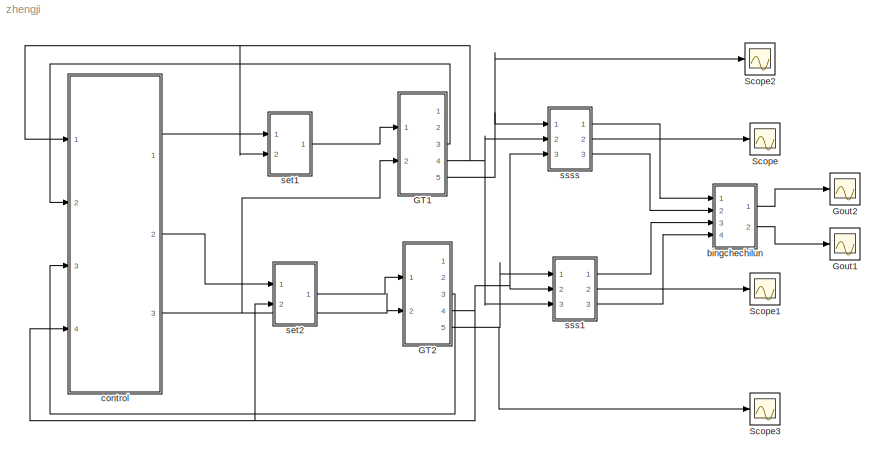
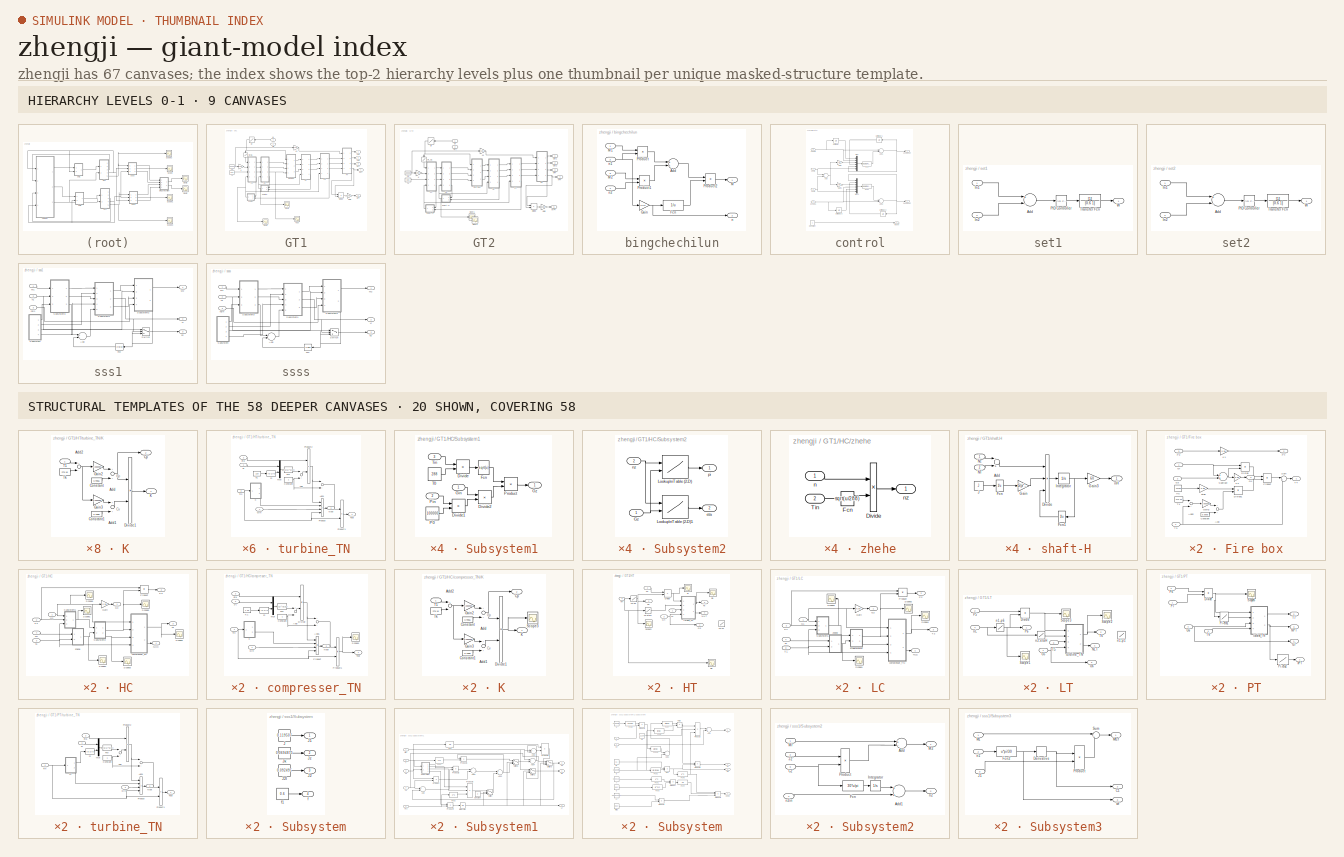
[diagram: thumbnail index - top-2 hierarchy levels (9 canvases) + 20 structural-template representatives of the remaining 58 canvases]
MODEL zhengji
KIND model
BLOCK [SubSystem] GT1
  Ports = [2, 5]
  RequestExecContextInheritance = off
  SID = 1
BLOCK [Product] GT1/Divide
  InputSameDT = off
  Inputs = */
  OutDataTypeStr = Inherit: Inherit via internal rule
  Ports = [2, 1]
  RndMeth = Floor
  SID = 4
  SaturateOnIntegerOverflow = off
BLOCK [SubSystem] GT1/Fire box
  Ports = [4, 3]
  RequestExecContextInheritance = off
  SID = 5
BLOCK [Sum] GT1/Fire box/Add
  InputSameDT = off
  OutDataTypeStr = Inherit: Inherit via internal rule
  Ports = [2, 1]
  SID = 10
  SaturateOnIntegerOverflow = off
BLOCK [Sum] GT1/Fire box/Add2
  InputSameDT = off
  Inputs = -+
  OutDataTypeStr = Inherit: Inherit via internal rule
  Ports = [2, 1]
  SID = 11
  SaturateOnIntegerOverflow = off
BLOCK [Constant] GT1/Fire box/Constant
  SID = 12
  Value = 0.9956
BLOCK [Product] GT1/Fire box/Divide
  InputSameDT = off
  Inputs = */
  OutDataTypeStr = Inherit: Inherit via internal rule
  Ports = [2, 1]
  RndMeth = Floor
  SID = 13
  SaturateOnIntegerOverflow = off
BLOCK [Product] GT1/Fire box/Divide1
  InputSameDT = off
  Inputs = */
  OutDataTypeStr = Inherit: Inherit via internal rule
  Ports = [2, 1]
  RndMeth = Floor
  SID = 14
  SaturateOnIntegerOverflow = off
BLOCK [Inport] GT1/Fire box/G3
  IconDisplay = Port number
  Port = 2
  SID = 7
BLOCK [Outport] GT1/Fire box/G4
  IconDisplay = Port number
  Port = 3
  SID = 26
BLOCK [Gain] GT1/Fire box/Gain2
  Gain = 0.000093
  OutDataTypeStr = Inherit: Inherit via internal rule
  ParamDataTypeStr = Inherit: Inherit via internal rule
  SID = 15
  SaturateOnIntegerOverflow = off
BLOCK [Inport] GT1/Fire box/Gf
  IconDisplay = Port number
  SID = 6
BLOCK [Constant] GT1/Fire box/Hu
  SID = 16
  Value = 42700
BLOCK [Gain] GT1/Fire box/K1
  Gain = 0.98
  OutDataTypeStr = Inherit: Inherit via internal rule
  ParamDataTypeStr = Inherit: Inherit via internal rule
  SID = 17
  SaturateOnIntegerOverflow = off
BLOCK [Gain] GT1/Fire box/K2
  Gain = 0.99
  OutDataTypeStr = Inherit: Inherit via internal rule
  ParamDataTypeStr = Inherit: Inherit via internal rule
  SID = 18
  SaturateOnIntegerOverflow = off
BLOCK [Inport] GT1/Fire box/P3
  IconDisplay = Port number
  Port = 3
  SID = 8
BLOCK [Outport] GT1/Fire box/P4
  IconDisplay = Port number
  Port = 2
  SID = 25
BLOCK [Product] GT1/Fire box/Product
  InputSameDT = off
  OutDataTypeStr = Inherit: Inherit via internal rule
  Ports = [2, 1]
  SID = 19
  SaturateOnIntegerOverflow = off
BLOCK [Sum] GT1/Fire box/Subtract
  InputSameDT = off
  OutDataTypeStr = Inherit: Inherit via internal rule
  Ports = [2, 1]
  SID = 20
  SaturateOnIntegerOverflow = off
BLOCK [Sum] GT1/Fire box/Sum
  IconShape = round
  InputSameDT = off
  Inputs = |++
  OutDataTypeStr = Inherit: Inherit via internal rule
  Ports = [2, 1]
  SID = 21
  SaturateOnIntegerOverflow = off
BLOCK [Inport] GT1/Fire box/T3
  IconDisplay = Port number
  Port = 4
  SID = 9
BLOCK [Outport] GT1/Fire box/T4
  IconDisplay = Port number
  SID = 24
BLOCK [Constant] GT1/Fire box/Tk
  SID = 22
  Value = 273.15
BLOCK [Gain] GT1/Fire box/etab
  Gain = 0.98
  OutDataTypeStr = Inherit: Inherit via internal rule
  ParamDataTypeStr = Inherit: Inherit via internal rule
  SID = 23
  SaturateOnIntegerOverflow = off
BLOCK [Gain] GT1/Gain
  Gain = 1000/0.7355
  OutDataTypeStr = Inherit: Inherit via internal rule
  ParamDataTypeStr = Inherit: Inherit via internal rule
  SID = 27
  SaturateOnIntegerOverflow = off
BLOCK [Lookup] GT1/Gf
  InputValues = [0,0.03,0.07,0.09,0.11,0.13,0.17,0.2,0.23,0.26,0.28,0.3,0.32,0.34,0.35,0.38,0.4,0.42,0.44,0.47,0.49,0.5,0.52,0.54,0.55,0.59,0.61,0.64,0.66,0.68,0.7,0.72,0.74,0.77,0.81,0.83,0.85,0.88,0.93,0.95,0.97,1]
  SID = 28
  SaturateOnIntegerOverflow = off
  Table = [0.172,0.236,0.331,0.331,0.366,0.411,0.488,0.536,0.582,0.605,0.644,0.682,0.698,0.728,0.727,0.783,0.783,0.813,0.857,0.886,0.935,0.949,0.95,0.975,0.999,1.022,1.069,1.149,1.153,1.184,1.206,1.233,1.256,1.271,1.325,1.383,1.383,1.439,1.481,1.504,1.52,1.574]
BLOCK [Lookup] GT1/Gf_G1
  InputValues = [0.172,0.236,0.331,0.366,0.411,0.488,0.536,0.582,0.605,0.644,0.682,0.698,0.727,0.728,0.783,0.813,0.857,0.886,0.935,0.949,0.95,0.975,0.999,1.022,1.069,1.149,1.153,1.184,1.206,1.233,1.256,1.271,1.325,1.383,1.439,1.481,1.504,1.52,1.574]
  SID = 29
  SaturateOnIntegerOverflow = off
  Table = [20.01, 25.93, 38.77,  43.65, 45.94, 51.85, 54.70, 56.85, 59.03, 61.91, 60.44, 61.58, 62.93, 63.04, 65.71,   67.00, 69.52, 70.63, 73.19, 73.46, 73.44, 73.83, 75.62, 76.39, 78.27, 81.17, 81.50, 82.44, 83.44, 84.31, 85.30, 86.17, 87.93, 89.72, 91.51, 93.65, 94.63, 94.92, 97.64]
BLOCK [Scope] GT1/Gout1
  DataFormat = StructureWithTime
  Floating = off
  NumInputPorts = 1
  Ports = [1]
  SID = 30
  SampleTime = 0
  ShowLegends = off
  TimeRange = 10
  ZoomMode = yonly
BLOCK [Scope] GT1/Gout2
  DataFormat = StructureWithTime
  Floating = off
  NumInputPorts = 1
  Ports = [1]
  SID = 31
  SampleTime = 0
  SaveName = ScopeData3
  ShowLegends = off
  TimeRange = 10
  ZoomMode = yonly
BLOCK [SubSystem] GT1/HC
  Ports = [4, 4]
  RequestExecContextInheritance = off
  SID = 32
BLOCK [Inport] GT1/HC/G2
  IconDisplay = Port number
  SID = 33
BLOCK [Outport] GT1/HC/G3
  IconDisplay = Port number
  SID = 104
BLOCK [Gain] GT1/HC/Gain
  Gain = 0.99
  OutDataTypeStr = Inherit: Inherit via internal rule
  ParamDataTypeStr = Inherit: Inherit via internal rule
  SID = 37
  SaturateOnIntegerOverflow = off
BLOCK [Outport] GT1/HC/NHC
  IconDisplay = Port number
  Port = 4
  SID = 107
BLOCK [Inport] GT1/HC/P2
  IconDisplay = Port number
  Port = 2
  SID = 34
BLOCK [Outport] GT1/HC/P3
  IconDisplay = Port number
  Port = 2
  SID = 105
BLOCK [Product] GT1/HC/Product
  InputSameDT = off
  OutDataTypeStr = Inherit: Inherit via internal rule
  Ports = [2, 1]
  SID = 38
  SaturateOnIntegerOverflow = off
BLOCK [Scope] GT1/HC/Scope1
  DataFormat = StructureWithTime
  Floating = off
  NumInputPorts = 1
  Ports = [1]
  SID = 39
  SampleTime = 0
  SaveName = ScopeData16
  ShowLegends = off
  YMax = 3127.38
  YMin = 2829.54
BLOCK [Scope] GT1/HC/Scope2
  DataFormat = StructureWithTime
  Floating = off
  NumInputPorts = 1
  Ports = [1]
  SID = 40
  SampleTime = 0
  SaveName = ScopeData29
  ShowLegends = off
  YMax = 3127.38
  YMin = 2829.54
BLOCK [Scope] GT1/HC/Scope3
  DataFormat = StructureWithTime
  Floating = off
  NumInputPorts = 1
  Ports = [1]
  SID = 41
  SampleTime = 0
  SaveName = ScopeData24
  ShowLegends = off
  YMax = 3127.38
  YMin = 2829.54
BLOCK [Scope] GT1/HC/Scope4
  DataFormat = StructureWithTime
  Floating = off
  NumInputPorts = 1
  Ports = [1]
  SID = 42
  SampleTime = 0
  SaveName = ScopeData31
  ShowLegends = off
  YMax = 3127.38
  YMin = 2829.54
BLOCK [Scope] GT1/HC/Scope5
  DataFormat = StructureWithTime
  Floating = off
  NumInputPorts = 1
  Ports = [1]
  SID = 43
  SampleTime = 0
  SaveName = ScopeData10
  ShowLegends = off
  YMax = 3127.38
  YMin = 2829.54
BLOCK [Scope] GT1/HC/Scope6
  DataFormat = StructureWithTime
  Floating = off
  NumInputPorts = 1
  Ports = [1]
  SID = 44
  SampleTime = 0
  SaveName = ScopeData15
  ShowLegends = off
  YMax = 3127.38
  YMin = 2829.54
BLOCK [SubSystem] GT1/HC/Subsystem1
  Ports = [3, 1]
  RequestExecContextInheritance = off
  SID = 45
BLOCK [Product] GT1/HC/Subsystem1/Divide
  InputSameDT = off
  Inputs = */
  OutDataTypeStr = Inherit: Inherit via internal rule
  Ports = [2, 1]
  RndMeth = Floor
  SID = 49
  SaturateOnIntegerOverflow = off
BLOCK [Product] GT1/HC/Subsystem1/Divide1
  InputSameDT = off
  Inputs = */
  OutDataTypeStr = Inherit: Inherit via internal rule
  Ports = [2, 1]
  RndMeth = Floor
  SID = 50
  SaturateOnIntegerOverflow = off
BLOCK [Product] GT1/HC/Subsystem1/Divide2
  InputSameDT = off
  Inputs = */
  OutDataTypeStr = Inherit: Inherit via internal rule
  Ports = [2, 1]
  RndMeth = Floor
  SID = 51
  SaturateOnIntegerOverflow = off
BLOCK [Fcn] GT1/HC/Subsystem1/Fcn
  Expr = sqrt(u)
  SID = 52
BLOCK [Inport] GT1/HC/Subsystem1/Gin
  IconDisplay = Port number
  SID = 46
BLOCK [Outport] GT1/HC/Subsystem1/Gz
  IconDisplay = Port number
  SID = 56
BLOCK [Constant] GT1/HC/Subsystem1/P0
  SID = 53
  Value = 100000
BLOCK [Inport] GT1/HC/Subsystem1/Pin
  IconDisplay = Port number
  Port = 2
  SID = 47
BLOCK [Product] GT1/HC/Subsystem1/Product
  InputSameDT = off
  OutDataTypeStr = Inherit: Inherit via internal rule
  Ports = [2, 1]
  SID = 54
  SaturateOnIntegerOverflow = off
BLOCK [Constant] GT1/HC/Subsystem1/T0
  SID = 55
  Value = 288
BLOCK [Inport] GT1/HC/Subsystem1/Tin
  IconDisplay = Port number
  Port = 3
  SID = 48
BLOCK [SubSystem] GT1/HC/Subsystem2
  Ports = [2, 2]
  RequestExecContextInheritance = off
  SID = 57
BLOCK [Inport] GT1/HC/Subsystem2/Gz
  IconDisplay = Port number
  SID = 58
BLOCK [Lookup2D] GT1/HC/Subsystem2/Lookup\nTable (2-D)
  ColumnIndex = [12:0.2:29]
  InputSameDT = off
  RowIndex = [6000 6300 6500 6800 7000 7300 7500 7800]
  SID = 60
  SaturateOnIntegerOverflow = off
  Table = [2.4803 2.5510 2.6217 2.6924 2.7630 2.8337 2.9044 2.9751 3.0172 2.9863 2.9541 2.9206 2.8860 2.8500 2.8129 2.7745 2.7349 2.6940 2.6519 2.6085 2.5640 2.5181 2.4711 2.4906 2.5237 2.5573 2.5913 2.6257 2.6605 2.6958 2.7314 2.7675 2.8040 2.8409 2.8783 2.9161 2.9543 2.9929 3.0319 3.0714 3.1112 3.1515 3.1923 3.2334 3.2750 3.3169 3.3593 3.4022 3.4454 3.4891 3.5332 3.5777 3.6226 3.6679 3.7137 3.7599 3.8065 ...<+4441ch>
BLOCK [Lookup2D] GT1/HC/Subsystem2/Lookup\nTable (2-D)1
  ColumnIndex = [12:0.2:29]
  InputSameDT = off
  RowIndex = [6000 6300 6500 6800 7000 7300 7500 7800]
  SID = 61
  SaturateOnIntegerOverflow = off
  Table = [0.8450 0.8455 0.8460 0.8465 0.8470 0.8480 0.8490 0.8495 0.8500 0.8510 0.8520 0.8530 0.8540 0.8540 0.8540 0.8525 0.8510 0.8500 0.8490 0.8480 0.8470 0.8460 0.8450 0.8455 0.8460 0.8460 0.8460 0.8470 0.8480 0.8480 0.8480 0.8480 0.8480 0.8485 0.8490 0.8490 0.8490 0.8490 0.8490 0.8490 0.8490 0.8490 0.8490 0.8490 0.8490 0.8490 0.8490 0.8490 0.8490 0.8495 0.8500 0.8500 0.8500 0.8500 0.8500 0.8500 0.8500 ...<+4434ch>
BLOCK [Outport] GT1/HC/Subsystem2/eta
  IconDisplay = Port number
  Port = 2
  SID = 63
BLOCK [Inport] GT1/HC/Subsystem2/nz
  IconDisplay = Port number
  Port = 2
  SID = 59
BLOCK [Outport] GT1/HC/Subsystem2/pi
  IconDisplay = Port number
  SID = 62
BLOCK [Inport] GT1/HC/T2
  IconDisplay = Port number
  Port = 3
  SID = 35
BLOCK [Outport] GT1/HC/T3
  IconDisplay = Port number
  Port = 3
  SID = 106
BLOCK [SubSystem] GT1/HC/compresser_TN
  Ports = [4, 2]
  RequestExecContextInheritance = off
  SID = 64
BLOCK [Sum] GT1/HC/compresser_TN/Add
  InputSameDT = off
  Inputs = +-
  OutDataTypeStr = Inherit: Inherit via internal rule
  Ports = [2, 1]
  SID = 69
  SaturateOnIntegerOverflow = off
BLOCK [Sum] GT1/HC/compresser_TN/Add1
  InputSameDT = off
  OutDataTypeStr = Inherit: Inherit via internal rule
  Ports = [2, 1]
  SID = 70
  SaturateOnIntegerOverflow = off
BLOCK [Constant] GT1/HC/compresser_TN/Constant
  SID = 71
BLOCK [Product] GT1/HC/compresser_TN/Divide
  InputSameDT = off
  Inputs = /*
  OutDataTypeStr = Inherit: Inherit via internal rule
  Ports = [2, 1]
  RndMeth = Floor
  SID = 72
  SaturateOnIntegerOverflow = off
BLOCK [Fcn] GT1/HC/compresser_TN/Fcn
  Expr = u[1]^(u[2])
  SID = 73
BLOCK [Inport] GT1/HC/compresser_TN/Gin
  IconDisplay = Port number
  SID = 65
BLOCK [SubSystem] GT1/HC/compresser_TN/K
  Ports = [1, 2]
  RequestExecContextInheritance = off
  SID = 74
BLOCK [Sum] GT1/HC/compresser_TN/K/Add
  InputSameDT = off
  OutDataTypeStr = Inherit: Inherit via internal rule
  Ports = [2, 1]
  SID = 76
  SaturateOnIntegerOverflow = off
BLOCK [Sum] GT1/HC/compresser_TN/K/Add1
  InputSameDT = off
  OutDataTypeStr = Inherit: Inherit via internal rule
  Ports = [2, 1]
  SID = 77
  SaturateOnIntegerOverflow = off
BLOCK [Sum] GT1/HC/compresser_TN/K/Add2
  InputSameDT = off
  Inputs = +-
  OutDataTypeStr = Inherit: Inherit via internal rule
  Ports = [2, 1]
  SID = 78
  SaturateOnIntegerOverflow = off
BLOCK [Constant] GT1/HC/compresser_TN/K/Constant
  SID = 79
  Value = 0.9956
BLOCK [Constant] GT1/HC/compresser_TN/K/Constant1
  SID = 80
  Value = 0.7088
BLOCK [Outport] GT1/HC/compresser_TN/K/Cp
  IconDisplay = Port number
  Port = 2
  SID = 87
BLOCK [Product] GT1/HC/compresser_TN/K/Divide1
  InputSameDT = off
  Inputs = */
  OutDataTypeStr = Inherit: Inherit via internal rule
  Ports = [2, 1]
  RndMeth = Floor
  SID = 81
  SaturateOnIntegerOverflow = off
BLOCK [Gain] GT1/HC/compresser_TN/K/Gain2
  Gain = 0.000093
  OutDataTypeStr = Inherit: Inherit via internal rule
  ParamDataTypeStr = Inherit: Inherit via internal rule
  SID = 82
  SaturateOnIntegerOverflow = off
BLOCK [Gain] GT1/HC/compresser_TN/K/Gain3
  Gain = 0.000093
  OutDataTypeStr = Inherit: Inherit via internal rule
  ParamDataTypeStr = Inherit: Inherit via internal rule
  SID = 83
  SaturateOnIntegerOverflow = off
BLOCK [Outport] GT1/HC/compresser_TN/K/K
  IconDisplay = Port number
  SID = 86
BLOCK [Scope] GT1/HC/compresser_TN/K/Scope3
  DataFormat = StructureWithTime
  Floating = off
  NumInputPorts = 1
  Ports = [1]
  SID = 84
  SampleTime = 0
  SaveName = ScopeData23
  ShowLegends = off
  YMax = 3127.38
  YMin = 2829.54
BLOCK [Inport] GT1/HC/compresser_TN/K/T1
  IconDisplay = Port number
  SID = 75
BLOCK [Constant] GT1/HC/compresser_TN/K/Tk
  SID = 85
  Value = 273.15
BLOCK [Constant] GT1/HC/compresser_TN/K1
  SID = 90
  Value = 1.35
BLOCK [Mux] GT1/HC/compresser_TN/Mux
  DisplayOption = bar
  Inputs = 2
  Ports = [2, 1]
  SID = 91
BLOCK [Outport] GT1/HC/compresser_TN/Nout
  IconDisplay = Port number
  Port = 2
  SID = 97
BLOCK [Inport] GT1/HC/compresser_TN/Pi
  IconDisplay = Port number
  Port = 2
  SID = 66
BLOCK [Product] GT1/HC/compresser_TN/Product
  InputSameDT = off
  Inputs = 4
  OutDataTypeStr = Inherit: Inherit via internal rule
  Ports = [4, 1]
  SID = 92
  SaturateOnIntegerOverflow = off
BLOCK [Product] GT1/HC/compresser_TN/Product1
  InputSameDT = off
  OutDataTypeStr = Inherit: Inherit via internal rule
  Ports = [2, 1]
  SID = 93
  SaturateOnIntegerOverflow = off
BLOCK [Scope] GT1/HC/compresser_TN/Scope3
  DataFormat = StructureWithTime
  Floating = off
  NumInputPorts = 1
  Ports = [1]
  SID = 94
  SampleTime = 0
  SaveName = ScopeData18
  ShowLegends = off
  YMax = 3127.38
  YMin = 2829.54
BLOCK [Inport] GT1/HC/compresser_TN/Tin
  IconDisplay = Port number
  Port = 4
  SID = 68
BLOCK [Outport] GT1/HC/compresser_TN/Tout
  IconDisplay = Port number
  SID = 96
BLOCK [Inport] GT1/HC/compresser_TN/eta
  IconDisplay = Port number
  Port = 3
  SID = 67
BLOCK [Fcn] GT1/HC/compresser_TN/m
  Expr = (u-1)/u
  SID = 95
BLOCK [Inport] GT1/HC/nH
  IconDisplay = Port number
  Port = 4
  SID = 36
BLOCK [SubSystem] GT1/HC/zhehe
  Ports = [2, 1]
  RequestExecContextInheritance = off
  SID = 98
BLOCK [Product] GT1/HC/zhehe/Divide
  InputSameDT = off
  Inputs = */
  OutDataTypeStr = Inherit: Inherit via internal rule
  Ports = [2, 1]
  RndMeth = Floor
  SID = 101
  SaturateOnIntegerOverflow = off
BLOCK [Fcn] GT1/HC/zhehe/Fcn
  Expr = sqrt(u/288)
  SID = 102
BLOCK [Inport] GT1/HC/zhehe/Tin
  IconDisplay = Port number
  Port = 2
  SID = 100
BLOCK [Inport] GT1/HC/zhehe/n
  IconDisplay = Port number
  SID = 99
BLOCK [Outport] GT1/HC/zhehe/nz
  IconDisplay = Port number
  SID = 103
BLOCK [SubSystem] GT1/HT
  Ports = [4, 4]
  RequestExecContextInheritance = off
  SID = 108
BLOCK [Product] GT1/HT/Divide
  InputSameDT = off
  Inputs = */
  OutDataTypeStr = Inherit: Inherit via internal rule
  Ports = [2, 1]
  RndMeth = Floor
  SID = 113
  SaturateOnIntegerOverflow = off
BLOCK [Inport] GT1/HT/G4
  IconDisplay = Port number
  Port = 3
  SID = 111
BLOCK [Outport] GT1/HT/G5
  IconDisplay = Port number
  SID = 153
BLOCK [Outport] GT1/HT/NHT
  IconDisplay = Port number
  Port = 4
  SID = 156
BLOCK [Inport] GT1/HT/P4
  IconDisplay = Port number
  Port = 2
  SID = 110
BLOCK [Outport] GT1/HT/P5
  IconDisplay = Port number
  Port = 2
  SID = 154
BLOCK [Scope] GT1/HT/Scope3
  DataFormat = StructureWithTime
  Floating = off
  NumInputPorts = 1
  Ports = [1]
  SID = 114
  SampleTime = 0
  SaveName = ScopeData34
  ShowLegends = off
  TimeRange = 100
  YMax = 25000
  YMin = 5000
  ZoomMode = yonly
BLOCK [Inport] GT1/HT/T4
  IconDisplay = Port number
  SID = 109
BLOCK [Outport] GT1/HT/T5
  IconDisplay = Port number
  Port = 3
  SID = 155
BLOCK [Lookup] GT1/HT/n2-etaH
  InputValues = [6000 6300 6500 6800 7000 7150 7300 7500 7800]
  SID = 115
  SaturateOnIntegerOverflow = off
  Table = [0.81 0.83 0.85 0.87 0.88 0.87 0.86 0.855 0.85]
BLOCK [Lookup] GT1/HT/n2-p1
  InputValues = [6000 6503 6995 7498 8002 8505 8997 9500]
  SID = 116
  SaturateOnIntegerOverflow = off
  Table = [139400 150700 186000 246700 332500 443400 575800 736100]
BLOCK [Lookup] GT1/HT/n2-p5
  InputValues = [5832,7212,7282,7644,7752,7853,8033,8092 8211 8392 8430 8452 8670 8767 8960 8999 9073]
  SID = 117
  SaturateOnIntegerOverflow = off
  Table = [154000,269000,296000,361000,391000,419000,476000,494000 534000 596000 609000 616000 684000 719000 806000 814000 831000]
BLOCK [Inport] GT1/HT/nH
  IconDisplay = Port number
  Port = 4
  SID = 112
BLOCK [Scope] GT1/HT/pi
  DataFormat = StructureWithTime
  Floating = off
  NumInputPorts = 1
  Ports = [1]
  SID = 118
  SampleTime = 0
  SaveName = ScopeData17
  ShowLegends = off
  TimeRange = 100
  YMax = 3127.38
  YMin = 2829.54
BLOCK [Scope] GT1/HT/pi1
  DataFormat = StructureWithTime
  Floating = off
  NumInputPorts = 1
  Ports = [1]
  SID = 119
  SampleTime = 0
  SaveName = ScopeData7
  ShowLegends = off
  TimeRange = 100
  YMax = 3127.38
  YMin = 2829.54
BLOCK [Scope] GT1/HT/pi2
  DataFormat = StructureWithTime
  Floating = off
  NumInputPorts = 1
  Ports = [1]
  SID = 120
  SampleTime = 0
  SaveName = ScopeData35
  ShowLegends = off
  TimeRange = 100
  YMax = 3127.38
  YMin = 2829.54
BLOCK [SubSystem] GT1/HT/turbine_TN
  Ports = [4, 2]
  RequestExecContextInheritance = off
  SID = 121
BLOCK [Sum] GT1/HT/turbine_TN/Add
  InputSameDT = off
  Inputs = -+
  OutDataTypeStr = Inherit: Inherit via internal rule
  Ports = [2, 1]
  SID = 126
  SaturateOnIntegerOverflow = off
BLOCK [Sum] GT1/HT/turbine_TN/Add1
  InputSameDT = off
  Inputs = -+
  OutDataTypeStr = Inherit: Inherit via internal rule
  Ports = [2, 1]
  SID = 127
  SaturateOnIntegerOverflow = off
BLOCK [Constant] GT1/HT/turbine_TN/Constant
  SID = 128
BLOCK [Fcn] GT1/HT/turbine_TN/Fcn
  Expr = 1/(u[1]^u[2])
  SID = 129
BLOCK [Inport] GT1/HT/turbine_TN/Gin
  IconDisplay = Port number
  Port = 4
  SID = 125
BLOCK [SubSystem] GT1/HT/turbine_TN/K
  Ports = [1, 2]
  RequestExecContextInheritance = off
  SID = 130
BLOCK [Sum] GT1/HT/turbine_TN/K/Add
  InputSameDT = off
  OutDataTypeStr = Inherit: Inherit via internal rule
  Ports = [2, 1]
  SID = 132
  SaturateOnIntegerOverflow = off
BLOCK [Sum] GT1/HT/turbine_TN/K/Add1
  InputSameDT = off
  OutDataTypeStr = Inherit: Inherit via internal rule
  Ports = [2, 1]
  SID = 133
  SaturateOnIntegerOverflow = off
BLOCK [Sum] GT1/HT/turbine_TN/K/Add2
  InputSameDT = off
  Inputs = +-
  OutDataTypeStr = Inherit: Inherit via internal rule
  Ports = [2, 1]
  SID = 134
  SaturateOnIntegerOverflow = off
BLOCK [Constant] GT1/HT/turbine_TN/K/Constant
  SID = 135
  Value = 0.9956
BLOCK [Constant] GT1/HT/turbine_TN/K/Constant1
  SID = 136
  Value = 0.7088
BLOCK [Outport] GT1/HT/turbine_TN/K/Cp
  IconDisplay = Port number
  Port = 2
  SID = 142
BLOCK [Product] GT1/HT/turbine_TN/K/Divide1
  InputSameDT = off
  Inputs = */
  OutDataTypeStr = Inherit: Inherit via internal rule
  Ports = [2, 1]
  RndMeth = Floor
  SID = 137
  SaturateOnIntegerOverflow = off
BLOCK [Gain] GT1/HT/turbine_TN/K/Gain2
  Gain = 0.000093
  OutDataTypeStr = Inherit: Inherit via internal rule
  ParamDataTypeStr = Inherit: Inherit via internal rule
  SID = 138
  SaturateOnIntegerOverflow = off
BLOCK [Gain] GT1/HT/turbine_TN/K/Gain3
  Gain = 0.000093
  OutDataTypeStr = Inherit: Inherit via internal rule
  ParamDataTypeStr = Inherit: Inherit via internal rule
  SID = 139
  SaturateOnIntegerOverflow = off
BLOCK [Outport] GT1/HT/turbine_TN/K/K
  IconDisplay = Port number
  SID = 141
BLOCK [Inport] GT1/HT/turbine_TN/K/T1
  IconDisplay = Port number
  SID = 131
BLOCK [Constant] GT1/HT/turbine_TN/K/Tk
  SID = 140
  Value = 273.15
BLOCK [Constant] GT1/HT/turbine_TN/K1
  SID = 145
  Value = 1.33
BLOCK [Mux] GT1/HT/turbine_TN/Mux
  DisplayOption = bar
  Inputs = 2
  Ports = [2, 1]
  SID = 146
BLOCK [Outport] GT1/HT/turbine_TN/Nout
  IconDisplay = Port number
  Port = 2
  SID = 152
BLOCK [Inport] GT1/HT/turbine_TN/Pi
  IconDisplay = Port number
  SID = 122
BLOCK [Product] GT1/HT/turbine_TN/Product
  InputSameDT = off
  Inputs = 4
  OutDataTypeStr = Inherit: Inherit via internal rule
  Ports = [4, 1]
  SID = 147
  SaturateOnIntegerOverflow = off
BLOCK [Product] GT1/HT/turbine_TN/Product1
  InputSameDT = off
  OutDataTypeStr = Inherit: Inherit via internal rule
  Ports = [2, 1]
  SID = 148
  SaturateOnIntegerOverflow = off
BLOCK [Product] GT1/HT/turbine_TN/Product2
  InputSameDT = off
  OutDataTypeStr = Inherit: Inherit via internal rule
  Ports = [2, 1]
  SID = 149
  SaturateOnIntegerOverflow = off
BLOCK [Inport] GT1/HT/turbine_TN/Tin
  IconDisplay = Port number
  Port = 3
  SID = 124
BLOCK [Outport] GT1/HT/turbine_TN/Tout
  IconDisplay = Port number
  SID = 151
BLOCK [Inport] GT1/HT/turbine_TN/eta
  IconDisplay = Port number
  Port = 2
  SID = 123
BLOCK [Fcn] GT1/HT/turbine_TN/m
  Expr = (u-1)/u
  SID = 150
BLOCK [Gain] GT1/K
  Gain = 0.98
  OutDataTypeStr = Inherit: Inherit via internal rule
  ParamDataTypeStr = Inherit: Inherit via internal rule
  SID = 157
  SaturateOnIntegerOverflow = off
BLOCK [Gain] GT1/K1
  Gain = 1.05
  OutDataTypeStr = Inherit: Inherit via internal rule
  ParamDataTypeStr = Inherit: Inherit via internal rule
  SID = 158
  SaturateOnIntegerOverflow = off
BLOCK [SubSystem] GT1/LC
  Ports = [4, 4]
  RequestExecContextInheritance = off
  SID = 159
BLOCK [Inport] GT1/LC/G1
  IconDisplay = Port number
  SID = 160
BLOCK [Outport] GT1/LC/G2
  IconDisplay = Port number
  SID = 227
BLOCK [Gain] GT1/LC/Gain
  Gain = 0.99
  OutDataTypeStr = Inherit: Inherit via internal rule
  ParamDataTypeStr = Inherit: Inherit via internal rule
  SID = 164
  SaturateOnIntegerOverflow = off
BLOCK [Outport] GT1/LC/NLC
  IconDisplay = Port number
  Port = 4
  SID = 230
BLOCK [Inport] GT1/LC/P1
  IconDisplay = Port number
  Port = 2
  SID = 161
BLOCK [Outport] GT1/LC/P2
  IconDisplay = Port number
  Port = 2
  SID = 228
BLOCK [Product] GT1/LC/Product
  InputSameDT = off
  OutDataTypeStr = Inherit: Inherit via internal rule
  Ports = [2, 1]
  SID = 165
  SaturateOnIntegerOverflow = off
BLOCK [Scope] GT1/LC/Scope1
  DataFormat = StructureWithTime
  Floating = off
  NumInputPorts = 1
  Ports = [1]
  SID = 166
  SampleTime = 0
  SaveName = ScopeData14
  ShowLegends = off
  YMax = 3127.38
  YMin = 2829.54
BLOCK [Scope] GT1/LC/Scope2
  DataFormat = StructureWithTime
  Floating = off
  NumInputPorts = 1
  Ports = [1]
  SID = 167
  SampleTime = 0
  SaveName = ScopeData9
  ShowLegends = off
  YMax = 3127.38
  YMin = 2829.54
BLOCK [Scope] GT1/LC/Scope3
  DataFormat = StructureWithTime
  Floating = off
  NumInputPorts = 1
  Ports = [1]
  SID = 168
  SampleTime = 0
  SaveName = ScopeData30
  ShowLegends = off
  YMax = 3127.38
  YMin = 2829.54
BLOCK [Scope] GT1/LC/Scope4
  DataFormat = StructureWithTime
  Floating = off
  NumInputPorts = 1
  Ports = [1]
  SID = 169
  SampleTime = 0
  SaveName = ScopeData32
  ShowLegends = off
  TimeRange = 80
  YMax = 30000
  YMin = 5000
  ZoomMode = yonly
BLOCK [SubSystem] GT1/LC/Subsystem1
  Ports = [3, 1]
  RequestExecContextInheritance = off
  SID = 170
BLOCK [Product] GT1/LC/Subsystem1/Divide
  InputSameDT = off
  Inputs = */
  OutDataTypeStr = Inherit: Inherit via internal rule
  Ports = [2, 1]
  RndMeth = Floor
  SID = 174
  SaturateOnIntegerOverflow = off
BLOCK [Product] GT1/LC/Subsystem1/Divide1
  InputSameDT = off
  Inputs = */
  OutDataTypeStr = Inherit: Inherit via internal rule
  Ports = [2, 1]
  RndMeth = Floor
  SID = 175
  SaturateOnIntegerOverflow = off
BLOCK [Product] GT1/LC/Subsystem1/Divide2
  InputSameDT = off
  Inputs = */
  OutDataTypeStr = Inherit: Inherit via internal rule
  Ports = [2, 1]
  RndMeth = Floor
  SID = 176
  SaturateOnIntegerOverflow = off
BLOCK [Fcn] GT1/LC/Subsystem1/Fcn
  Expr = sqrt(u)
  SID = 177
BLOCK [Inport] GT1/LC/Subsystem1/Gin
  IconDisplay = Port number
  SID = 171
BLOCK [Outport] GT1/LC/Subsystem1/Gz
  IconDisplay = Port number
  SID = 181
BLOCK [Constant] GT1/LC/Subsystem1/P0
  SID = 178
  Value = 100000
BLOCK [Inport] GT1/LC/Subsystem1/Pin
  IconDisplay = Port number
  Port = 2
  SID = 172
BLOCK [Product] GT1/LC/Subsystem1/Product
  InputSameDT = off
  OutDataTypeStr = Inherit: Inherit via internal rule
  Ports = [2, 1]
  SID = 179
  SaturateOnIntegerOverflow = off
BLOCK [Constant] GT1/LC/Subsystem1/T0
  SID = 180
  Value = 288
BLOCK [Inport] GT1/LC/Subsystem1/Tin
  IconDisplay = Port number
  Port = 3
  SID = 173
BLOCK [SubSystem] GT1/LC/Subsystem3
  Ports = [2, 2]
  RequestExecContextInheritance = off
  SID = 182
BLOCK [Inport] GT1/LC/Subsystem3/Gz
  IconDisplay = Port number
  SID = 183
BLOCK [Lookup2D] GT1/LC/Subsystem3/Lookup\nTable (2-D)
  ColumnIndex = [20:0.5:100]
  InputSameDT = off
  RowIndex = [4300 5000 5500 6000 6500 7000 7500 8000]
  SID = 185
  SaturateOnIntegerOverflow = off
  Table = [1.1111 1.1471 1.1832 1.2192 1.2552 1.2913 1.3273 1.3633 1.3994 1.4354 1.4714 1.5074 1.5435 1.5795 1.6155 1.6516 1.6876 1.7236 1.8750 1.8749 1.8720 1.8623 1.8457 1.8223 1.7920 1.7549 1.7109 1.6601 1.6024 1.5378 1.4664 1.3881 1.2420 1.2701 1.2983 1.3265 1.3547 1.3828 1.4110 1.4392 1.4673 1.4955 1.5237 1.5519 1.5800 1.6082 1.6364 1.6645 1.6927 1.7209 1.7491 1.7772 1.8054 1.8336 1.8617 1.8899 1.9181 ...<+8634ch>
BLOCK [Lookup2D] GT1/LC/Subsystem3/Lookup\nTable (2-D)1
  ColumnIndex = [20:0.5:100]
  InputSameDT = off
  RowIndex = [4300 5000 5500 6000 6500 7000 7500 8000]
  SID = 186
  SaturateOnIntegerOverflow = off
  Table = [0.8303 0.8307 0.8310 0.8314 0.8317 0.8321 0.8324 0.8327 0.8331 0.8335 0.8338 0.8341 0.8345 0.8348 0.8351 0.8355 0.8358 0.8361 0.8371 0.8390 0.8403 0.8412 0.8415 0.8412 0.8405 0.8392 0.8373 0.8350 0.8321 0.8287 0.8247 0.8203 0.8200 0.8200 0.8200 0.8200 0.8200 0.8200 0.8200 0.8200 0.8200 0.8200 0.8200 0.8200 0.8200 0.8200 0.8200 0.8200 0.8200 0.8200 0.8200 0.8200 0.8200 0.8200 0.8200 0.8200 0.8200 ...<+8634ch>
BLOCK [Outport] GT1/LC/Subsystem3/eta
  IconDisplay = Port number
  Port = 2
  SID = 188
BLOCK [Inport] GT1/LC/Subsystem3/nz
  IconDisplay = Port number
  Port = 2
  SID = 184
BLOCK [Outport] GT1/LC/Subsystem3/pi
  IconDisplay = Port number
  SID = 187
BLOCK [Inport] GT1/LC/T1
  IconDisplay = Port number
  Port = 3
  SID = 162
BLOCK [Outport] GT1/LC/T2
  IconDisplay = Port number
  Port = 3
  SID = 229
BLOCK [SubSystem] GT1/LC/compresser_TN
  Ports = [4, 2]
  RequestExecContextInheritance = off
  SID = 189
BLOCK [Sum] GT1/LC/compresser_TN/Add
  InputSameDT = off
  Inputs = +-
  OutDataTypeStr = Inherit: Inherit via internal rule
  Ports = [2, 1]
  SID = 194
  SaturateOnIntegerOverflow = off
BLOCK [Sum] GT1/LC/compresser_TN/Add1
  InputSameDT = off
  OutDataTypeStr = Inherit: Inherit via internal rule
  Ports = [2, 1]
  SID = 195
  SaturateOnIntegerOverflow = off
BLOCK [Constant] GT1/LC/compresser_TN/Constant
  SID = 196
BLOCK [Product] GT1/LC/compresser_TN/Divide
  InputSameDT = off
  Inputs = /*
  OutDataTypeStr = Inherit: Inherit via internal rule
  Ports = [2, 1]
  RndMeth = Floor
  SID = 197
  SaturateOnIntegerOverflow = off
BLOCK [Fcn] GT1/LC/compresser_TN/Fcn
  Expr = u[1]^(u[2])
  SID = 198
BLOCK [Inport] GT1/LC/compresser_TN/Gin
  IconDisplay = Port number
  SID = 190
BLOCK [SubSystem] GT1/LC/compresser_TN/K
  Ports = [1, 2]
  RequestExecContextInheritance = off
  SID = 199
BLOCK [Sum] GT1/LC/compresser_TN/K/Add
  InputSameDT = off
  OutDataTypeStr = Inherit: Inherit via internal rule
  Ports = [2, 1]
  SID = 201
  SaturateOnIntegerOverflow = off
BLOCK [Sum] GT1/LC/compresser_TN/K/Add1
  InputSameDT = off
  OutDataTypeStr = Inherit: Inherit via internal rule
  Ports = [2, 1]
  SID = 202
  SaturateOnIntegerOverflow = off
BLOCK [Sum] GT1/LC/compresser_TN/K/Add2
  InputSameDT = off
  Inputs = +-
  OutDataTypeStr = Inherit: Inherit via internal rule
  Ports = [2, 1]
  SID = 203
  SaturateOnIntegerOverflow = off
BLOCK [Constant] GT1/LC/compresser_TN/K/Constant
  SID = 204
  Value = 0.9956
BLOCK [Constant] GT1/LC/compresser_TN/K/Constant1
  SID = 205
  Value = 0.7088
BLOCK [Outport] GT1/LC/compresser_TN/K/Cp
  IconDisplay = Port number
  Port = 2
  SID = 211
BLOCK [Product] GT1/LC/compresser_TN/K/Divide1
  InputSameDT = off
  Inputs = */
  OutDataTypeStr = Inherit: Inherit via internal rule
  Ports = [2, 1]
  RndMeth = Floor
  SID = 206
  SaturateOnIntegerOverflow = off
BLOCK [Gain] GT1/LC/compresser_TN/K/Gain2
  Gain = 0.000093
  OutDataTypeStr = Inherit: Inherit via internal rule
  ParamDataTypeStr = Inherit: Inherit via internal rule
  SID = 207
  SaturateOnIntegerOverflow = off
BLOCK [Gain] GT1/LC/compresser_TN/K/Gain3
  Gain = 0.000093
  OutDataTypeStr = Inherit: Inherit via internal rule
  ParamDataTypeStr = Inherit: Inherit via internal rule
  SID = 208
  SaturateOnIntegerOverflow = off
BLOCK [Outport] GT1/LC/compresser_TN/K/K
  IconDisplay = Port number
  SID = 210
BLOCK [Inport] GT1/LC/compresser_TN/K/T1
  IconDisplay = Port number
  SID = 200
BLOCK [Constant] GT1/LC/compresser_TN/K/Tk
  SID = 209
  Value = 273.15
BLOCK [Constant] GT1/LC/compresser_TN/K1
  SID = 214
  Value = 1.4
BLOCK [Mux] GT1/LC/compresser_TN/Mux
  DisplayOption = bar
  Inputs = 2
  Ports = [2, 1]
  SID = 215
BLOCK [Outport] GT1/LC/compresser_TN/Nout
  IconDisplay = Port number
  Port = 2
  SID = 220
BLOCK [Inport] GT1/LC/compresser_TN/Pi
  IconDisplay = Port number
  Port = 2
  SID = 191
BLOCK [Product] GT1/LC/compresser_TN/Product
  InputSameDT = off
  Inputs = 4
  OutDataTypeStr = Inherit: Inherit via internal rule
  Ports = [4, 1]
  SID = 216
  SaturateOnIntegerOverflow = off
BLOCK [Product] GT1/LC/compresser_TN/Product1
  InputSameDT = off
  OutDataTypeStr = Inherit: Inherit via internal rule
  Ports = [2, 1]
  SID = 217
  SaturateOnIntegerOverflow = off
BLOCK [Inport] GT1/LC/compresser_TN/Tin
  IconDisplay = Port number
  Port = 4
  SID = 193
BLOCK [Outport] GT1/LC/compresser_TN/Tout
  IconDisplay = Port number
  SID = 219
BLOCK [Inport] GT1/LC/compresser_TN/eta
  IconDisplay = Port number
  Port = 3
  SID = 192
BLOCK [Fcn] GT1/LC/compresser_TN/m
  Expr = (u-1)/u
  SID = 218
BLOCK [Inport] GT1/LC/nL
  IconDisplay = Port number
  Port = 4
  SID = 163
BLOCK [SubSystem] GT1/LC/zhehe
  Ports = [2, 1]
  RequestExecContextInheritance = off
  SID = 221
BLOCK [Product] GT1/LC/zhehe/Divide
  InputSameDT = off
  Inputs = */
  OutDataTypeStr = Inherit: Inherit via internal rule
  Ports = [2, 1]
  RndMeth = Floor
  SID = 224
  SaturateOnIntegerOverflow = off
BLOCK [Fcn] GT1/LC/zhehe/Fcn
  Expr = sqrt(u/288)
  SID = 225
BLOCK [Inport] GT1/LC/zhehe/Tin
  IconDisplay = Port number
  Port = 2
  SID = 223
BLOCK [Inport] GT1/LC/zhehe/n
  IconDisplay = Port number
  SID = 222
BLOCK [Outport] GT1/LC/zhehe/nz
  IconDisplay = Port number
  SID = 226
BLOCK [SubSystem] GT1/LT
  Ports = [4, 4]
  RequestExecContextInheritance = off
  SID = 231
BLOCK [Product] GT1/LT/Divide
  InputSameDT = off
  Inputs = */
  OutDataTypeStr = Inherit: Inherit via internal rule
  Ports = [2, 1]
  RndMeth = Floor
  SID = 236
  SaturateOnIntegerOverflow = off
BLOCK [Inport] GT1/LT/G5
  IconDisplay = Port number
  SID = 232
BLOCK [Outport] GT1/LT/G6
  IconDisplay = Port number
  Port = 3
  SID = 277
BLOCK [Outport] GT1/LT/NLT
  IconDisplay = Port number
  Port = 4
  SID = 278
BLOCK [Inport] GT1/LT/P5
  IconDisplay = Port number
  Port = 2
  SID = 233
BLOCK [Outport] GT1/LT/P6
  IconDisplay = Port number
  SID = 275
BLOCK [Scope] GT1/LT/Scope1
  DataFormat = StructureWithTime
  Floating = off
  NumInputPorts = 1
  Ports = [1]
  SID = 237
  SampleTime = 0
  SaveName = ScopeData28
  ShowLegends = off
  TimeRange = 100
  YMax = 25000
  YMin = 5000
  ZoomMode = yonly
BLOCK [Scope] GT1/LT/Scope2
  DataFormat = StructureWithTime
  Floating = off
  NumInputPorts = 1
  Ports = [1]
  SID = 238
  SampleTime = 0
  SaveName = ScopeData4
  ShowLegends = off
  TimeRange = 100
  YMax = 25000
  YMin = 5000
  ZoomMode = yonly
BLOCK [Scope] GT1/LT/Scope3
  DataFormat = StructureWithTime
  Floating = off
  NumInputPorts = 1
  Ports = [1]
  SID = 239
  SampleTime = 0
  SaveName = ScopeData20
  ShowLegends = off
  TimeRange = 100
  YMax = 25000
  YMin = 5000
  ZoomMode = yonly
BLOCK [Inport] GT1/LT/T5
  IconDisplay = Port number
  Port = 3
  SID = 234
BLOCK [Outport] GT1/LT/T6
  IconDisplay = Port number
  Port = 2
  SID = 276
BLOCK [Lookup] GT1/LT/n1-p1
  InputValues = [2849,4651,4850,5410,5586,5742,6024,6092,6102,6211,6385,6425 6435 6609 6698  6732 7015  7080 7185 ]
  SID = 240
  SaturateOnIntegerOverflow = off
  Table = [101000,131000,141000,161000,171000,181000,201000,201000,211000,221000,241000,251000 251000 281000 291000  301000 321000  331000 341000]
BLOCK [Lookup] GT1/LT/n1-p6
  InputValues = [2849,4651,4850,5410,5586,5742,6024,6092,6102,6211,6385,6425,6435,6609,6698,6732,7015,7080,7185]
  SID = 241
  SaturateOnIntegerOverflow = off
  Table = [113000,150000,157000,180000,190000,201000,221000,229000,229500,242000,267000,272000,277000,306000,321000,322000,354000,360000,371000]
BLOCK [Lookup] GT1/LT/n2-etaH
  InputValues = [4300 5000 5500 6000 6500 7000 7500 8000 9000 9500]
  SID = 242
  SaturateOnIntegerOverflow = off
  Table = [0.82 0.83 0.835 0.84 0.85 0.86 0.875 0.87 0.865 0.86]
BLOCK [Inport] GT1/LT/nL
  IconDisplay = Port number
  Port = 4
  SID = 235
BLOCK [SubSystem] GT1/LT/turbine_TN
  Ports = [4, 2]
  RequestExecContextInheritance = off
  SID = 243
BLOCK [Sum] GT1/LT/turbine_TN/Add
  InputSameDT = off
  Inputs = -+
  OutDataTypeStr = Inherit: Inherit via internal rule
  Ports = [2, 1]
  SID = 248
  SaturateOnIntegerOverflow = off
BLOCK [Sum] GT1/LT/turbine_TN/Add1
  InputSameDT = off
  Inputs = -+
  OutDataTypeStr = Inherit: Inherit via internal rule
  Ports = [2, 1]
  SID = 249
  SaturateOnIntegerOverflow = off
BLOCK [Constant] GT1/LT/turbine_TN/Constant
  SID = 250
BLOCK [Fcn] GT1/LT/turbine_TN/Fcn
  Expr = 1/(u[1]^u[2])
  SID = 251
BLOCK [Inport] GT1/LT/turbine_TN/Gin
  IconDisplay = Port number
  Port = 4
  SID = 247
BLOCK [SubSystem] GT1/LT/turbine_TN/K
  Ports = [1, 2]
  RequestExecContextInheritance = off
  SID = 252
BLOCK [Sum] GT1/LT/turbine_TN/K/Add
  InputSameDT = off
  OutDataTypeStr = Inherit: Inherit via internal rule
  Ports = [2, 1]
  SID = 254
  SaturateOnIntegerOverflow = off
BLOCK [Sum] GT1/LT/turbine_TN/K/Add1
  InputSameDT = off
  OutDataTypeStr = Inherit: Inherit via internal rule
  Ports = [2, 1]
  SID = 255
  SaturateOnIntegerOverflow = off
BLOCK [Sum] GT1/LT/turbine_TN/K/Add2
  InputSameDT = off
  Inputs = +-
  OutDataTypeStr = Inherit: Inherit via internal rule
  Ports = [2, 1]
  SID = 256
  SaturateOnIntegerOverflow = off
BLOCK [Constant] GT1/LT/turbine_TN/K/Constant
  SID = 257
  Value = 0.9956
BLOCK [Constant] GT1/LT/turbine_TN/K/Constant1
  SID = 258
  Value = 0.7088
BLOCK [Outport] GT1/LT/turbine_TN/K/Cp
  IconDisplay = Port number
  Port = 2
  SID = 264
BLOCK [Product] GT1/LT/turbine_TN/K/Divide1
  InputSameDT = off
  Inputs = */
  OutDataTypeStr = Inherit: Inherit via internal rule
  Ports = [2, 1]
  RndMeth = Floor
  SID = 259
  SaturateOnIntegerOverflow = off
BLOCK [Gain] GT1/LT/turbine_TN/K/Gain2
  Gain = 0.000093
  OutDataTypeStr = Inherit: Inherit via internal rule
  ParamDataTypeStr = Inherit: Inherit via internal rule
  SID = 260
  SaturateOnIntegerOverflow = off
BLOCK [Gain] GT1/LT/turbine_TN/K/Gain3
  Gain = 0.000093
  OutDataTypeStr = Inherit: Inherit via internal rule
  ParamDataTypeStr = Inherit: Inherit via internal rule
  SID = 261
  SaturateOnIntegerOverflow = off
BLOCK [Outport] GT1/LT/turbine_TN/K/K
  IconDisplay = Port number
  SID = 263
BLOCK [Inport] GT1/LT/turbine_TN/K/T1
  IconDisplay = Port number
  SID = 253
BLOCK [Constant] GT1/LT/turbine_TN/K/Tk
  SID = 262
  Value = 273.15
BLOCK [Constant] GT1/LT/turbine_TN/K1
  SID = 267
  Value = 1.33
BLOCK [Mux] GT1/LT/turbine_TN/Mux
  DisplayOption = bar
  Inputs = 2
  Ports = [2, 1]
  SID = 268
BLOCK [Outport] GT1/LT/turbine_TN/Nout
  IconDisplay = Port number
  Port = 2
  SID = 274
BLOCK [Inport] GT1/LT/turbine_TN/Pi
  IconDisplay = Port number
  SID = 244
BLOCK [Product] GT1/LT/turbine_TN/Product
  InputSameDT = off
  Inputs = 4
  OutDataTypeStr = Inherit: Inherit via internal rule
  Ports = [4, 1]
  SID = 269
  SaturateOnIntegerOverflow = off
BLOCK [Product] GT1/LT/turbine_TN/Product1
  InputSameDT = off
  OutDataTypeStr = Inherit: Inherit via internal rule
  Ports = [2, 1]
  SID = 270
  SaturateOnIntegerOverflow = off
BLOCK [Product] GT1/LT/turbine_TN/Product2
  InputSameDT = off
  OutDataTypeStr = Inherit: Inherit via internal rule
  Ports = [2, 1]
  SID = 271
  SaturateOnIntegerOverflow = off
BLOCK [Inport] GT1/LT/turbine_TN/Tin
  IconDisplay = Port number
  Port = 3
  SID = 246
BLOCK [Outport] GT1/LT/turbine_TN/Tout
  IconDisplay = Port number
  SID = 273
BLOCK [Inport] GT1/LT/turbine_TN/eta
  IconDisplay = Port number
  Port = 2
  SID = 245
BLOCK [Fcn] GT1/LT/turbine_TN/m
  Expr = (u-1)/u
  SID = 272
BLOCK [Outport] GT1/MPT
  IconDisplay = Port number
  Port = 5
  SID = 355
BLOCK [Outport] GT1/NPT
  IconDisplay = Port number
  Port = 3
  SID = 353
BLOCK [Outport] GT1/Out1
  IconDisplay = Port number
  SID = 351
BLOCK [Outport] GT1/Out2
  IconDisplay = Port number
  Port = 2
  SID = 352
BLOCK [Constant] GT1/P0
  SID = 279
  Value = 100000
BLOCK [SubSystem] GT1/PT
  Ports = [4, 4]
  RequestExecContextInheritance = off
  SID = 280
BLOCK [Product] GT1/PT/Divide
  InputSameDT = off
  Inputs = */
  OutDataTypeStr = Inherit: Inherit via internal rule
  Ports = [2, 1]
  RndMeth = Floor
  SID = 285
  SaturateOnIntegerOverflow = off
BLOCK [Inport] GT1/PT/G6
  IconDisplay = Port number
  Port = 4
  SID = 284
BLOCK [Outport] GT1/PT/G7
  IconDisplay = Port number
  SID = 321
BLOCK [Outport] GT1/PT/NPT
  IconDisplay = Port number
  Port = 3
  SID = 323
BLOCK [Inport] GT1/PT/P6
  IconDisplay = Port number
  Port = 2
  SID = 282
BLOCK [Inport] GT1/PT/P7
  IconDisplay = Port number
  SID = 281
BLOCK [Lookup] GT1/PT/Pi-eta1
  InputValues = [1,1.11 1.41 1.51 1.81 2.0 2.21 2.41 2.61 2.81]
  SID = 286
  SaturateOnIntegerOverflow = off
  Table = [0.825,0.83 0.85 0.86 0.88 0.90 0.905 0.91 0.905 0.9]
BLOCK [Lookup] GT1/PT/Pi-eta2
  InputValues = [307,625,1634,2141,2611,3121,4030,4941,5687,6256,6755,7309,7716,8175,8374,9153,9719,10196,10702,11284,11832,12033,12512,13051,13298,14334,14778,15580,16003,16531,16669,17381,17948,18600,19648,20212,20613,21462,22525,23139,23520,24372]
  SID = 287
  SaturateOnIntegerOverflow = off
  Table = [878,1243,1778,1749,1547,1574,1765,1930,2049,2045,2069,2150,2158,2185,2214,2272,2274,2209,2231,2240,2252,2500,2569,2649,2574,2650,2617,2639,2697,2653,2702,2785,2901,2979,3042,2919,2951,3108,3089,3056,3065,3142]
BLOCK [Scope] GT1/PT/Scope6
  DataFormat = StructureWithTime
  Floating = off
  NumInputPorts = 1
  Ports = [1]
  SID = 288
  SampleTime = 0
  SaveName = ScopeData22
  ShowLegends = off
  YMax = 3127.38
  YMin = 2829.54
BLOCK [Inport] GT1/PT/T6
  IconDisplay = Port number
  Port = 3
  SID = 283
BLOCK [Outport] GT1/PT/T7
  IconDisplay = Port number
  Port = 2
  SID = 322
BLOCK [Outport] GT1/PT/nPT
  IconDisplay = Port number
  Port = 4
  SID = 324
BLOCK [SubSystem] GT1/PT/turbine_TN
  Ports = [4, 2]
  RequestExecContextInheritance = off
  SID = 289
BLOCK [Sum] GT1/PT/turbine_TN/Add
  InputSameDT = off
  Inputs = -+
  OutDataTypeStr = Inherit: Inherit via internal rule
  Ports = [2, 1]
  SID = 294
  SaturateOnIntegerOverflow = off
BLOCK [Sum] GT1/PT/turbine_TN/Add1
  InputSameDT = off
  Inputs = -+
  OutDataTypeStr = Inherit: Inherit via internal rule
  Ports = [2, 1]
  SID = 295
  SaturateOnIntegerOverflow = off
BLOCK [Constant] GT1/PT/turbine_TN/Constant
  SID = 296
BLOCK [Fcn] GT1/PT/turbine_TN/Fcn
  Expr = 1/(u[1]^u[2])
  SID = 297
BLOCK [Inport] GT1/PT/turbine_TN/Gin
  IconDisplay = Port number
  Port = 3
  SID = 292
BLOCK [SubSystem] GT1/PT/turbine_TN/K1
  Ports = [1, 2]
  RequestExecContextInheritance = off
  SID = 298
BLOCK [Sum] GT1/PT/turbine_TN/K1/Add
  InputSameDT = off
  OutDataTypeStr = Inherit: Inherit via internal rule
  Ports = [2, 1]
  SID = 300
  SaturateOnIntegerOverflow = off
BLOCK [Sum] GT1/PT/turbine_TN/K1/Add1
  InputSameDT = off
  OutDataTypeStr = Inherit: Inherit via internal rule
  Ports = [2, 1]
  SID = 301
  SaturateOnIntegerOverflow = off
BLOCK [Sum] GT1/PT/turbine_TN/K1/Add2
  InputSameDT = off
  Inputs = +-
  OutDataTypeStr = Inherit: Inherit via internal rule
  Ports = [2, 1]
  SID = 302
  SaturateOnIntegerOverflow = off
BLOCK [Constant] GT1/PT/turbine_TN/K1/Constant
  SID = 303
  Value = 0.9956
BLOCK [Constant] GT1/PT/turbine_TN/K1/Constant1
  SID = 304
  Value = 0.7088
BLOCK [Outport] GT1/PT/turbine_TN/K1/Cp
  IconDisplay = Port number
  Port = 2
  SID = 310
BLOCK [Product] GT1/PT/turbine_TN/K1/Divide1
  InputSameDT = off
  Inputs = */
  OutDataTypeStr = Inherit: Inherit via internal rule
  Ports = [2, 1]
  RndMeth = Floor
  SID = 305
  SaturateOnIntegerOverflow = off
BLOCK [Gain] GT1/PT/turbine_TN/K1/Gain2
  Gain = 0.000093
  OutDataTypeStr = Inherit: Inherit via internal rule
  ParamDataTypeStr = Inherit: Inherit via internal rule
  SID = 306
  SaturateOnIntegerOverflow = off
BLOCK [Gain] GT1/PT/turbine_TN/K1/Gain3
  Gain = 0.000093
  OutDataTypeStr = Inherit: Inherit via internal rule
  ParamDataTypeStr = Inherit: Inherit via internal rule
  SID = 307
  SaturateOnIntegerOverflow = off
BLOCK [Outport] GT1/PT/turbine_TN/K1/K
  IconDisplay = Port number
  SID = 309
BLOCK [Inport] GT1/PT/turbine_TN/K1/T1
  IconDisplay = Port number
  SID = 299
BLOCK [Constant] GT1/PT/turbine_TN/K1/Tk
  SID = 308
  Value = 273.15
BLOCK [Mux] GT1/PT/turbine_TN/Mux
  DisplayOption = bar
  Inputs = 2
  Ports = [2, 1]
  SID = 313
BLOCK [Outport] GT1/PT/turbine_TN/Nout
  IconDisplay = Port number
  Port = 2
  SID = 319
BLOCK [Inport] GT1/PT/turbine_TN/Pi
  IconDisplay = Port number
  SID = 290
BLOCK [Product] GT1/PT/turbine_TN/Product
  InputSameDT = off
  Inputs = 4
  OutDataTypeStr = Inherit: Inherit via internal rule
  Ports = [4, 1]
  SID = 314
  SaturateOnIntegerOverflow = off
BLOCK [Product] GT1/PT/turbine_TN/Product1
  InputSameDT = off
  OutDataTypeStr = Inherit: Inherit via internal rule
  Ports = [2, 1]
  SID = 315
  SaturateOnIntegerOverflow = off
BLOCK [Product] GT1/PT/turbine_TN/Product2
  InputSameDT = off
  OutDataTypeStr = Inherit: Inherit via internal rule
  Ports = [2, 1]
  SID = 316
  SaturateOnIntegerOverflow = off
BLOCK [Inport] GT1/PT/turbine_TN/Tin
  IconDisplay = Port number
  Port = 4
  SID = 293
BLOCK [Outport] GT1/PT/turbine_TN/Tout
  IconDisplay = Port number
  SID = 318
BLOCK [Inport] GT1/PT/turbine_TN/eta
  IconDisplay = Port number
  Port = 2
  SID = 291
BLOCK [Fcn] GT1/PT/turbine_TN/m
  Expr = (u-1)/u
  SID = 317
BLOCK [Constant] GT1/T1
  SID = 325
  Value = 303
BLOCK [Scope] GT1/Tout
  DataFormat = StructureWithTime
  Floating = off
  NumInputPorts = 1
  Ports = [1]
  SID = 326
  SampleTime = 0
  SaveName = ScopeData1
  SaveToWorkspace = on
  ShowLegends = off
  TimeRange = 200
  YMax = 790
  YMin = 740
  ZoomMode = yonly
BLOCK [Inport] GT1/W
  IconDisplay = Port number
  SID = 2
BLOCK [Inport] GT1/W1
  IconDisplay = Port number
  Port = 2
  SID = 3
BLOCK [Outport] GT1/nPT
  IconDisplay = Port number
  Port = 4
  SID = 354
BLOCK [SubSystem] GT1/shaft-H
  Ports = [2, 1]
  RequestExecContextInheritance = off
  SID = 327
BLOCK [Sum] GT1/shaft-H/Add
  InputSameDT = off
  Inputs = -+
  OutDataTypeStr = Inherit: Inherit via internal rule
  Ports = [2, 1]
  SID = 330
  SaturateOnIntegerOverflow = off
BLOCK [Product] GT1/shaft-H/Divide
  InputSameDT = off
  Inputs = 3
  OutDataTypeStr = Inherit: Inherit via internal rule
  Ports = [3, 1]
  RndMeth = Floor
  SID = 331
  SaturateOnIntegerOverflow = off
BLOCK [Fcn] GT1/shaft-H/Fcn
  Expr = 1/u
  SID = 332
BLOCK [Fcn] GT1/shaft-H/Fcn1
  Expr = 1/u
  SID = 333
BLOCK [Gain] GT1/shaft-H/Gain
  Gain = 15/(pi*pi)
  OutDataTypeStr = Inherit: Inherit via internal rule
  ParamDataTypeStr = Inherit: Inherit via internal rule
  SID = 334
  SaturateOnIntegerOverflow = off
BLOCK [Gain] GT1/shaft-H/Gain3
  Gain = 60
  OutDataTypeStr = Inherit: Inherit via internal rule
  ParamDataTypeStr = Inherit: Inherit via internal rule
  SID = 335
  SaturateOnIntegerOverflow = off
BLOCK [Integrator] GT1/shaft-H/Integrator
  InitialCondition = 143.58
  Ports = [1, 1]
  SID = 336
BLOCK [Constant] GT1/shaft-H/J
  SID = 337
  Value = J
BLOCK [Inport] GT1/shaft-H/NT
  IconDisplay = Port number
  Port = 2
  SID = 329
BLOCK [Inport] GT1/shaft-H/Nc
  IconDisplay = Port number
  SID = 328
BLOCK [Outport] GT1/shaft-H/nH
  IconDisplay = Port number
  SID = 338
BLOCK [SubSystem] GT1/shaft-L
  Ports = [2, 1]
  RequestExecContextInheritance = off
  SID = 339
BLOCK [Sum] GT1/shaft-L/Add
  InputSameDT = off
  Inputs = -+
  OutDataTypeStr = Inherit: Inherit via internal rule
  Ports = [2, 1]
  SID = 342
  SaturateOnIntegerOverflow = off
BLOCK [Product] GT1/shaft-L/Divide
  InputSameDT = off
  Inputs = 3
  OutDataTypeStr = Inherit: Inherit via internal rule
  Ports = [3, 1]
  RndMeth = Floor
  SID = 343
  SaturateOnIntegerOverflow = off
BLOCK [Fcn] GT1/shaft-L/Fcn
  Expr = 1/u
  SID = 344
BLOCK [Fcn] GT1/shaft-L/Fcn1
  Expr = 1/u
  SID = 345
BLOCK [Gain] GT1/shaft-L/Gain
  Gain = 15/(pi*pi)
  OutDataTypeStr = Inherit: Inherit via internal rule
  ParamDataTypeStr = Inherit: Inherit via internal rule
  SID = 346
  SaturateOnIntegerOverflow = off
BLOCK [Gain] GT1/shaft-L/Gain2
  Gain = 60
  OutDataTypeStr = Inherit: Inherit via internal rule
  ParamDataTypeStr = Inherit: Inherit via internal rule
  SID = 347
  SaturateOnIntegerOverflow = off
BLOCK [Integrator] GT1/shaft-L/Integrator
  InitialCondition = 105.9
  Ports = [1, 1]
  SID = 348
BLOCK [Constant] GT1/shaft-L/J
  SID = 349
  Value = J
BLOCK [Inport] GT1/shaft-L/NT
  IconDisplay = Port number
  Port = 2
  SID = 341
BLOCK [Inport] GT1/shaft-L/Nc
  IconDisplay = Port number
  SID = 340
BLOCK [Outport] GT1/shaft-L/nL
  IconDisplay = Port number
  SID = 350
BLOCK [SubSystem] GT2
  Ports = [2, 5]
  RequestExecContextInheritance = off
  SID = 357
BLOCK [Product] GT2/Divide
  InputSameDT = off
  Inputs = */
  OutDataTypeStr = Inherit: Inherit via internal rule
  Ports = [2, 1]
  RndMeth = Floor
  SID = 360
  SaturateOnIntegerOverflow = off
BLOCK [SubSystem] GT2/Fire box
  Ports = [4, 3]
  RequestExecContextInheritance = off
  SID = 361
BLOCK [Sum] GT2/Fire box/Add
  InputSameDT = off
  OutDataTypeStr = Inherit: Inherit via internal rule
  Ports = [2, 1]
  SID = 366
  SaturateOnIntegerOverflow = off
BLOCK [Sum] GT2/Fire box/Add2
  InputSameDT = off
  Inputs = -+
  OutDataTypeStr = Inherit: Inherit via internal rule
  Ports = [2, 1]
  SID = 367
  SaturateOnIntegerOverflow = off
BLOCK [Constant] GT2/Fire box/Constant
  SID = 368
  Value = 0.9956
BLOCK [Product] GT2/Fire box/Divide
  InputSameDT = off
  Inputs = */
  OutDataTypeStr = Inherit: Inherit via internal rule
  Ports = [2, 1]
  RndMeth = Floor
  SID = 369
  SaturateOnIntegerOverflow = off
BLOCK [Product] GT2/Fire box/Divide1
  InputSameDT = off
  Inputs = */
  OutDataTypeStr = Inherit: Inherit via internal rule
  Ports = [2, 1]
  RndMeth = Floor
  SID = 370
  SaturateOnIntegerOverflow = off
BLOCK [Inport] GT2/Fire box/G3
  IconDisplay = Port number
  Port = 2
  SID = 363
BLOCK [Outport] GT2/Fire box/G4
  IconDisplay = Port number
  Port = 3
  SID = 382
BLOCK [Gain] GT2/Fire box/Gain2
  Gain = 0.000093
  OutDataTypeStr = Inherit: Inherit via internal rule
  ParamDataTypeStr = Inherit: Inherit via internal rule
  SID = 371
  SaturateOnIntegerOverflow = off
BLOCK [Inport] GT2/Fire box/Gf
  IconDisplay = Port number
  SID = 362
BLOCK [Constant] GT2/Fire box/Hu
  SID = 372
  Value = 42700
BLOCK [Gain] GT2/Fire box/K1
  Gain = 0.98
  OutDataTypeStr = Inherit: Inherit via internal rule
  ParamDataTypeStr = Inherit: Inherit via internal rule
  SID = 373
  SaturateOnIntegerOverflow = off
BLOCK [Gain] GT2/Fire box/K2
  Gain = 0.99
  OutDataTypeStr = Inherit: Inherit via internal rule
  ParamDataTypeStr = Inherit: Inherit via internal rule
  SID = 374
  SaturateOnIntegerOverflow = off
BLOCK [Inport] GT2/Fire box/P3
  IconDisplay = Port number
  Port = 3
  SID = 364
BLOCK [Outport] GT2/Fire box/P4
  IconDisplay = Port number
  Port = 2
  SID = 381
BLOCK [Product] GT2/Fire box/Product
  InputSameDT = off
  OutDataTypeStr = Inherit: Inherit via internal rule
  Ports = [2, 1]
  SID = 375
  SaturateOnIntegerOverflow = off
BLOCK [Sum] GT2/Fire box/Subtract
  InputSameDT = off
  OutDataTypeStr = Inherit: Inherit via internal rule
  Ports = [2, 1]
  SID = 376
  SaturateOnIntegerOverflow = off
BLOCK [Sum] GT2/Fire box/Sum
  IconShape = round
  InputSameDT = off
  Inputs = |++
  OutDataTypeStr = Inherit: Inherit via internal rule
  Ports = [2, 1]
  SID = 377
  SaturateOnIntegerOverflow = off
BLOCK [Inport] GT2/Fire box/T3
  IconDisplay = Port number
  Port = 4
  SID = 365
BLOCK [Outport] GT2/Fire box/T4
  IconDisplay = Port number
  SID = 380
BLOCK [Constant] GT2/Fire box/Tk
  SID = 378
  Value = 273.15
BLOCK [Gain] GT2/Fire box/etab
  Gain = 0.98
  OutDataTypeStr = Inherit: Inherit via internal rule
  ParamDataTypeStr = Inherit: Inherit via internal rule
  SID = 379
  SaturateOnIntegerOverflow = off
BLOCK [Gain] GT2/Gain
  Gain = 1000/0.7355
  OutDataTypeStr = Inherit: Inherit via internal rule
  ParamDataTypeStr = Inherit: Inherit via internal rule
  SID = 383
  SaturateOnIntegerOverflow = off
BLOCK [Lookup] GT2/Gf
  InputValues = [0,0.03,0.07,0.09,0.11,0.13,0.17,0.2,0.23,0.26,0.28,0.3,0.32,0.34,0.35,0.38,0.4,0.42,0.44,0.47,0.49,0.5,0.52,0.54,0.55,0.59,0.61,0.64,0.66,0.68,0.7,0.72,0.74,0.77,0.81,0.83,0.85,0.88,0.93,0.95,0.97,1]
  SID = 384
  SaturateOnIntegerOverflow = off
  Table = [0.172,0.236,0.331,0.331,0.366,0.411,0.488,0.536,0.582,0.605,0.644,0.682,0.698,0.728,0.727,0.783,0.783,0.813,0.857,0.886,0.935,0.949,0.95,0.975,0.999,1.022,1.069,1.149,1.153,1.184,1.206,1.233,1.256,1.271,1.325,1.383,1.383,1.439,1.481,1.504,1.52,1.574]
BLOCK [Lookup] GT2/Gf_G1
  InputValues = [0.172,0.236,0.331,0.366,0.411,0.488,0.536,0.582,0.605,0.644,0.682,0.698,0.727,0.728,0.783,0.813,0.857,0.886,0.935,0.949,0.95,0.975,0.999,1.022,1.069,1.149,1.153,1.184,1.206,1.233,1.256,1.271,1.325,1.383,1.439,1.481,1.504,1.52,1.574]
  SID = 385
  SaturateOnIntegerOverflow = off
  Table = [20.01, 25.93, 38.77,  43.65, 45.94, 51.85, 54.70, 56.85, 59.03, 61.91, 60.44, 61.58, 62.93, 63.04, 65.71,   67.00, 69.52, 70.63, 73.19, 73.46, 73.44, 73.83, 75.62, 76.39, 78.27, 81.17, 81.50, 82.44, 83.44, 84.31, 85.30, 86.17, 87.93, 89.72, 91.51, 93.65, 94.63, 94.92, 97.64]
BLOCK [Scope] GT2/Gout1
  DataFormat = StructureWithTime
  Floating = off
  NumInputPorts = 1
  Ports = [1]
  SID = 386
  SampleTime = 0
  ShowLegends = off
  TimeRange = 10
  ZoomMode = yonly
BLOCK [Scope] GT2/Gout2
  DataFormat = StructureWithTime
  Floating = off
  NumInputPorts = 1
  Ports = [1]
  SID = 387
  SampleTime = 0
  SaveName = ScopeData26
  ShowLegends = off
  TimeRange = 10
  ZoomMode = yonly
BLOCK [SubSystem] GT2/HC
  Ports = [4, 4]
  RequestExecContextInheritance = off
  SID = 388
BLOCK [Inport] GT2/HC/G2
  IconDisplay = Port number
  SID = 389
BLOCK [Outport] GT2/HC/G3
  IconDisplay = Port number
  SID = 460
BLOCK [Gain] GT2/HC/Gain
  Gain = 0.99
  OutDataTypeStr = Inherit: Inherit via internal rule
  ParamDataTypeStr = Inherit: Inherit via internal rule
  SID = 393
  SaturateOnIntegerOverflow = off
BLOCK [Outport] GT2/HC/NHC
  IconDisplay = Port number
  Port = 4
  SID = 463
BLOCK [Inport] GT2/HC/P2
  IconDisplay = Port number
  Port = 2
  SID = 390
BLOCK [Outport] GT2/HC/P3
  IconDisplay = Port number
  Port = 2
  SID = 461
BLOCK [Product] GT2/HC/Product
  InputSameDT = off
  OutDataTypeStr = Inherit: Inherit via internal rule
  Ports = [2, 1]
  SID = 394
  SaturateOnIntegerOverflow = off
BLOCK [Scope] GT2/HC/Scope1
  DataFormat = StructureWithTime
  Floating = off
  NumInputPorts = 1
  Ports = [1]
  SID = 395
  SampleTime = 0
  SaveName = ScopeData16
  ShowLegends = off
  YMax = 3127.38
  YMin = 2829.54
BLOCK [Scope] GT2/HC/Scope2
  DataFormat = StructureWithTime
  Floating = off
  NumInputPorts = 1
  Ports = [1]
  SID = 396
  SampleTime = 0
  SaveName = ScopeData29
  ShowLegends = off
  YMax = 3127.38
  YMin = 2829.54
BLOCK [Scope] GT2/HC/Scope3
  DataFormat = StructureWithTime
  Floating = off
  NumInputPorts = 1
  Ports = [1]
  SID = 397
  SampleTime = 0
  SaveName = ScopeData24
  ShowLegends = off
  YMax = 3127.38
  YMin = 2829.54
BLOCK [Scope] GT2/HC/Scope4
  DataFormat = StructureWithTime
  Floating = off
  NumInputPorts = 1
  Ports = [1]
  SID = 398
  SampleTime = 0
  SaveName = ScopeData31
  ShowLegends = off
  YMax = 3127.38
  YMin = 2829.54
BLOCK [Scope] GT2/HC/Scope5
  DataFormat = StructureWithTime
  Floating = off
  NumInputPorts = 1
  Ports = [1]
  SID = 399
  SampleTime = 0
  SaveName = ScopeData10
  ShowLegends = off
  YMax = 3127.38
  YMin = 2829.54
BLOCK [Scope] GT2/HC/Scope6
  DataFormat = StructureWithTime
  Floating = off
  NumInputPorts = 1
  Ports = [1]
  SID = 400
  SampleTime = 0
  SaveName = ScopeData15
  ShowLegends = off
  YMax = 3127.38
  YMin = 2829.54
BLOCK [SubSystem] GT2/HC/Subsystem1
  Ports = [3, 1]
  RequestExecContextInheritance = off
  SID = 401
BLOCK [Product] GT2/HC/Subsystem1/Divide
  InputSameDT = off
  Inputs = */
  OutDataTypeStr = Inherit: Inherit via internal rule
  Ports = [2, 1]
  RndMeth = Floor
  SID = 405
  SaturateOnIntegerOverflow = off
BLOCK [Product] GT2/HC/Subsystem1/Divide1
  InputSameDT = off
  Inputs = */
  OutDataTypeStr = Inherit: Inherit via internal rule
  Ports = [2, 1]
  RndMeth = Floor
  SID = 406
  SaturateOnIntegerOverflow = off
BLOCK [Product] GT2/HC/Subsystem1/Divide2
  InputSameDT = off
  Inputs = */
  OutDataTypeStr = Inherit: Inherit via internal rule
  Ports = [2, 1]
  RndMeth = Floor
  SID = 407
  SaturateOnIntegerOverflow = off
BLOCK [Fcn] GT2/HC/Subsystem1/Fcn
  Expr = sqrt(u)
  SID = 408
BLOCK [Inport] GT2/HC/Subsystem1/Gin
  IconDisplay = Port number
  SID = 402
BLOCK [Outport] GT2/HC/Subsystem1/Gz
  IconDisplay = Port number
  SID = 412
BLOCK [Constant] GT2/HC/Subsystem1/P0
  SID = 409
  Value = 100000
BLOCK [Inport] GT2/HC/Subsystem1/Pin
  IconDisplay = Port number
  Port = 2
  SID = 403
BLOCK [Product] GT2/HC/Subsystem1/Product
  InputSameDT = off
  OutDataTypeStr = Inherit: Inherit via internal rule
  Ports = [2, 1]
  SID = 410
  SaturateOnIntegerOverflow = off
BLOCK [Constant] GT2/HC/Subsystem1/T0
  SID = 411
  Value = 288
BLOCK [Inport] GT2/HC/Subsystem1/Tin
  IconDisplay = Port number
  Port = 3
  SID = 404
BLOCK [SubSystem] GT2/HC/Subsystem2
  Ports = [2, 2]
  RequestExecContextInheritance = off
  SID = 413
BLOCK [Inport] GT2/HC/Subsystem2/Gz
  IconDisplay = Port number
  SID = 414
BLOCK [Lookup2D] GT2/HC/Subsystem2/Lookup\nTable (2-D)
  ColumnIndex = [12:0.2:29]
  InputSameDT = off
  RowIndex = [6000 6300 6500 6800 7000 7300 7500 7800]
  SID = 416
  SaturateOnIntegerOverflow = off
  Table = [2.4803 2.5510 2.6217 2.6924 2.7630 2.8337 2.9044 2.9751 3.0172 2.9863 2.9541 2.9206 2.8860 2.8500 2.8129 2.7745 2.7349 2.6940 2.6519 2.6085 2.5640 2.5181 2.4711 2.4906 2.5237 2.5573 2.5913 2.6257 2.6605 2.6958 2.7314 2.7675 2.8040 2.8409 2.8783 2.9161 2.9543 2.9929 3.0319 3.0714 3.1112 3.1515 3.1923 3.2334 3.2750 3.3169 3.3593 3.4022 3.4454 3.4891 3.5332 3.5777 3.6226 3.6679 3.7137 3.7599 3.8065 ...<+4441ch>
BLOCK [Lookup2D] GT2/HC/Subsystem2/Lookup\nTable (2-D)1
  ColumnIndex = [12:0.2:29]
  InputSameDT = off
  RowIndex = [6000 6300 6500 6800 7000 7300 7500 7800]
  SID = 417
  SaturateOnIntegerOverflow = off
  Table = [0.8450 0.8455 0.8460 0.8465 0.8470 0.8480 0.8490 0.8495 0.8500 0.8510 0.8520 0.8530 0.8540 0.8540 0.8540 0.8525 0.8510 0.8500 0.8490 0.8480 0.8470 0.8460 0.8450 0.8455 0.8460 0.8460 0.8460 0.8470 0.8480 0.8480 0.8480 0.8480 0.8480 0.8485 0.8490 0.8490 0.8490 0.8490 0.8490 0.8490 0.8490 0.8490 0.8490 0.8490 0.8490 0.8490 0.8490 0.8490 0.8490 0.8495 0.8500 0.8500 0.8500 0.8500 0.8500 0.8500 0.8500 ...<+4434ch>
BLOCK [Outport] GT2/HC/Subsystem2/eta
  IconDisplay = Port number
  Port = 2
  SID = 419
BLOCK [Inport] GT2/HC/Subsystem2/nz
  IconDisplay = Port number
  Port = 2
  SID = 415
BLOCK [Outport] GT2/HC/Subsystem2/pi
  IconDisplay = Port number
  SID = 418
BLOCK [Inport] GT2/HC/T2
  IconDisplay = Port number
  Port = 3
  SID = 391
BLOCK [Outport] GT2/HC/T3
  IconDisplay = Port number
  Port = 3
  SID = 462
BLOCK [SubSystem] GT2/HC/compresser_TN
  Ports = [4, 2]
  RequestExecContextInheritance = off
  SID = 420
BLOCK [Sum] GT2/HC/compresser_TN/Add
  InputSameDT = off
  Inputs = +-
  OutDataTypeStr = Inherit: Inherit via internal rule
  Ports = [2, 1]
  SID = 425
  SaturateOnIntegerOverflow = off
BLOCK [Sum] GT2/HC/compresser_TN/Add1
  InputSameDT = off
  OutDataTypeStr = Inherit: Inherit via internal rule
  Ports = [2, 1]
  SID = 426
  SaturateOnIntegerOverflow = off
BLOCK [Constant] GT2/HC/compresser_TN/Constant
  SID = 427
BLOCK [Product] GT2/HC/compresser_TN/Divide
  InputSameDT = off
  Inputs = /*
  OutDataTypeStr = Inherit: Inherit via internal rule
  Ports = [2, 1]
  RndMeth = Floor
  SID = 428
  SaturateOnIntegerOverflow = off
BLOCK [Fcn] GT2/HC/compresser_TN/Fcn
  Expr = u[1]^(u[2])
  SID = 429
BLOCK [Inport] GT2/HC/compresser_TN/Gin
  IconDisplay = Port number
  SID = 421
BLOCK [SubSystem] GT2/HC/compresser_TN/K
  Ports = [1, 2]
  RequestExecContextInheritance = off
  SID = 430
BLOCK [Sum] GT2/HC/compresser_TN/K/Add
  InputSameDT = off
  OutDataTypeStr = Inherit: Inherit via internal rule
  Ports = [2, 1]
  SID = 432
  SaturateOnIntegerOverflow = off
BLOCK [Sum] GT2/HC/compresser_TN/K/Add1
  InputSameDT = off
  OutDataTypeStr = Inherit: Inherit via internal rule
  Ports = [2, 1]
  SID = 433
  SaturateOnIntegerOverflow = off
BLOCK [Sum] GT2/HC/compresser_TN/K/Add2
  InputSameDT = off
  Inputs = +-
  OutDataTypeStr = Inherit: Inherit via internal rule
  Ports = [2, 1]
  SID = 434
  SaturateOnIntegerOverflow = off
BLOCK [Constant] GT2/HC/compresser_TN/K/Constant
  SID = 435
  Value = 0.9956
BLOCK [Constant] GT2/HC/compresser_TN/K/Constant1
  SID = 436
  Value = 0.7088
BLOCK [Outport] GT2/HC/compresser_TN/K/Cp
  IconDisplay = Port number
  Port = 2
  SID = 443
BLOCK [Product] GT2/HC/compresser_TN/K/Divide1
  InputSameDT = off
  Inputs = */
  OutDataTypeStr = Inherit: Inherit via internal rule
  Ports = [2, 1]
  RndMeth = Floor
  SID = 437
  SaturateOnIntegerOverflow = off
BLOCK [Gain] GT2/HC/compresser_TN/K/Gain2
  Gain = 0.000093
  OutDataTypeStr = Inherit: Inherit via internal rule
  ParamDataTypeStr = Inherit: Inherit via internal rule
  SID = 438
  SaturateOnIntegerOverflow = off
BLOCK [Gain] GT2/HC/compresser_TN/K/Gain3
  Gain = 0.000093
  OutDataTypeStr = Inherit: Inherit via internal rule
  ParamDataTypeStr = Inherit: Inherit via internal rule
  SID = 439
  SaturateOnIntegerOverflow = off
BLOCK [Outport] GT2/HC/compresser_TN/K/K
  IconDisplay = Port number
  SID = 442
BLOCK [Scope] GT2/HC/compresser_TN/K/Scope3
  DataFormat = StructureWithTime
  Floating = off
  NumInputPorts = 1
  Ports = [1]
  SID = 440
  SampleTime = 0
  SaveName = ScopeData23
  ShowLegends = off
  YMax = 3127.38
  YMin = 2829.54
BLOCK [Inport] GT2/HC/compresser_TN/K/T1
  IconDisplay = Port number
  SID = 431
BLOCK [Constant] GT2/HC/compresser_TN/K/Tk
  SID = 441
  Value = 273.15
BLOCK [Constant] GT2/HC/compresser_TN/K1
  SID = 446
  Value = 1.35
BLOCK [Mux] GT2/HC/compresser_TN/Mux
  DisplayOption = bar
  Inputs = 2
  Ports = [2, 1]
  SID = 447
BLOCK [Outport] GT2/HC/compresser_TN/Nout
  IconDisplay = Port number
  Port = 2
  SID = 453
BLOCK [Inport] GT2/HC/compresser_TN/Pi
  IconDisplay = Port number
  Port = 2
  SID = 422
BLOCK [Product] GT2/HC/compresser_TN/Product
  InputSameDT = off
  Inputs = 4
  OutDataTypeStr = Inherit: Inherit via internal rule
  Ports = [4, 1]
  SID = 448
  SaturateOnIntegerOverflow = off
BLOCK [Product] GT2/HC/compresser_TN/Product1
  InputSameDT = off
  OutDataTypeStr = Inherit: Inherit via internal rule
  Ports = [2, 1]
  SID = 449
  SaturateOnIntegerOverflow = off
BLOCK [Scope] GT2/HC/compresser_TN/Scope3
  DataFormat = StructureWithTime
  Floating = off
  NumInputPorts = 1
  Ports = [1]
  SID = 450
  SampleTime = 0
  SaveName = ScopeData18
  ShowLegends = off
  YMax = 3127.38
  YMin = 2829.54
BLOCK [Inport] GT2/HC/compresser_TN/Tin
  IconDisplay = Port number
  Port = 4
  SID = 424
BLOCK [Outport] GT2/HC/compresser_TN/Tout
  IconDisplay = Port number
  SID = 452
BLOCK [Inport] GT2/HC/compresser_TN/eta
  IconDisplay = Port number
  Port = 3
  SID = 423
BLOCK [Fcn] GT2/HC/compresser_TN/m
  Expr = (u-1)/u
  SID = 451
BLOCK [Inport] GT2/HC/nH
  IconDisplay = Port number
  Port = 4
  SID = 392
BLOCK [SubSystem] GT2/HC/zhehe
  Ports = [2, 1]
  RequestExecContextInheritance = off
  SID = 454
BLOCK [Product] GT2/HC/zhehe/Divide
  InputSameDT = off
  Inputs = */
  OutDataTypeStr = Inherit: Inherit via internal rule
  Ports = [2, 1]
  RndMeth = Floor
  SID = 457
  SaturateOnIntegerOverflow = off
BLOCK [Fcn] GT2/HC/zhehe/Fcn
  Expr = sqrt(u/288)
  SID = 458
BLOCK [Inport] GT2/HC/zhehe/Tin
  IconDisplay = Port number
  Port = 2
  SID = 456
BLOCK [Inport] GT2/HC/zhehe/n
  IconDisplay = Port number
  SID = 455
BLOCK [Outport] GT2/HC/zhehe/nz
  IconDisplay = Port number
  SID = 459
BLOCK [SubSystem] GT2/HT
  Ports = [4, 4]
  RequestExecContextInheritance = off
  SID = 464
BLOCK [Product] GT2/HT/Divide
  InputSameDT = off
  Inputs = */
  OutDataTypeStr = Inherit: Inherit via internal rule
  Ports = [2, 1]
  RndMeth = Floor
  SID = 469
  SaturateOnIntegerOverflow = off
BLOCK [Inport] GT2/HT/G4
  IconDisplay = Port number
  Port = 3
  SID = 467
BLOCK [Outport] GT2/HT/G5
  IconDisplay = Port number
  SID = 509
BLOCK [Outport] GT2/HT/NHT
  IconDisplay = Port number
  Port = 4
  SID = 512
BLOCK [Inport] GT2/HT/P4
  IconDisplay = Port number
  Port = 2
  SID = 466
BLOCK [Outport] GT2/HT/P5
  IconDisplay = Port number
  Port = 2
  SID = 510
BLOCK [Scope] GT2/HT/Scope3
  DataFormat = StructureWithTime
  Floating = off
  NumInputPorts = 1
  Ports = [1]
  SID = 470
  SampleTime = 0
  SaveName = ScopeData34
  ShowLegends = off
  TimeRange = 100
  YMax = 25000
  YMin = 5000
  ZoomMode = yonly
BLOCK [Inport] GT2/HT/T4
  IconDisplay = Port number
  SID = 465
BLOCK [Outport] GT2/HT/T5
  IconDisplay = Port number
  Port = 3
  SID = 511
BLOCK [Lookup] GT2/HT/n2-etaH
  InputValues = [6000 6300 6500 6800 7000 7150 7300 7500 7800]
  SID = 471
  SaturateOnIntegerOverflow = off
  Table = [0.81 0.83 0.85 0.87 0.88 0.87 0.86 0.855 0.85]
BLOCK [Lookup] GT2/HT/n2-p1
  InputValues = [6000 6503 6995 7498 8002 8505 8997 9500]
  SID = 472
  SaturateOnIntegerOverflow = off
  Table = [139400 150700 186000 246700 332500 443400 575800 736100]
BLOCK [Lookup] GT2/HT/n2-p5
  InputValues = [5832,7212,7282,7644,7752,7853,8033,8092 8211 8392 8430 8452 8670 8767 8960 8999 9073]
  SID = 473
  SaturateOnIntegerOverflow = off
  Table = [154000,269000,296000,361000,391000,419000,476000,494000 534000 596000 609000 616000 684000 719000 806000 814000 831000]
BLOCK [Inport] GT2/HT/nH
  IconDisplay = Port number
  Port = 4
  SID = 468
BLOCK [Scope] GT2/HT/pi
  DataFormat = StructureWithTime
  Floating = off
  NumInputPorts = 1
  Ports = [1]
  SID = 474
  SampleTime = 0
  SaveName = ScopeData17
  ShowLegends = off
  TimeRange = 100
  YMax = 3127.38
  YMin = 2829.54
BLOCK [Scope] GT2/HT/pi1
  DataFormat = StructureWithTime
  Floating = off
  NumInputPorts = 1
  Ports = [1]
  SID = 475
  SampleTime = 0
  SaveName = ScopeData7
  ShowLegends = off
  TimeRange = 100
  YMax = 3127.38
  YMin = 2829.54
BLOCK [Scope] GT2/HT/pi2
  DataFormat = StructureWithTime
  Floating = off
  NumInputPorts = 1
  Ports = [1]
  SID = 476
  SampleTime = 0
  SaveName = ScopeData35
  ShowLegends = off
  TimeRange = 100
  YMax = 3127.38
  YMin = 2829.54
BLOCK [SubSystem] GT2/HT/turbine_TN
  Ports = [4, 2]
  RequestExecContextInheritance = off
  SID = 477
BLOCK [Sum] GT2/HT/turbine_TN/Add
  InputSameDT = off
  Inputs = -+
  OutDataTypeStr = Inherit: Inherit via internal rule
  Ports = [2, 1]
  SID = 482
  SaturateOnIntegerOverflow = off
BLOCK [Sum] GT2/HT/turbine_TN/Add1
  InputSameDT = off
  Inputs = -+
  OutDataTypeStr = Inherit: Inherit via internal rule
  Ports = [2, 1]
  SID = 483
  SaturateOnIntegerOverflow = off
BLOCK [Constant] GT2/HT/turbine_TN/Constant
  SID = 484
BLOCK [Fcn] GT2/HT/turbine_TN/Fcn
  Expr = 1/(u[1]^u[2])
  SID = 485
BLOCK [Inport] GT2/HT/turbine_TN/Gin
  IconDisplay = Port number
  Port = 4
  SID = 481
BLOCK [SubSystem] GT2/HT/turbine_TN/K
  Ports = [1, 2]
  RequestExecContextInheritance = off
  SID = 486
BLOCK [Sum] GT2/HT/turbine_TN/K/Add
  InputSameDT = off
  OutDataTypeStr = Inherit: Inherit via internal rule
  Ports = [2, 1]
  SID = 488
  SaturateOnIntegerOverflow = off
BLOCK [Sum] GT2/HT/turbine_TN/K/Add1
  InputSameDT = off
  OutDataTypeStr = Inherit: Inherit via internal rule
  Ports = [2, 1]
  SID = 489
  SaturateOnIntegerOverflow = off
BLOCK [Sum] GT2/HT/turbine_TN/K/Add2
  InputSameDT = off
  Inputs = +-
  OutDataTypeStr = Inherit: Inherit via internal rule
  Ports = [2, 1]
  SID = 490
  SaturateOnIntegerOverflow = off
BLOCK [Constant] GT2/HT/turbine_TN/K/Constant
  SID = 491
  Value = 0.9956
BLOCK [Constant] GT2/HT/turbine_TN/K/Constant1
  SID = 492
  Value = 0.7088
BLOCK [Outport] GT2/HT/turbine_TN/K/Cp
  IconDisplay = Port number
  Port = 2
  SID = 498
BLOCK [Product] GT2/HT/turbine_TN/K/Divide1
  InputSameDT = off
  Inputs = */
  OutDataTypeStr = Inherit: Inherit via internal rule
  Ports = [2, 1]
  RndMeth = Floor
  SID = 493
  SaturateOnIntegerOverflow = off
BLOCK [Gain] GT2/HT/turbine_TN/K/Gain2
  Gain = 0.000093
  OutDataTypeStr = Inherit: Inherit via internal rule
  ParamDataTypeStr = Inherit: Inherit via internal rule
  SID = 494
  SaturateOnIntegerOverflow = off
BLOCK [Gain] GT2/HT/turbine_TN/K/Gain3
  Gain = 0.000093
  OutDataTypeStr = Inherit: Inherit via internal rule
  ParamDataTypeStr = Inherit: Inherit via internal rule
  SID = 495
  SaturateOnIntegerOverflow = off
BLOCK [Outport] GT2/HT/turbine_TN/K/K
  IconDisplay = Port number
  SID = 497
BLOCK [Inport] GT2/HT/turbine_TN/K/T1
  IconDisplay = Port number
  SID = 487
BLOCK [Constant] GT2/HT/turbine_TN/K/Tk
  SID = 496
  Value = 273.15
BLOCK [Constant] GT2/HT/turbine_TN/K1
  SID = 501
  Value = 1.33
BLOCK [Mux] GT2/HT/turbine_TN/Mux
  DisplayOption = bar
  Inputs = 2
  Ports = [2, 1]
  SID = 502
BLOCK [Outport] GT2/HT/turbine_TN/Nout
  IconDisplay = Port number
  Port = 2
  SID = 508
BLOCK [Inport] GT2/HT/turbine_TN/Pi
  IconDisplay = Port number
  SID = 478
BLOCK [Product] GT2/HT/turbine_TN/Product
  InputSameDT = off
  Inputs = 4
  OutDataTypeStr = Inherit: Inherit via internal rule
  Ports = [4, 1]
  SID = 503
  SaturateOnIntegerOverflow = off
BLOCK [Product] GT2/HT/turbine_TN/Product1
  InputSameDT = off
  OutDataTypeStr = Inherit: Inherit via internal rule
  Ports = [2, 1]
  SID = 504
  SaturateOnIntegerOverflow = off
BLOCK [Product] GT2/HT/turbine_TN/Product2
  InputSameDT = off
  OutDataTypeStr = Inherit: Inherit via internal rule
  Ports = [2, 1]
  SID = 505
  SaturateOnIntegerOverflow = off
BLOCK [Inport] GT2/HT/turbine_TN/Tin
  IconDisplay = Port number
  Port = 3
  SID = 480
BLOCK [Outport] GT2/HT/turbine_TN/Tout
  IconDisplay = Port number
  SID = 507
BLOCK [Inport] GT2/HT/turbine_TN/eta
  IconDisplay = Port number
  Port = 2
  SID = 479
BLOCK [Fcn] GT2/HT/turbine_TN/m
  Expr = (u-1)/u
  SID = 506
BLOCK [Gain] GT2/K
  Gain = 0.98
  OutDataTypeStr = Inherit: Inherit via internal rule
  ParamDataTypeStr = Inherit: Inherit via internal rule
  SID = 513
  SaturateOnIntegerOverflow = off
BLOCK [Gain] GT2/K1
  Gain = 1.05
  OutDataTypeStr = Inherit: Inherit via internal rule
  ParamDataTypeStr = Inherit: Inherit via internal rule
  SID = 514
  SaturateOnIntegerOverflow = off
BLOCK [SubSystem] GT2/LC
  Ports = [4, 4]
  RequestExecContextInheritance = off
  SID = 515
BLOCK [Inport] GT2/LC/G1
  IconDisplay = Port number
  SID = 516
BLOCK [Outport] GT2/LC/G2
  IconDisplay = Port number
  SID = 583
BLOCK [Gain] GT2/LC/Gain
  Gain = 0.99
  OutDataTypeStr = Inherit: Inherit via internal rule
  ParamDataTypeStr = Inherit: Inherit via internal rule
  SID = 520
  SaturateOnIntegerOverflow = off
BLOCK [Outport] GT2/LC/NLC
  IconDisplay = Port number
  Port = 4
  SID = 586
BLOCK [Inport] GT2/LC/P1
  IconDisplay = Port number
  Port = 2
  SID = 517
BLOCK [Outport] GT2/LC/P2
  IconDisplay = Port number
  Port = 2
  SID = 584
BLOCK [Product] GT2/LC/Product
  InputSameDT = off
  OutDataTypeStr = Inherit: Inherit via internal rule
  Ports = [2, 1]
  SID = 521
  SaturateOnIntegerOverflow = off
BLOCK [Scope] GT2/LC/Scope1
  DataFormat = StructureWithTime
  Floating = off
  NumInputPorts = 1
  Ports = [1]
  SID = 522
  SampleTime = 0
  SaveName = ScopeData14
  ShowLegends = off
  YMax = 3127.38
  YMin = 2829.54
BLOCK [Scope] GT2/LC/Scope2
  DataFormat = StructureWithTime
  Floating = off
  NumInputPorts = 1
  Ports = [1]
  SID = 523
  SampleTime = 0
  SaveName = ScopeData9
  ShowLegends = off
  YMax = 3127.38
  YMin = 2829.54
BLOCK [Scope] GT2/LC/Scope3
  DataFormat = StructureWithTime
  Floating = off
  NumInputPorts = 1
  Ports = [1]
  SID = 524
  SampleTime = 0
  SaveName = ScopeData30
  ShowLegends = off
  YMax = 3127.38
  YMin = 2829.54
BLOCK [Scope] GT2/LC/Scope4
  DataFormat = StructureWithTime
  Floating = off
  NumInputPorts = 1
  Ports = [1]
  SID = 525
  SampleTime = 0
  SaveName = ScopeData32
  ShowLegends = off
  TimeRange = 80
  YMax = 30000
  YMin = 5000
  ZoomMode = yonly
BLOCK [SubSystem] GT2/LC/Subsystem1
  Ports = [3, 1]
  RequestExecContextInheritance = off
  SID = 526
BLOCK [Product] GT2/LC/Subsystem1/Divide
  InputSameDT = off
  Inputs = */
  OutDataTypeStr = Inherit: Inherit via internal rule
  Ports = [2, 1]
  RndMeth = Floor
  SID = 530
  SaturateOnIntegerOverflow = off
BLOCK [Product] GT2/LC/Subsystem1/Divide1
  InputSameDT = off
  Inputs = */
  OutDataTypeStr = Inherit: Inherit via internal rule
  Ports = [2, 1]
  RndMeth = Floor
  SID = 531
  SaturateOnIntegerOverflow = off
BLOCK [Product] GT2/LC/Subsystem1/Divide2
  InputSameDT = off
  Inputs = */
  OutDataTypeStr = Inherit: Inherit via internal rule
  Ports = [2, 1]
  RndMeth = Floor
  SID = 532
  SaturateOnIntegerOverflow = off
BLOCK [Fcn] GT2/LC/Subsystem1/Fcn
  Expr = sqrt(u)
  SID = 533
BLOCK [Inport] GT2/LC/Subsystem1/Gin
  IconDisplay = Port number
  SID = 527
BLOCK [Outport] GT2/LC/Subsystem1/Gz
  IconDisplay = Port number
  SID = 537
BLOCK [Constant] GT2/LC/Subsystem1/P0
  SID = 534
  Value = 100000
BLOCK [Inport] GT2/LC/Subsystem1/Pin
  IconDisplay = Port number
  Port = 2
  SID = 528
BLOCK [Product] GT2/LC/Subsystem1/Product
  InputSameDT = off
  OutDataTypeStr = Inherit: Inherit via internal rule
  Ports = [2, 1]
  SID = 535
  SaturateOnIntegerOverflow = off
BLOCK [Constant] GT2/LC/Subsystem1/T0
  SID = 536
  Value = 288
BLOCK [Inport] GT2/LC/Subsystem1/Tin
  IconDisplay = Port number
  Port = 3
  SID = 529
BLOCK [SubSystem] GT2/LC/Subsystem3
  Ports = [2, 2]
  RequestExecContextInheritance = off
  SID = 538
BLOCK [Inport] GT2/LC/Subsystem3/Gz
  IconDisplay = Port number
  SID = 539
BLOCK [Lookup2D] GT2/LC/Subsystem3/Lookup\nTable (2-D)
  ColumnIndex = [20:0.5:100]
  InputSameDT = off
  RowIndex = [4300 5000 5500 6000 6500 7000 7500 8000]
  SID = 541
  SaturateOnIntegerOverflow = off
  Table = [1.1111 1.1471 1.1832 1.2192 1.2552 1.2913 1.3273 1.3633 1.3994 1.4354 1.4714 1.5074 1.5435 1.5795 1.6155 1.6516 1.6876 1.7236 1.8750 1.8749 1.8720 1.8623 1.8457 1.8223 1.7920 1.7549 1.7109 1.6601 1.6024 1.5378 1.4664 1.3881 1.2420 1.2701 1.2983 1.3265 1.3547 1.3828 1.4110 1.4392 1.4673 1.4955 1.5237 1.5519 1.5800 1.6082 1.6364 1.6645 1.6927 1.7209 1.7491 1.7772 1.8054 1.8336 1.8617 1.8899 1.9181 ...<+8634ch>
BLOCK [Lookup2D] GT2/LC/Subsystem3/Lookup\nTable (2-D)1
  ColumnIndex = [20:0.5:100]
  InputSameDT = off
  RowIndex = [4300 5000 5500 6000 6500 7000 7500 8000]
  SID = 542
  SaturateOnIntegerOverflow = off
  Table = [0.8303 0.8307 0.8310 0.8314 0.8317 0.8321 0.8324 0.8327 0.8331 0.8335 0.8338 0.8341 0.8345 0.8348 0.8351 0.8355 0.8358 0.8361 0.8371 0.8390 0.8403 0.8412 0.8415 0.8412 0.8405 0.8392 0.8373 0.8350 0.8321 0.8287 0.8247 0.8203 0.8200 0.8200 0.8200 0.8200 0.8200 0.8200 0.8200 0.8200 0.8200 0.8200 0.8200 0.8200 0.8200 0.8200 0.8200 0.8200 0.8200 0.8200 0.8200 0.8200 0.8200 0.8200 0.8200 0.8200 0.8200 ...<+8634ch>
BLOCK [Outport] GT2/LC/Subsystem3/eta
  IconDisplay = Port number
  Port = 2
  SID = 544
BLOCK [Inport] GT2/LC/Subsystem3/nz
  IconDisplay = Port number
  Port = 2
  SID = 540
BLOCK [Outport] GT2/LC/Subsystem3/pi
  IconDisplay = Port number
  SID = 543
BLOCK [Inport] GT2/LC/T1
  IconDisplay = Port number
  Port = 3
  SID = 518
BLOCK [Outport] GT2/LC/T2
  IconDisplay = Port number
  Port = 3
  SID = 585
BLOCK [SubSystem] GT2/LC/compresser_TN
  Ports = [4, 2]
  RequestExecContextInheritance = off
  SID = 545
BLOCK [Sum] GT2/LC/compresser_TN/Add
  InputSameDT = off
  Inputs = +-
  OutDataTypeStr = Inherit: Inherit via internal rule
  Ports = [2, 1]
  SID = 550
  SaturateOnIntegerOverflow = off
BLOCK [Sum] GT2/LC/compresser_TN/Add1
  InputSameDT = off
  OutDataTypeStr = Inherit: Inherit via internal rule
  Ports = [2, 1]
  SID = 551
  SaturateOnIntegerOverflow = off
BLOCK [Constant] GT2/LC/compresser_TN/Constant
  SID = 552
BLOCK [Product] GT2/LC/compresser_TN/Divide
  InputSameDT = off
  Inputs = /*
  OutDataTypeStr = Inherit: Inherit via internal rule
  Ports = [2, 1]
  RndMeth = Floor
  SID = 553
  SaturateOnIntegerOverflow = off
BLOCK [Fcn] GT2/LC/compresser_TN/Fcn
  Expr = u[1]^(u[2])
  SID = 554
BLOCK [Inport] GT2/LC/compresser_TN/Gin
  IconDisplay = Port number
  SID = 546
BLOCK [SubSystem] GT2/LC/compresser_TN/K
  Ports = [1, 2]
  RequestExecContextInheritance = off
  SID = 555
BLOCK [Sum] GT2/LC/compresser_TN/K/Add
  InputSameDT = off
  OutDataTypeStr = Inherit: Inherit via internal rule
  Ports = [2, 1]
  SID = 557
  SaturateOnIntegerOverflow = off
BLOCK [Sum] GT2/LC/compresser_TN/K/Add1
  InputSameDT = off
  OutDataTypeStr = Inherit: Inherit via internal rule
  Ports = [2, 1]
  SID = 558
  SaturateOnIntegerOverflow = off
BLOCK [Sum] GT2/LC/compresser_TN/K/Add2
  InputSameDT = off
  Inputs = +-
  OutDataTypeStr = Inherit: Inherit via internal rule
  Ports = [2, 1]
  SID = 559
  SaturateOnIntegerOverflow = off
BLOCK [Constant] GT2/LC/compresser_TN/K/Constant
  SID = 560
  Value = 0.9956
BLOCK [Constant] GT2/LC/compresser_TN/K/Constant1
  SID = 561
  Value = 0.7088
BLOCK [Outport] GT2/LC/compresser_TN/K/Cp
  IconDisplay = Port number
  Port = 2
  SID = 567
BLOCK [Product] GT2/LC/compresser_TN/K/Divide1
  InputSameDT = off
  Inputs = */
  OutDataTypeStr = Inherit: Inherit via internal rule
  Ports = [2, 1]
  RndMeth = Floor
  SID = 562
  SaturateOnIntegerOverflow = off
BLOCK [Gain] GT2/LC/compresser_TN/K/Gain2
  Gain = 0.000093
  OutDataTypeStr = Inherit: Inherit via internal rule
  ParamDataTypeStr = Inherit: Inherit via internal rule
  SID = 563
  SaturateOnIntegerOverflow = off
BLOCK [Gain] GT2/LC/compresser_TN/K/Gain3
  Gain = 0.000093
  OutDataTypeStr = Inherit: Inherit via internal rule
  ParamDataTypeStr = Inherit: Inherit via internal rule
  SID = 564
  SaturateOnIntegerOverflow = off
BLOCK [Outport] GT2/LC/compresser_TN/K/K
  IconDisplay = Port number
  SID = 566
BLOCK [Inport] GT2/LC/compresser_TN/K/T1
  IconDisplay = Port number
  SID = 556
BLOCK [Constant] GT2/LC/compresser_TN/K/Tk
  SID = 565
  Value = 273.15
BLOCK [Constant] GT2/LC/compresser_TN/K1
  SID = 570
  Value = 1.4
BLOCK [Mux] GT2/LC/compresser_TN/Mux
  DisplayOption = bar
  Inputs = 2
  Ports = [2, 1]
  SID = 571
BLOCK [Outport] GT2/LC/compresser_TN/Nout
  IconDisplay = Port number
  Port = 2
  SID = 576
BLOCK [Inport] GT2/LC/compresser_TN/Pi
  IconDisplay = Port number
  Port = 2
  SID = 547
BLOCK [Product] GT2/LC/compresser_TN/Product
  InputSameDT = off
  Inputs = 4
  OutDataTypeStr = Inherit: Inherit via internal rule
  Ports = [4, 1]
  SID = 572
  SaturateOnIntegerOverflow = off
BLOCK [Product] GT2/LC/compresser_TN/Product1
  InputSameDT = off
  OutDataTypeStr = Inherit: Inherit via internal rule
  Ports = [2, 1]
  SID = 573
  SaturateOnIntegerOverflow = off
BLOCK [Inport] GT2/LC/compresser_TN/Tin
  IconDisplay = Port number
  Port = 4
  SID = 549
BLOCK [Outport] GT2/LC/compresser_TN/Tout
  IconDisplay = Port number
  SID = 575
BLOCK [Inport] GT2/LC/compresser_TN/eta
  IconDisplay = Port number
  Port = 3
  SID = 548
BLOCK [Fcn] GT2/LC/compresser_TN/m
  Expr = (u-1)/u
  SID = 574
BLOCK [Inport] GT2/LC/nL
  IconDisplay = Port number
  Port = 4
  SID = 519
BLOCK [SubSystem] GT2/LC/zhehe
  Ports = [2, 1]
  RequestExecContextInheritance = off
  SID = 577
BLOCK [Product] GT2/LC/zhehe/Divide
  InputSameDT = off
  Inputs = */
  OutDataTypeStr = Inherit: Inherit via internal rule
  Ports = [2, 1]
  RndMeth = Floor
  SID = 580
  SaturateOnIntegerOverflow = off
BLOCK [Fcn] GT2/LC/zhehe/Fcn
  Expr = sqrt(u/288)
  SID = 581
BLOCK [Inport] GT2/LC/zhehe/Tin
  IconDisplay = Port number
  Port = 2
  SID = 579
BLOCK [Inport] GT2/LC/zhehe/n
  IconDisplay = Port number
  SID = 578
BLOCK [Outport] GT2/LC/zhehe/nz
  IconDisplay = Port number
  SID = 582
BLOCK [SubSystem] GT2/LT
  Ports = [4, 4]
  RequestExecContextInheritance = off
  SID = 587
BLOCK [Product] GT2/LT/Divide
  InputSameDT = off
  Inputs = */
  OutDataTypeStr = Inherit: Inherit via internal rule
  Ports = [2, 1]
  RndMeth = Floor
  SID = 592
  SaturateOnIntegerOverflow = off
BLOCK [Inport] GT2/LT/G5
  IconDisplay = Port number
  SID = 588
BLOCK [Outport] GT2/LT/G6
  IconDisplay = Port number
  Port = 3
  SID = 633
BLOCK [Outport] GT2/LT/NLT
  IconDisplay = Port number
  Port = 4
  SID = 634
BLOCK [Inport] GT2/LT/P5
  IconDisplay = Port number
  Port = 2
  SID = 589
BLOCK [Outport] GT2/LT/P6
  IconDisplay = Port number
  SID = 631
BLOCK [Scope] GT2/LT/Scope1
  DataFormat = StructureWithTime
  Floating = off
  NumInputPorts = 1
  Ports = [1]
  SID = 593
  SampleTime = 0
  SaveName = ScopeData28
  ShowLegends = off
  TimeRange = 100
  YMax = 25000
  YMin = 5000
  ZoomMode = yonly
BLOCK [Scope] GT2/LT/Scope2
  DataFormat = StructureWithTime
  Floating = off
  NumInputPorts = 1
  Ports = [1]
  SID = 594
  SampleTime = 0
  SaveName = ScopeData4
  ShowLegends = off
  TimeRange = 100
  YMax = 25000
  YMin = 5000
  ZoomMode = yonly
BLOCK [Scope] GT2/LT/Scope3
  DataFormat = StructureWithTime
  Floating = off
  NumInputPorts = 1
  Ports = [1]
  SID = 595
  SampleTime = 0
  SaveName = ScopeData20
  ShowLegends = off
  TimeRange = 100
  YMax = 25000
  YMin = 5000
  ZoomMode = yonly
BLOCK [Inport] GT2/LT/T5
  IconDisplay = Port number
  Port = 3
  SID = 590
BLOCK [Outport] GT2/LT/T6
  IconDisplay = Port number
  Port = 2
  SID = 632
BLOCK [Lookup] GT2/LT/n1-p1
  InputValues = [2849,4651,4850,5410,5586,5742,6024,6092,6102,6211,6385,6425 6435 6609 6698  6732 7015  7080 7185 ]
  SID = 596
  SaturateOnIntegerOverflow = off
  Table = [101000,131000,141000,161000,171000,181000,201000,201000,211000,221000,241000,251000 251000 281000 291000  301000 321000  331000 341000]
BLOCK [Lookup] GT2/LT/n1-p6
  InputValues = [2849,4651,4850,5410,5586,5742,6024,6092,6102,6211,6385,6425,6435,6609,6698,6732,7015,7080,7185]
  SID = 597
  SaturateOnIntegerOverflow = off
  Table = [113000,150000,157000,180000,190000,201000,221000,229000,229500,242000,267000,272000,277000,306000,321000,322000,354000,360000,371000]
BLOCK [Lookup] GT2/LT/n2-etaH
  InputValues = [4300 5000 5500 6000 6500 7000 7500 8000 9000 9500]
  SID = 598
  SaturateOnIntegerOverflow = off
  Table = [0.82 0.83 0.835 0.84 0.85 0.86 0.875 0.87 0.865 0.86]
BLOCK [Inport] GT2/LT/nL
  IconDisplay = Port number
  Port = 4
  SID = 591
BLOCK [SubSystem] GT2/LT/turbine_TN
  Ports = [4, 2]
  RequestExecContextInheritance = off
  SID = 599
BLOCK [Sum] GT2/LT/turbine_TN/Add
  InputSameDT = off
  Inputs = -+
  OutDataTypeStr = Inherit: Inherit via internal rule
  Ports = [2, 1]
  SID = 604
  SaturateOnIntegerOverflow = off
BLOCK [Sum] GT2/LT/turbine_TN/Add1
  InputSameDT = off
  Inputs = -+
  OutDataTypeStr = Inherit: Inherit via internal rule
  Ports = [2, 1]
  SID = 605
  SaturateOnIntegerOverflow = off
BLOCK [Constant] GT2/LT/turbine_TN/Constant
  SID = 606
BLOCK [Fcn] GT2/LT/turbine_TN/Fcn
  Expr = 1/(u[1]^u[2])
  SID = 607
BLOCK [Inport] GT2/LT/turbine_TN/Gin
  IconDisplay = Port number
  Port = 4
  SID = 603
BLOCK [SubSystem] GT2/LT/turbine_TN/K
  Ports = [1, 2]
  RequestExecContextInheritance = off
  SID = 608
BLOCK [Sum] GT2/LT/turbine_TN/K/Add
  InputSameDT = off
  OutDataTypeStr = Inherit: Inherit via internal rule
  Ports = [2, 1]
  SID = 610
  SaturateOnIntegerOverflow = off
BLOCK [Sum] GT2/LT/turbine_TN/K/Add1
  InputSameDT = off
  OutDataTypeStr = Inherit: Inherit via internal rule
  Ports = [2, 1]
  SID = 611
  SaturateOnIntegerOverflow = off
BLOCK [Sum] GT2/LT/turbine_TN/K/Add2
  InputSameDT = off
  Inputs = +-
  OutDataTypeStr = Inherit: Inherit via internal rule
  Ports = [2, 1]
  SID = 612
  SaturateOnIntegerOverflow = off
BLOCK [Constant] GT2/LT/turbine_TN/K/Constant
  SID = 613
  Value = 0.9956
BLOCK [Constant] GT2/LT/turbine_TN/K/Constant1
  SID = 614
  Value = 0.7088
BLOCK [Outport] GT2/LT/turbine_TN/K/Cp
  IconDisplay = Port number
  Port = 2
  SID = 620
BLOCK [Product] GT2/LT/turbine_TN/K/Divide1
  InputSameDT = off
  Inputs = */
  OutDataTypeStr = Inherit: Inherit via internal rule
  Ports = [2, 1]
  RndMeth = Floor
  SID = 615
  SaturateOnIntegerOverflow = off
BLOCK [Gain] GT2/LT/turbine_TN/K/Gain2
  Gain = 0.000093
  OutDataTypeStr = Inherit: Inherit via internal rule
  ParamDataTypeStr = Inherit: Inherit via internal rule
  SID = 616
  SaturateOnIntegerOverflow = off
BLOCK [Gain] GT2/LT/turbine_TN/K/Gain3
  Gain = 0.000093
  OutDataTypeStr = Inherit: Inherit via internal rule
  ParamDataTypeStr = Inherit: Inherit via internal rule
  SID = 617
  SaturateOnIntegerOverflow = off
BLOCK [Outport] GT2/LT/turbine_TN/K/K
  IconDisplay = Port number
  SID = 619
BLOCK [Inport] GT2/LT/turbine_TN/K/T1
  IconDisplay = Port number
  SID = 609
BLOCK [Constant] GT2/LT/turbine_TN/K/Tk
  SID = 618
  Value = 273.15
BLOCK [Constant] GT2/LT/turbine_TN/K1
  SID = 623
  Value = 1.33
BLOCK [Mux] GT2/LT/turbine_TN/Mux
  DisplayOption = bar
  Inputs = 2
  Ports = [2, 1]
  SID = 624
BLOCK [Outport] GT2/LT/turbine_TN/Nout
  IconDisplay = Port number
  Port = 2
  SID = 630
BLOCK [Inport] GT2/LT/turbine_TN/Pi
  IconDisplay = Port number
  SID = 600
BLOCK [Product] GT2/LT/turbine_TN/Product
  InputSameDT = off
  Inputs = 4
  OutDataTypeStr = Inherit: Inherit via internal rule
  Ports = [4, 1]
  SID = 625
  SaturateOnIntegerOverflow = off
BLOCK [Product] GT2/LT/turbine_TN/Product1
  InputSameDT = off
  OutDataTypeStr = Inherit: Inherit via internal rule
  Ports = [2, 1]
  SID = 626
  SaturateOnIntegerOverflow = off
BLOCK [Product] GT2/LT/turbine_TN/Product2
  InputSameDT = off
  OutDataTypeStr = Inherit: Inherit via internal rule
  Ports = [2, 1]
  SID = 627
  SaturateOnIntegerOverflow = off
BLOCK [Inport] GT2/LT/turbine_TN/Tin
  IconDisplay = Port number
  Port = 3
  SID = 602
BLOCK [Outport] GT2/LT/turbine_TN/Tout
  IconDisplay = Port number
  SID = 629
BLOCK [Inport] GT2/LT/turbine_TN/eta
  IconDisplay = Port number
  Port = 2
  SID = 601
BLOCK [Fcn] GT2/LT/turbine_TN/m
  Expr = (u-1)/u
  SID = 628
BLOCK [Outport] GT2/MPT
  IconDisplay = Port number
  Port = 5
  SID = 710
BLOCK [Outport] GT2/NPT
  IconDisplay = Port number
  Port = 3
  SID = 708
BLOCK [Outport] GT2/Out1
  IconDisplay = Port number
  SID = 706
BLOCK [Outport] GT2/Out2
  IconDisplay = Port number
  Port = 2
  SID = 707
BLOCK [Constant] GT2/P0
  SID = 635
  Value = 100000
BLOCK [SubSystem] GT2/PT
  Ports = [4, 4]
  RequestExecContextInheritance = off
  SID = 636
BLOCK [Product] GT2/PT/Divide
  InputSameDT = off
  Inputs = */
  OutDataTypeStr = Inherit: Inherit via internal rule
  Ports = [2, 1]
  RndMeth = Floor
  SID = 641
  SaturateOnIntegerOverflow = off
BLOCK [Inport] GT2/PT/G6
  IconDisplay = Port number
  Port = 4
  SID = 640
BLOCK [Outport] GT2/PT/G7
  IconDisplay = Port number
  SID = 677
BLOCK [Outport] GT2/PT/NPT
  IconDisplay = Port number
  Port = 3
  SID = 679
BLOCK [Inport] GT2/PT/P6
  IconDisplay = Port number
  Port = 2
  SID = 638
BLOCK [Inport] GT2/PT/P7
  IconDisplay = Port number
  SID = 637
BLOCK [Lookup] GT2/PT/Pi-eta1
  InputValues = [1,1.11 1.41 1.51 1.81 2.0 2.21 2.41 2.61 2.81]
  SID = 642
  SaturateOnIntegerOverflow = off
  Table = [0.825,0.83 0.85 0.86 0.88 0.90 0.905 0.91 0.905 0.9]
BLOCK [Lookup] GT2/PT/Pi-eta2
  InputValues = [307,625,1634,2141,2611,3121,4030,4941,5687,6256,6755,7309,7716,8175,8374,9153,9719,10196,10702,11284,11832,12033,12512,13051,13298,14334,14778,15580,16003,16531,16669,17381,17948,18600,19648,20212,20613,21462,22525,23139,23520,24372]
  SID = 643
  SaturateOnIntegerOverflow = off
  Table = [878,1243,1778,1749,1547,1574,1765,1930,2049,2045,2069,2150,2158,2185,2214,2272,2274,2209,2231,2240,2252,2500,2569,2649,2574,2650,2617,2639,2697,2653,2702,2785,2901,2979,3042,2919,2951,3108,3089,3056,3065,3142]
BLOCK [Scope] GT2/PT/Scope6
  DataFormat = StructureWithTime
  Floating = off
  NumInputPorts = 1
  Ports = [1]
  SID = 644
  SampleTime = 0
  SaveName = ScopeData22
  ShowLegends = off
  YMax = 3127.38
  YMin = 2829.54
BLOCK [Inport] GT2/PT/T6
  IconDisplay = Port number
  Port = 3
  SID = 639
BLOCK [Outport] GT2/PT/T7
  IconDisplay = Port number
  Port = 2
  SID = 678
BLOCK [Outport] GT2/PT/nPT
  IconDisplay = Port number
  Port = 4
  SID = 680
BLOCK [SubSystem] GT2/PT/turbine_TN
  Ports = [4, 2]
  RequestExecContextInheritance = off
  SID = 645
BLOCK [Sum] GT2/PT/turbine_TN/Add
  InputSameDT = off
  Inputs = -+
  OutDataTypeStr = Inherit: Inherit via internal rule
  Ports = [2, 1]
  SID = 650
  SaturateOnIntegerOverflow = off
BLOCK [Sum] GT2/PT/turbine_TN/Add1
  InputSameDT = off
  Inputs = -+
  OutDataTypeStr = Inherit: Inherit via internal rule
  Ports = [2, 1]
  SID = 651
  SaturateOnIntegerOverflow = off
BLOCK [Constant] GT2/PT/turbine_TN/Constant
  SID = 652
BLOCK [Fcn] GT2/PT/turbine_TN/Fcn
  Expr = 1/(u[1]^u[2])
  SID = 653
BLOCK [Inport] GT2/PT/turbine_TN/Gin
  IconDisplay = Port number
  Port = 3
  SID = 648
BLOCK [SubSystem] GT2/PT/turbine_TN/K1
  Ports = [1, 2]
  RequestExecContextInheritance = off
  SID = 654
BLOCK [Sum] GT2/PT/turbine_TN/K1/Add
  InputSameDT = off
  OutDataTypeStr = Inherit: Inherit via internal rule
  Ports = [2, 1]
  SID = 656
  SaturateOnIntegerOverflow = off
BLOCK [Sum] GT2/PT/turbine_TN/K1/Add1
  InputSameDT = off
  OutDataTypeStr = Inherit: Inherit via internal rule
  Ports = [2, 1]
  SID = 657
  SaturateOnIntegerOverflow = off
BLOCK [Sum] GT2/PT/turbine_TN/K1/Add2
  InputSameDT = off
  Inputs = +-
  OutDataTypeStr = Inherit: Inherit via internal rule
  Ports = [2, 1]
  SID = 658
  SaturateOnIntegerOverflow = off
BLOCK [Constant] GT2/PT/turbine_TN/K1/Constant
  SID = 659
  Value = 0.9956
BLOCK [Constant] GT2/PT/turbine_TN/K1/Constant1
  SID = 660
  Value = 0.7088
BLOCK [Outport] GT2/PT/turbine_TN/K1/Cp
  IconDisplay = Port number
  Port = 2
  SID = 666
BLOCK [Product] GT2/PT/turbine_TN/K1/Divide1
  InputSameDT = off
  Inputs = */
  OutDataTypeStr = Inherit: Inherit via internal rule
  Ports = [2, 1]
  RndMeth = Floor
  SID = 661
  SaturateOnIntegerOverflow = off
BLOCK [Gain] GT2/PT/turbine_TN/K1/Gain2
  Gain = 0.000093
  OutDataTypeStr = Inherit: Inherit via internal rule
  ParamDataTypeStr = Inherit: Inherit via internal rule
  SID = 662
  SaturateOnIntegerOverflow = off
BLOCK [Gain] GT2/PT/turbine_TN/K1/Gain3
  Gain = 0.000093
  OutDataTypeStr = Inherit: Inherit via internal rule
  ParamDataTypeStr = Inherit: Inherit via internal rule
  SID = 663
  SaturateOnIntegerOverflow = off
BLOCK [Outport] GT2/PT/turbine_TN/K1/K
  IconDisplay = Port number
  SID = 665
BLOCK [Inport] GT2/PT/turbine_TN/K1/T1
  IconDisplay = Port number
  SID = 655
BLOCK [Constant] GT2/PT/turbine_TN/K1/Tk
  SID = 664
  Value = 273.15
BLOCK [Mux] GT2/PT/turbine_TN/Mux
  DisplayOption = bar
  Inputs = 2
  Ports = [2, 1]
  SID = 669
BLOCK [Outport] GT2/PT/turbine_TN/Nout
  IconDisplay = Port number
  Port = 2
  SID = 675
BLOCK [Inport] GT2/PT/turbine_TN/Pi
  IconDisplay = Port number
  SID = 646
BLOCK [Product] GT2/PT/turbine_TN/Product
  InputSameDT = off
  Inputs = 4
  OutDataTypeStr = Inherit: Inherit via internal rule
  Ports = [4, 1]
  SID = 670
  SaturateOnIntegerOverflow = off
BLOCK [Product] GT2/PT/turbine_TN/Product1
  InputSameDT = off
  OutDataTypeStr = Inherit: Inherit via internal rule
  Ports = [2, 1]
  SID = 671
  SaturateOnIntegerOverflow = off
BLOCK [Product] GT2/PT/turbine_TN/Product2
  InputSameDT = off
  OutDataTypeStr = Inherit: Inherit via internal rule
  Ports = [2, 1]
  SID = 672
  SaturateOnIntegerOverflow = off
BLOCK [Inport] GT2/PT/turbine_TN/Tin
  IconDisplay = Port number
  Port = 4
  SID = 649
BLOCK [Outport] GT2/PT/turbine_TN/Tout
  IconDisplay = Port number
  SID = 674
BLOCK [Inport] GT2/PT/turbine_TN/eta
  IconDisplay = Port number
  Port = 2
  SID = 647
BLOCK [Fcn] GT2/PT/turbine_TN/m
  Expr = (u-1)/u
  SID = 673
BLOCK [Constant] GT2/T1
  SID = 681
  Value = 303
BLOCK [Inport] GT2/W
  IconDisplay = Port number
  SID = 358
BLOCK [Inport] GT2/W1
  IconDisplay = Port number
  Port = 2
  SID = 359
BLOCK [Outport] GT2/nPT
  IconDisplay = Port number
  Port = 4
  SID = 709
BLOCK [SubSystem] GT2/shaft-H
  Ports = [2, 1]
  RequestExecContextInheritance = off
  SID = 682
BLOCK [Sum] GT2/shaft-H/Add
  InputSameDT = off
  Inputs = -+
  OutDataTypeStr = Inherit: Inherit via internal rule
  Ports = [2, 1]
  SID = 685
  SaturateOnIntegerOverflow = off
BLOCK [Product] GT2/shaft-H/Divide
  InputSameDT = off
  Inputs = 3
  OutDataTypeStr = Inherit: Inherit via internal rule
  Ports = [3, 1]
  RndMeth = Floor
  SID = 686
  SaturateOnIntegerOverflow = off
BLOCK [Fcn] GT2/shaft-H/Fcn
  Expr = 1/u
  SID = 687
BLOCK [Fcn] GT2/shaft-H/Fcn1
  Expr = 1/u
  SID = 688
BLOCK [Gain] GT2/shaft-H/Gain
  Gain = 15/(pi*pi)
  OutDataTypeStr = Inherit: Inherit via internal rule
  ParamDataTypeStr = Inherit: Inherit via internal rule
  SID = 689
  SaturateOnIntegerOverflow = off
BLOCK [Gain] GT2/shaft-H/Gain3
  Gain = 60
  OutDataTypeStr = Inherit: Inherit via internal rule
  ParamDataTypeStr = Inherit: Inherit via internal rule
  SID = 690
  SaturateOnIntegerOverflow = off
BLOCK [Integrator] GT2/shaft-H/Integrator
  InitialCondition = 143.58
  Ports = [1, 1]
  SID = 691
BLOCK [Constant] GT2/shaft-H/J
  SID = 692
  Value = J
BLOCK [Inport] GT2/shaft-H/NT
  IconDisplay = Port number
  Port = 2
  SID = 684
BLOCK [Inport] GT2/shaft-H/Nc
  IconDisplay = Port number
  SID = 683
BLOCK [Outport] GT2/shaft-H/nH
  IconDisplay = Port number
  SID = 693
BLOCK [SubSystem] GT2/shaft-L
  Ports = [2, 1]
  RequestExecContextInheritance = off
  SID = 694
BLOCK [Sum] GT2/shaft-L/Add
  InputSameDT = off
  Inputs = -+
  OutDataTypeStr = Inherit: Inherit via internal rule
  Ports = [2, 1]
  SID = 697
  SaturateOnIntegerOverflow = off
BLOCK [Product] GT2/shaft-L/Divide
  InputSameDT = off
  Inputs = 3
  OutDataTypeStr = Inherit: Inherit via internal rule
  Ports = [3, 1]
  RndMeth = Floor
  SID = 698
  SaturateOnIntegerOverflow = off
BLOCK [Fcn] GT2/shaft-L/Fcn
  Expr = 1/u
  SID = 699
BLOCK [Fcn] GT2/shaft-L/Fcn1
  Expr = 1/u
  SID = 700
BLOCK [Gain] GT2/shaft-L/Gain
  Gain = 15/(pi*pi)
  OutDataTypeStr = Inherit: Inherit via internal rule
  ParamDataTypeStr = Inherit: Inherit via internal rule
  SID = 701
  SaturateOnIntegerOverflow = off
BLOCK [Gain] GT2/shaft-L/Gain2
  Gain = 60
  OutDataTypeStr = Inherit: Inherit via internal rule
  ParamDataTypeStr = Inherit: Inherit via internal rule
  SID = 702
  SaturateOnIntegerOverflow = off
BLOCK [Integrator] GT2/shaft-L/Integrator
  InitialCondition = 105.9
  Ports = [1, 1]
  SID = 703
BLOCK [Constant] GT2/shaft-L/J
  SID = 704
  Value = J
BLOCK [Inport] GT2/shaft-L/NT
  IconDisplay = Port number
  Port = 2
  SID = 696
BLOCK [Inport] GT2/shaft-L/Nc
  IconDisplay = Port number
  SID = 695
BLOCK [Outport] GT2/shaft-L/nL
  IconDisplay = Port number
  SID = 705
BLOCK [Scope] Gout1
  DataFormat = StructureWithTime
  Floating = off
  NumInputPorts = 1
  Ports = [1]
  SID = 712
  SampleTime = 0
  SaveName = ScopeData33
  ShowLegends = off
  TimeRange = 10
  ZoomMode = xonly
BLOCK [Scope] Gout2
  DataFormat = StructureWithTime
  Floating = off
  NumInputPorts = 1
  Ports = [1]
  SID = 713
  SampleTime = 0
  SaveName = ScopeData27
  ShowLegends = off
  TimeRange = 10
  ZoomMode = yonly
BLOCK [Scope] Scope
  DataFormat = StructureWithTime
  Floating = off
  NumInputPorts = 1
  Ports = [1]
  SID = 1416
  SampleTime = 0
  SaveName = ScopeData2
  ShowLegends = off
BLOCK [Scope] Scope1
  DataFormat = StructureWithTime
  Floating = off
  NumInputPorts = 1
  Ports = [1]
  SID = 1417
  SampleTime = 0
  SaveName = ScopeData5
  ShowLegends = off
BLOCK [Scope] Scope2
  DataFormat = StructureWithTime
  Floating = off
  NumInputPorts = 1
  Ports = [1]
  SID = 1418
  SampleTime = 0
  SaveName = ScopeData6
  ShowLegends = off
BLOCK [Scope] Scope3
  DataFormat = StructureWithTime
  Floating = off
  NumInputPorts = 1
  Ports = [1]
  SID = 1419
  SampleTime = 0
  SaveName = ScopeData8
  ShowLegends = off
BLOCK [SubSystem] bingchechilun
  Ports = [4, 2]
  RequestExecContextInheritance = off
  SID = 714
BLOCK [Sum] bingchechilun/Add
  InputSameDT = off
  OutDataTypeStr = Inherit: Inherit via internal rule
  Ports = [2, 1]
  SID = 719
  SaturateOnIntegerOverflow = off
BLOCK [Fcn] bingchechilun/Fcn
  Expr = 1/u
  SID = 720
BLOCK [Gain] bingchechilun/Gain
  Gain = 1/3.5
  OutDataTypeStr = Inherit: Inherit via internal rule
  ParamDataTypeStr = Inherit: Inherit via internal rule
  SID = 721
  SaturateOnIntegerOverflow = off
BLOCK [Outport] bingchechilun/M
  IconDisplay = Port number
  SID = 725
BLOCK [Inport] bingchechilun/M1
  IconDisplay = Port number
  SID = 715
BLOCK [Inport] bingchechilun/M2
  IconDisplay = Port number
  Port = 3
  SID = 717
BLOCK [Product] bingchechilun/Product
  InputSameDT = off
  OutDataTypeStr = Inherit: Inherit via internal rule
  Ports = [2, 1]
  SID = 722
  SaturateOnIntegerOverflow = off
BLOCK [Product] bingchechilun/Product1
  InputSameDT = off
  OutDataTypeStr = Inherit: Inherit via internal rule
  Ports = [2, 1]
  SID = 723
  SaturateOnIntegerOverflow = off
BLOCK [Product] bingchechilun/Product2
  InputSameDT = off
  OutDataTypeStr = Inherit: Inherit via internal rule
  Ports = [2, 1]
  SID = 724
  SaturateOnIntegerOverflow = off
BLOCK [Outport] bingchechilun/n
  IconDisplay = Port number
  Port = 2
  SID = 726
BLOCK [Inport] bingchechilun/n1
  IconDisplay = Port number
  Port = 2
  SID = 716
BLOCK [Inport] bingchechilun/n2
  IconDisplay = Port number
  Port = 4
  SID = 718
BLOCK [SubSystem] control
  Ports = [4, 3]
  RequestExecContextInheritance = off
  SID = 727
BLOCK [Inport] control/1#Ne
  IconDisplay = Port number
  Port = 2
  SID = 729
BLOCK [Inport] control/1#spd
  IconDisplay = Port number
  SID = 728
BLOCK [Outport] control/1#spdset
  IconDisplay = Port number
  SID = 746
BLOCK [Inport] control/2#Ne
  IconDisplay = Port number
  Port = 3
  SID = 730
BLOCK [Inport] control/2#spd1
  IconDisplay = Port number
  Port = 4
  SID = 731
BLOCK [Outport] control/2#spdset
  IconDisplay = Port number
  Port = 2
  SID = 747
BLOCK [Sum] control/Add
  InputSameDT = off
  OutDataTypeStr = Inherit: Inherit via internal rule
  Ports = [2, 1]
  SID = 732
  SaturateOnIntegerOverflow = off
BLOCK [Sum] control/Add1
  InputSameDT = off
  OutDataTypeStr = Inherit: Inherit via internal rule
  Ports = [2, 1]
  SID = 733
  SaturateOnIntegerOverflow = off
BLOCK [Sum] control/Add2
  InputSameDT = off
  OutDataTypeStr = Inherit: Inherit via internal rule
  Ports = [2, 1]
  SID = 734
  SaturateOnIntegerOverflow = off
BLOCK [Constant] control/Constant
  SID = 735
BLOCK [Fcn] control/Fcn
  Expr = (u(1)-u(2))+10*((u(1)-u(2))+u(4)-u(5))+100*(u(3)-u(6))/10000
  SID = 736
BLOCK [Fcn] control/Fcn1
  Expr = (u(4)-u(5))+10*((u(4)-u(5))+u(4)-u(5))+100*(u(2)-u(1))/10000
  SID = 737
BLOCK [Gain] control/Gain
  Gain = 0.5
  OutDataTypeStr = Inherit: Inherit via internal rule
  ParamDataTypeStr = Inherit: Inherit via internal rule
  SID = 738
  SaturateOnIntegerOverflow = off
BLOCK [Gain] control/Gain1
  Gain = 0.5
  OutDataTypeStr = Inherit: Inherit via internal rule
  ParamDataTypeStr = Inherit: Inherit via internal rule
  SID = 739
  SaturateOnIntegerOverflow = off
BLOCK [Mux] control/Mux
  DisplayOption = bar
  Inputs = 6
  Ports = [6, 1]
  SID = 740
BLOCK [Mux] control/Mux1
  DisplayOption = bar
  Inputs = 6
  Ports = [6, 1]
  SID = 741
BLOCK [Outport] control/Neset
  IconDisplay = Port number
  Port = 3
  SID = 748
BLOCK [UnitDelay] control/Unit Delay
  SID = 742
  SampleTime = 0.02
BLOCK [UnitDelay] control/Unit Delay1
  SID = 743
  SampleTime = 0.02
BLOCK [UnitDelay] control/Unit Delay2
  SID = 744
  SampleTime = 0.02
BLOCK [UnitDelay] control/Unit Delay3
  SID = 745
  SampleTime = 0.02
BLOCK [SubSystem] set1
  Ports = [2, 1]
  RequestExecContextInheritance = off
  SID = 749
BLOCK [Sum] set1/Add
  InputSameDT = off
  Inputs = +-
  OutDataTypeStr = Inherit: Inherit via internal rule
  Ports = [2, 1]
  SID = 752
  SaturateOnIntegerOverflow = off
BLOCK [Inport] set1/In1
  IconDisplay = Port number
  SID = 750
BLOCK [Inport] set1/In2
  IconDisplay = Port number
  Port = 2
  SID = 751
BLOCK [Reference] set1/PID Controller  REF=simulink_need_slupdate/PID Controller
  D = 0
  I = 10
  P = 0.006
  Ports = [1, 1]
  SID = 753
  SourceBlock = simulink_need_slupdate/PID Controller
  SourceType = PID Controller
BLOCK [TransferFcn] set1/Transfer Fcn
  Denominator = [0.6 1]
  SID = 754
BLOCK [Outport] set1/W
  IconDisplay = Port number
  SID = 755
BLOCK [SubSystem] set2
  Ports = [2, 1]
  RequestExecContextInheritance = off
  SID = 756
BLOCK [Sum] set2/Add
  InputSameDT = off
  Inputs = +-
  OutDataTypeStr = Inherit: Inherit via internal rule
  Ports = [2, 1]
  SID = 759
  SaturateOnIntegerOverflow = off
BLOCK [Inport] set2/In1
  IconDisplay = Port number
  SID = 757
BLOCK [Inport] set2/In2
  IconDisplay = Port number
  Port = 2
  SID = 758
BLOCK [Reference] set2/PID Controller  REF=simulink_need_slupdate/PID Controller
  D = 0
  I = 10
  P = 0.006
  Ports = [1, 1]
  SID = 760
  SourceBlock = simulink_need_slupdate/PID Controller
  SourceType = PID Controller
BLOCK [TransferFcn] set2/Transfer Fcn
  Denominator = [0.6 1]
  SID = 761
BLOCK [Outport] set2/W
  IconDisplay = Port number
  SID = 762
BLOCK [SubSystem] sss1
  Ports = [3, 3]
  RequestExecContextInheritance = off
  SID = 763
BLOCK [Sum] sss1/Add
  InputSameDT = off
  Inputs = +-
  OutDataTypeStr = Inherit: Inherit via internal rule
  Ports = [2, 1]
  SID = 767
  SaturateOnIntegerOverflow = off
BLOCK [Fcn] sss1/Fcn
  Expr = u*pi/30
  SID = 768
BLOCK [Outport] sss1/Lr
  IconDisplay = Port number
  Port = 2
  SID = 866
BLOCK [Inport] sss1/M1
  IconDisplay = Port number
  SID = 764
BLOCK [Outport] sss1/M2
  IconDisplay = Port number
  SID = 865
BLOCK [SubSystem] sss1/Subsystem
  Ports = [0, 4]
  RequestExecContextInheritance = off
  SID = 769
BLOCK [Constant] sss1/Subsystem/J
  SID = 770
  Value = 0.119507
BLOCK [Outport] sss1/Subsystem/J1
  IconDisplay = Port number
  SID = 774
BLOCK [Outport] sss1/Subsystem/J2
  IconDisplay = Port number
  Port = 3
  SID = 776
BLOCK [Constant] sss1/Subsystem/J2l
  SID = 771
  Value = 0.092495
BLOCK [Constant] sss1/Subsystem/Jk
  SID = 772
  Value = 0.0694875
BLOCK [Outport] sss1/Subsystem/Jz
  IconDisplay = Port number
  Port = 2
  SID = 775
BLOCK [Outport] sss1/Subsystem/f
  IconDisplay = Port number
  Port = 4
  SID = 777
BLOCK [Constant] sss1/Subsystem/f1
  SID = 773
  Value = 0.6
BLOCK [SubSystem] sss1/Subsystem1
  Ports = [5, 3]
  RequestExecContextInheritance = off
  SID = 778
BLOCK [Sum] sss1/Subsystem1/Add
  InputSameDT = off
  Inputs = +-
  OutDataTypeStr = Inherit: Inherit via internal rule
  Ports = [2, 1]
  SID = 784
  SaturateOnIntegerOverflow = off
BLOCK [Sum] sss1/Subsystem1/Add1
  InputSameDT = off
  Inputs = +-
  OutDataTypeStr = Inherit: Inherit via internal rule
  Ports = [2, 1]
  SID = 785
  SaturateOnIntegerOverflow = off
BLOCK [Sum] sss1/Subsystem1/Add2
  InputSameDT = off
  Inputs = +-
  OutDataTypeStr = Inherit: Inherit via internal rule
  Ports = [2, 1]
  SID = 786
  SaturateOnIntegerOverflow = off
BLOCK [Sum] sss1/Subsystem1/Add3
  InputSameDT = off
  OutDataTypeStr = Inherit: Inherit via internal rule
  Ports = [2, 1]
  SID = 787
  SaturateOnIntegerOverflow = off
BLOCK [Sum] sss1/Subsystem1/Add4
  InputSameDT = off
  Inputs = +-
  OutDataTypeStr = Inherit: Inherit via internal rule
  Ports = [2, 1]
  SID = 788
  SaturateOnIntegerOverflow = off
BLOCK [Inport] sss1/Subsystem1/C1
  IconDisplay = Port number
  Port = 3
  SID = 781
BLOCK [Outport] sss1/Subsystem1/C2
  IconDisplay = Port number
  Port = 3
  SID = 840
BLOCK [Constant] sss1/Subsystem1/Constant
  SID = 789
  Value = 0
BLOCK [Fcn] sss1/Subsystem1/Fcn
  Expr = 1/u
  SID = 790
BLOCK [Fcn] sss1/Subsystem1/Fcn1
  Expr = 1+u
  SID = 791
BLOCK [Fcn] sss1/Subsystem1/Fcn2
  Expr = u^2
  SID = 792
BLOCK [Integrator] sss1/Subsystem1/Integrator
  Ports = [1, 1]
  SID = 793
BLOCK [Inport] sss1/Subsystem1/Jz
  IconDisplay = Port number
  Port = 2
  SID = 780
BLOCK [Outport] sss1/Subsystem1/Lr
  IconDisplay = Port number
  Port = 2
  SID = 839
BLOCK [Inport] sss1/Subsystem1/Mfzf
  IconDisplay = Port number
  SID = 779
BLOCK [Outport] sss1/Subsystem1/Mr
  IconDisplay = Port number
  SID = 838
BLOCK [Product] sss1/Subsystem1/Product
  InputSameDT = off
  OutDataTypeStr = Inherit: Inherit via internal rule
  Ports = [2, 1]
  SID = 794
  SaturateOnIntegerOverflow = off
BLOCK [Product] sss1/Subsystem1/Product1
  InputSameDT = off
  OutDataTypeStr = Inherit: Inherit via internal rule
  Ports = [2, 1]
  SID = 795
  SaturateOnIntegerOverflow = off
BLOCK [Product] sss1/Subsystem1/Product2
  InputSameDT = off
  OutDataTypeStr = Inherit: Inherit via internal rule
  Ports = [2, 1]
  SID = 796
  SaturateOnIntegerOverflow = off
BLOCK [Product] sss1/Subsystem1/Product3
  InputSameDT = off
  Inputs = 3
  OutDataTypeStr = Inherit: Inherit via internal rule
  Ports = [3, 1]
  SID = 797
  SaturateOnIntegerOverflow = off
BLOCK [Product] sss1/Subsystem1/Product4
  InputSameDT = off
  OutDataTypeStr = Inherit: Inherit via internal rule
  Ports = [2, 1]
  SID = 798
  SaturateOnIntegerOverflow = off
BLOCK [Product] sss1/Subsystem1/Product5
  InputSameDT = off
  OutDataTypeStr = Inherit: Inherit via internal rule
  Ports = [2, 1]
  SID = 799
  SaturateOnIntegerOverflow = off
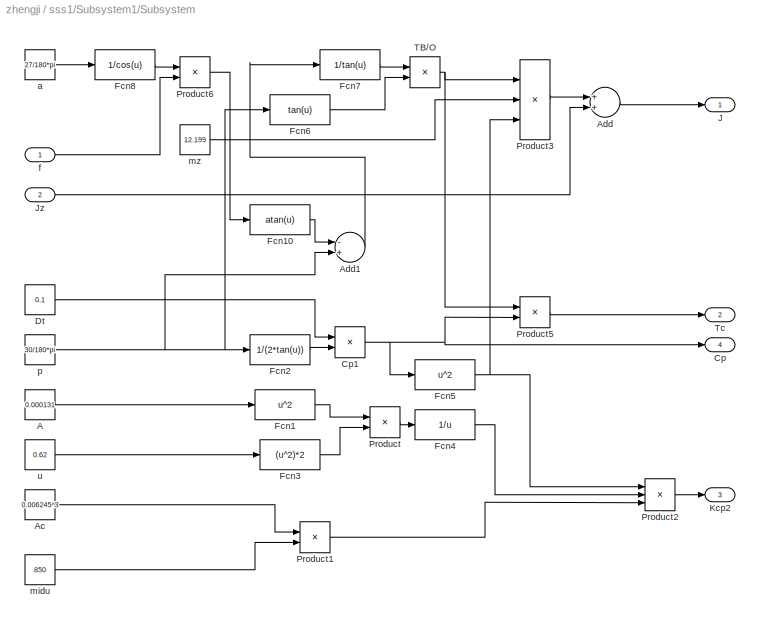
BLOCK [SubSystem] sss1/Subsystem1/Subsystem
  Ports = [2, 4]
  RequestExecContextInheritance = off
  SID = 800
BLOCK [Constant] sss1/Subsystem1/Subsystem/A
  SID = 803
  Value = 0.000131
BLOCK [Constant] sss1/Subsystem1/Subsystem/Ac
  SID = 804
  Value = 0.006245^3
BLOCK [Sum] sss1/Subsystem1/Subsystem/Add
  InputSameDT = off
  OutDataTypeStr = Inherit: Inherit via internal rule
  Ports = [2, 1]
  SID = 805
  SaturateOnIntegerOverflow = off
BLOCK [Sum] sss1/Subsystem1/Subsystem/Add1
  InputSameDT = off
  Inputs = -+
  OutDataTypeStr = Inherit: Inherit via internal rule
  Ports = [2, 1]
  SID = 806
  SaturateOnIntegerOverflow = off
BLOCK [Outport] sss1/Subsystem1/Subsystem/Cp
  IconDisplay = Port number
  Port = 4
  SID = 833
BLOCK [Product] sss1/Subsystem1/Subsystem/Cp1
  InputSameDT = off
  OutDataTypeStr = Inherit: Inherit via internal rule
  Ports = [2, 1]
  SID = 807
  SaturateOnIntegerOverflow = off
BLOCK [Constant] sss1/Subsystem1/Subsystem/Dt
  SID = 808
  Value = 0.1
BLOCK [Fcn] sss1/Subsystem1/Subsystem/Fcn1
  Expr = u^2
  SID = 809
BLOCK [Fcn] sss1/Subsystem1/Subsystem/Fcn10
  Expr = atan(u)
  SID = 810
BLOCK [Fcn] sss1/Subsystem1/Subsystem/Fcn2
  Expr = 1/(2*tan(u))
  SID = 811
BLOCK [Fcn] sss1/Subsystem1/Subsystem/Fcn3
  Expr = (u^2)*2
  SID = 812
BLOCK [Fcn] sss1/Subsystem1/Subsystem/Fcn4
  Expr = 1/u
  SID = 813
BLOCK [Fcn] sss1/Subsystem1/Subsystem/Fcn5
  Expr = u^2
  SID = 814
BLOCK [Fcn] sss1/Subsystem1/Subsystem/Fcn6
  Expr = tan(u)
  SID = 815
BLOCK [Fcn] sss1/Subsystem1/Subsystem/Fcn7
  Expr = 1/tan(u)
  SID = 816
BLOCK [Fcn] sss1/Subsystem1/Subsystem/Fcn8
  Expr = 1/cos(u)
  SID = 817
BLOCK [Outport] sss1/Subsystem1/Subsystem/J
  IconDisplay = Port number
  SID = 830
BLOCK [Inport] sss1/Subsystem1/Subsystem/Jz
  IconDisplay = Port number
  Port = 2
  SID = 802
BLOCK [Outport] sss1/Subsystem1/Subsystem/Kcp2
  IconDisplay = Port number
  Port = 3
  SID = 832
BLOCK [Product] sss1/Subsystem1/Subsystem/Product
  InputSameDT = off
  OutDataTypeStr = Inherit: Inherit via internal rule
  Ports = [2, 1]
  SID = 818
  SaturateOnIntegerOverflow = off
BLOCK [Product] sss1/Subsystem1/Subsystem/Product1
  InputSameDT = off
  OutDataTypeStr = Inherit: Inherit via internal rule
  Ports = [2, 1]
  SID = 819
  SaturateOnIntegerOverflow = off
BLOCK [Product] sss1/Subsystem1/Subsystem/Product2
  InputSameDT = off
  Inputs = 3
  OutDataTypeStr = Inherit: Inherit via internal rule
  Ports = [3, 1]
  SID = 820
  SaturateOnIntegerOverflow = off
BLOCK [Product] sss1/Subsystem1/Subsystem/Product3
  InputSameDT = off
  Inputs = 3
  OutDataTypeStr = Inherit: Inherit via internal rule
  Ports = [3, 1]
  SID = 821
  SaturateOnIntegerOverflow = off
BLOCK [Product] sss1/Subsystem1/Subsystem/Product5
  InputSameDT = off
  OutDataTypeStr = Inherit: Inherit via internal rule
  Ports = [2, 1]
  SID = 822
  SaturateOnIntegerOverflow = off
BLOCK [Product] sss1/Subsystem1/Subsystem/Product6
  InputSameDT = off
  OutDataTypeStr = Inherit: Inherit via internal rule
  Ports = [2, 1]
  SID = 823
  SaturateOnIntegerOverflow = off
BLOCK [Product] sss1/Subsystem1/Subsystem/TB//O
  InputSameDT = off
  OutDataTypeStr = Inherit: Inherit via internal rule
  Ports = [2, 1]
  SID = 824
  SaturateOnIntegerOverflow = off
BLOCK [Outport] sss1/Subsystem1/Subsystem/Tc
  IconDisplay = Port number
  Port = 2
  SID = 831
BLOCK [Constant] sss1/Subsystem1/Subsystem/a
  SID = 825
  Value = 27/180*pi
BLOCK [Inport] sss1/Subsystem1/Subsystem/f
  IconDisplay = Port number
  SID = 801
BLOCK [Constant] sss1/Subsystem1/Subsystem/midu
  SID = 826
  Value = 850
BLOCK [Constant] sss1/Subsystem1/Subsystem/mz
  SID = 827
  Value = 12.199
BLOCK [Constant] sss1/Subsystem1/Subsystem/p
  SID = 828
  Value = 30/180*pi
BLOCK [Constant] sss1/Subsystem1/Subsystem/u
  SID = 829
  Value = 0.62
BLOCK [Switch] sss1/Subsystem1/Switch
  InputSameDT = off
  SID = 834
  SaturateOnIntegerOverflow = off
BLOCK [Switch] sss1/Subsystem1/Switch1
  InputSameDT = off
  SID = 835
  SaturateOnIntegerOverflow = off
BLOCK [Switch] sss1/Subsystem1/Switch2
  InputSameDT = off
  SID = 836
  SaturateOnIntegerOverflow = off
BLOCK [Switch] sss1/Subsystem1/Switch3
  InputSameDT = off
  SID = 837
  SaturateOnIntegerOverflow = off
BLOCK [Inport] sss1/Subsystem1/Wz
  IconDisplay = Port number
  Port = 5
  SID = 783
BLOCK [Inport] sss1/Subsystem1/f
  IconDisplay = Port number
  Port = 4
  SID = 782
BLOCK [SubSystem] sss1/Subsystem2
  Ports = [4, 2]
  RequestExecContextInheritance = off
  SID = 841
BLOCK [Sum] sss1/Subsystem2/Add
  InputSameDT = off
  Inputs = +-
  OutDataTypeStr = Inherit: Inherit via internal rule
  Ports = [2, 1]
  SID = 846
  SaturateOnIntegerOverflow = off
BLOCK [Sum] sss1/Subsystem2/Add1
  InputSameDT = off
  OutDataTypeStr = Inherit: Inherit via internal rule
  Ports = [2, 1]
  SID = 847
  SaturateOnIntegerOverflow = off
BLOCK [Inport] sss1/Subsystem2/C2
  IconDisplay = Port number
  Port = 3
  SID = 844
BLOCK [Fcn] sss1/Subsystem2/Fcn
  Expr = 30*u/pi
  SID = 848
BLOCK [Integrator] sss1/Subsystem2/Integrator
  Ports = [1, 1]
  SID = 849
BLOCK [Inport] sss1/Subsystem2/J2
  IconDisplay = Port number
  Port = 2
  SID = 843
BLOCK [Outport] sss1/Subsystem2/M2
  IconDisplay = Port number
  SID = 851
BLOCK [Inport] sss1/Subsystem2/Mr
  IconDisplay = Port number
  SID = 842
BLOCK [Product] sss1/Subsystem2/Product
  InputSameDT = off
  OutDataTypeStr = Inherit: Inherit via internal rule
  Ports = [2, 1]
  SID = 850
  SaturateOnIntegerOverflow = off
BLOCK [Outport] sss1/Subsystem2/n2
  IconDisplay = Port number
  Port = 2
  SID = 852
BLOCK [Inport] sss1/Subsystem2/n2in
  IconDisplay = Port number
  Port = 4
  SID = 845
BLOCK [SubSystem] sss1/Subsystem3
  Ports = [3, 3]
  RequestExecContextInheritance = off
  SID = 853
BLOCK [Outport] sss1/Subsystem3/C1
  IconDisplay = Port number
  Port = 2
  SID = 862
BLOCK [Derivative] sss1/Subsystem3/Derivative
  SID = 857
BLOCK [Fcn] sss1/Subsystem3/Fcn2
  Expr = u*pi/30
  SID = 858
BLOCK [Inport] sss1/Subsystem3/J1
  IconDisplay = Port number
  Port = 3
  SID = 856
BLOCK [Inport] sss1/Subsystem3/M1
  IconDisplay = Port number
  SID = 854
BLOCK [Outport] sss1/Subsystem3/Mfzf
  IconDisplay = Port number
  SID = 861
BLOCK [Product] sss1/Subsystem3/Product
  InputSameDT = off
  OutDataTypeStr = Inherit: Inherit via internal rule
  Ports = [2, 1]
  SID = 859
  SaturateOnIntegerOverflow = off
BLOCK [Sum] sss1/Subsystem3/Sum
  IconShape = round
  InputSameDT = off
  Inputs = |+-
  OutDataTypeStr = Inherit: Inherit via internal rule
  Ports = [2, 1]
  SID = 860
  SaturateOnIntegerOverflow = off
BLOCK [Inport] sss1/Subsystem3/n1
  IconDisplay = Port number
  Port = 2
  SID = 855
BLOCK [Outport] sss1/Subsystem3/wf
  IconDisplay = Port number
  Port = 3
  SID = 863
BLOCK [Switch] sss1/Switch
  InputSameDT = off
  SID = 864
  SaturateOnIntegerOverflow = off
BLOCK [Inport] sss1/n1
  IconDisplay = Port number
  Port = 2
  SID = 765
BLOCK [Outport] sss1/n2
  IconDisplay = Port number
  Port = 3
  SID = 867
BLOCK [Inport] sss1/n2in
  IconDisplay = Port number
  Port = 3
  SID = 766
BLOCK [SubSystem] ssss
  Ports = [3, 3]
  RequestExecContextInheritance = off
  SID = 1311
BLOCK [Sum] ssss/Add
  InputSameDT = off
  Inputs = +-
  OutDataTypeStr = Inherit: Inherit via internal rule
  Ports = [2, 1]
  SID = 1315
  SaturateOnIntegerOverflow = off
BLOCK [Fcn] ssss/Fcn
  Expr = u*pi/30
  SID = 1316
BLOCK [Outport] ssss/Lr
  IconDisplay = Port number
  Port = 2
  SID = 1414
BLOCK [Inport] ssss/M1
  IconDisplay = Port number
  SID = 1312
BLOCK [Outport] ssss/M2
  IconDisplay = Port number
  SID = 1413
BLOCK [SubSystem] ssss/Subsystem
  Ports = [0, 4]
  RequestExecContextInheritance = off
  SID = 1317
BLOCK [Constant] ssss/Subsystem/J
  SID = 1318
  Value = 0.119507
BLOCK [Outport] ssss/Subsystem/J1
  IconDisplay = Port number
  SID = 1322
BLOCK [Outport] ssss/Subsystem/J2
  IconDisplay = Port number
  Port = 3
  SID = 1324
BLOCK [Constant] ssss/Subsystem/J2l
  SID = 1319
  Value = 0.092495
BLOCK [Constant] ssss/Subsystem/Jk
  SID = 1320
  Value = 0.0694875
BLOCK [Outport] ssss/Subsystem/Jz
  IconDisplay = Port number
  Port = 2
  SID = 1323
BLOCK [Outport] ssss/Subsystem/f
  IconDisplay = Port number
  Port = 4
  SID = 1325
BLOCK [Constant] ssss/Subsystem/f1
  SID = 1321
  Value = 0.6
BLOCK [SubSystem] ssss/Subsystem1
  Ports = [5, 3]
  RequestExecContextInheritance = off
  SID = 1326
BLOCK [Sum] ssss/Subsystem1/Add
  InputSameDT = off
  Inputs = +-
  OutDataTypeStr = Inherit: Inherit via internal rule
  Ports = [2, 1]
  SID = 1332
  SaturateOnIntegerOverflow = off
BLOCK [Sum] ssss/Subsystem1/Add1
  InputSameDT = off
  Inputs = +-
  OutDataTypeStr = Inherit: Inherit via internal rule
  Ports = [2, 1]
  SID = 1333
  SaturateOnIntegerOverflow = off
BLOCK [Sum] ssss/Subsystem1/Add2
  InputSameDT = off
  Inputs = +-
  OutDataTypeStr = Inherit: Inherit via internal rule
  Ports = [2, 1]
  SID = 1334
  SaturateOnIntegerOverflow = off
BLOCK [Sum] ssss/Subsystem1/Add3
  InputSameDT = off
  OutDataTypeStr = Inherit: Inherit via internal rule
  Ports = [2, 1]
  SID = 1335
  SaturateOnIntegerOverflow = off
BLOCK [Sum] ssss/Subsystem1/Add4
  InputSameDT = off
  Inputs = +-
  OutDataTypeStr = Inherit: Inherit via internal rule
  Ports = [2, 1]
  SID = 1336
  SaturateOnIntegerOverflow = off
BLOCK [Inport] ssss/Subsystem1/C1
  IconDisplay = Port number
  Port = 3
  SID = 1329
BLOCK [Outport] ssss/Subsystem1/C2
  IconDisplay = Port number
  Port = 3
  SID = 1388
BLOCK [Constant] ssss/Subsystem1/Constant
  SID = 1337
  Value = 0
BLOCK [Fcn] ssss/Subsystem1/Fcn
  Expr = 1/u
  SID = 1338
BLOCK [Fcn] ssss/Subsystem1/Fcn1
  Expr = 1+u
  SID = 1339
BLOCK [Fcn] ssss/Subsystem1/Fcn2
  Expr = u^2
  SID = 1340
BLOCK [Integrator] ssss/Subsystem1/Integrator
  Ports = [1, 1]
  SID = 1341
BLOCK [Inport] ssss/Subsystem1/Jz
  IconDisplay = Port number
  Port = 2
  SID = 1328
BLOCK [Outport] ssss/Subsystem1/Lr
  IconDisplay = Port number
  Port = 2
  SID = 1387
BLOCK [Inport] ssss/Subsystem1/Mfzf
  IconDisplay = Port number
  SID = 1327
BLOCK [Outport] ssss/Subsystem1/Mr
  IconDisplay = Port number
  SID = 1386
BLOCK [Product] ssss/Subsystem1/Product
  InputSameDT = off
  OutDataTypeStr = Inherit: Inherit via internal rule
  Ports = [2, 1]
  SID = 1342
  SaturateOnIntegerOverflow = off
BLOCK [Product] ssss/Subsystem1/Product1
  InputSameDT = off
  OutDataTypeStr = Inherit: Inherit via internal rule
  Ports = [2, 1]
  SID = 1343
  SaturateOnIntegerOverflow = off
BLOCK [Product] ssss/Subsystem1/Product2
  InputSameDT = off
  OutDataTypeStr = Inherit: Inherit via internal rule
  Ports = [2, 1]
  SID = 1344
  SaturateOnIntegerOverflow = off
BLOCK [Product] ssss/Subsystem1/Product3
  InputSameDT = off
  Inputs = 3
  OutDataTypeStr = Inherit: Inherit via internal rule
  Ports = [3, 1]
  SID = 1345
  SaturateOnIntegerOverflow = off
BLOCK [Product] ssss/Subsystem1/Product4
  InputSameDT = off
  OutDataTypeStr = Inherit: Inherit via internal rule
  Ports = [2, 1]
  SID = 1346
  SaturateOnIntegerOverflow = off
BLOCK [Product] ssss/Subsystem1/Product5
  InputSameDT = off
  OutDataTypeStr = Inherit: Inherit via internal rule
  Ports = [2, 1]
  SID = 1347
  SaturateOnIntegerOverflow = off
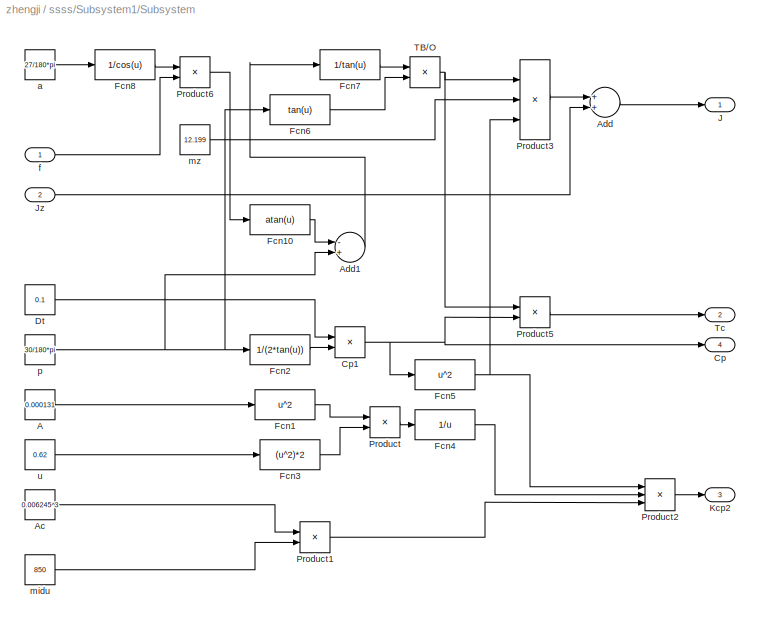
BLOCK [SubSystem] ssss/Subsystem1/Subsystem
  Ports = [2, 4]
  RequestExecContextInheritance = off
  SID = 1348
BLOCK [Constant] ssss/Subsystem1/Subsystem/A
  SID = 1351
  Value = 0.000131
BLOCK [Constant] ssss/Subsystem1/Subsystem/Ac
  SID = 1352
  Value = 0.006245^3
BLOCK [Sum] ssss/Subsystem1/Subsystem/Add
  InputSameDT = off
  OutDataTypeStr = Inherit: Inherit via internal rule
  Ports = [2, 1]
  SID = 1353
  SaturateOnIntegerOverflow = off
BLOCK [Sum] ssss/Subsystem1/Subsystem/Add1
  InputSameDT = off
  Inputs = -+
  OutDataTypeStr = Inherit: Inherit via internal rule
  Ports = [2, 1]
  SID = 1354
  SaturateOnIntegerOverflow = off
BLOCK [Outport] ssss/Subsystem1/Subsystem/Cp
  IconDisplay = Port number
  Port = 4
  SID = 1381
BLOCK [Product] ssss/Subsystem1/Subsystem/Cp1
  InputSameDT = off
  OutDataTypeStr = Inherit: Inherit via internal rule
  Ports = [2, 1]
  SID = 1355
  SaturateOnIntegerOverflow = off
BLOCK [Constant] ssss/Subsystem1/Subsystem/Dt
  SID = 1356
  Value = 0.1
BLOCK [Fcn] ssss/Subsystem1/Subsystem/Fcn1
  Expr = u^2
  SID = 1357
BLOCK [Fcn] ssss/Subsystem1/Subsystem/Fcn10
  Expr = atan(u)
  SID = 1358
BLOCK [Fcn] ssss/Subsystem1/Subsystem/Fcn2
  Expr = 1/(2*tan(u))
  SID = 1359
BLOCK [Fcn] ssss/Subsystem1/Subsystem/Fcn3
  Expr = (u^2)*2
  SID = 1360
BLOCK [Fcn] ssss/Subsystem1/Subsystem/Fcn4
  Expr = 1/u
  SID = 1361
BLOCK [Fcn] ssss/Subsystem1/Subsystem/Fcn5
  Expr = u^2
  SID = 1362
BLOCK [Fcn] ssss/Subsystem1/Subsystem/Fcn6
  Expr = tan(u)
  SID = 1363
BLOCK [Fcn] ssss/Subsystem1/Subsystem/Fcn7
  Expr = 1/tan(u)
  SID = 1364
BLOCK [Fcn] ssss/Subsystem1/Subsystem/Fcn8
  Expr = 1/cos(u)
  SID = 1365
BLOCK [Outport] ssss/Subsystem1/Subsystem/J
  IconDisplay = Port number
  SID = 1378
BLOCK [Inport] ssss/Subsystem1/Subsystem/Jz
  IconDisplay = Port number
  Port = 2
  SID = 1350
BLOCK [Outport] ssss/Subsystem1/Subsystem/Kcp2
  IconDisplay = Port number
  Port = 3
  SID = 1380
BLOCK [Product] ssss/Subsystem1/Subsystem/Product
  InputSameDT = off
  OutDataTypeStr = Inherit: Inherit via internal rule
  Ports = [2, 1]
  SID = 1366
  SaturateOnIntegerOverflow = off
BLOCK [Product] ssss/Subsystem1/Subsystem/Product1
  InputSameDT = off
  OutDataTypeStr = Inherit: Inherit via internal rule
  Ports = [2, 1]
  SID = 1367
  SaturateOnIntegerOverflow = off
BLOCK [Product] ssss/Subsystem1/Subsystem/Product2
  InputSameDT = off
  Inputs = 3
  OutDataTypeStr = Inherit: Inherit via internal rule
  Ports = [3, 1]
  SID = 1368
  SaturateOnIntegerOverflow = off
BLOCK [Product] ssss/Subsystem1/Subsystem/Product3
  InputSameDT = off
  Inputs = 3
  OutDataTypeStr = Inherit: Inherit via internal rule
  Ports = [3, 1]
  SID = 1369
  SaturateOnIntegerOverflow = off
BLOCK [Product] ssss/Subsystem1/Subsystem/Product5
  InputSameDT = off
  OutDataTypeStr = Inherit: Inherit via internal rule
  Ports = [2, 1]
  SID = 1370
  SaturateOnIntegerOverflow = off
BLOCK [Product] ssss/Subsystem1/Subsystem/Product6
  InputSameDT = off
  OutDataTypeStr = Inherit: Inherit via internal rule
  Ports = [2, 1]
  SID = 1371
  SaturateOnIntegerOverflow = off
BLOCK [Product] ssss/Subsystem1/Subsystem/TB//O
  InputSameDT = off
  OutDataTypeStr = Inherit: Inherit via internal rule
  Ports = [2, 1]
  SID = 1372
  SaturateOnIntegerOverflow = off
BLOCK [Outport] ssss/Subsystem1/Subsystem/Tc
  IconDisplay = Port number
  Port = 2
  SID = 1379
BLOCK [Constant] ssss/Subsystem1/Subsystem/a
  SID = 1373
  Value = 27/180*pi
BLOCK [Inport] ssss/Subsystem1/Subsystem/f
  IconDisplay = Port number
  SID = 1349
BLOCK [Constant] ssss/Subsystem1/Subsystem/midu
  SID = 1374
  Value = 850
BLOCK [Constant] ssss/Subsystem1/Subsystem/mz
  SID = 1375
  Value = 12.199
BLOCK [Constant] ssss/Subsystem1/Subsystem/p
  SID = 1376
  Value = 30/180*pi
BLOCK [Constant] ssss/Subsystem1/Subsystem/u
  SID = 1377
  Value = 0.62
BLOCK [Switch] ssss/Subsystem1/Switch
  InputSameDT = off
  SID = 1382
  SaturateOnIntegerOverflow = off
BLOCK [Switch] ssss/Subsystem1/Switch1
  InputSameDT = off
  SID = 1383
  SaturateOnIntegerOverflow = off
BLOCK [Switch] ssss/Subsystem1/Switch2
  InputSameDT = off
  SID = 1384
  SaturateOnIntegerOverflow = off
BLOCK [Switch] ssss/Subsystem1/Switch3
  InputSameDT = off
  SID = 1385
  SaturateOnIntegerOverflow = off
BLOCK [Inport] ssss/Subsystem1/Wz
  IconDisplay = Port number
  Port = 5
  SID = 1331
BLOCK [Inport] ssss/Subsystem1/f
  IconDisplay = Port number
  Port = 4
  SID = 1330
BLOCK [SubSystem] ssss/Subsystem2
  Ports = [4, 2]
  RequestExecContextInheritance = off
  SID = 1389
BLOCK [Sum] ssss/Subsystem2/Add
  InputSameDT = off
  Inputs = +-
  OutDataTypeStr = Inherit: Inherit via internal rule
  Ports = [2, 1]
  SID = 1394
  SaturateOnIntegerOverflow = off
BLOCK [Sum] ssss/Subsystem2/Add1
  InputSameDT = off
  OutDataTypeStr = Inherit: Inherit via internal rule
  Ports = [2, 1]
  SID = 1395
  SaturateOnIntegerOverflow = off
BLOCK [Inport] ssss/Subsystem2/C2
  IconDisplay = Port number
  Port = 3
  SID = 1392
BLOCK [Fcn] ssss/Subsystem2/Fcn
  Expr = 30*u/pi
  SID = 1396
BLOCK [Integrator] ssss/Subsystem2/Integrator
  Ports = [1, 1]
  SID = 1397
BLOCK [Inport] ssss/Subsystem2/J2
  IconDisplay = Port number
  Port = 2
  SID = 1391
BLOCK [Outport] ssss/Subsystem2/M2
  IconDisplay = Port number
  SID = 1399
BLOCK [Inport] ssss/Subsystem2/Mr
  IconDisplay = Port number
  SID = 1390
BLOCK [Product] ssss/Subsystem2/Product
  InputSameDT = off
  OutDataTypeStr = Inherit: Inherit via internal rule
  Ports = [2, 1]
  SID = 1398
  SaturateOnIntegerOverflow = off
BLOCK [Outport] ssss/Subsystem2/n2
  IconDisplay = Port number
  Port = 2
  SID = 1400
BLOCK [Inport] ssss/Subsystem2/n2in
  IconDisplay = Port number
  Port = 4
  SID = 1393
BLOCK [SubSystem] ssss/Subsystem3
  Ports = [3, 3]
  RequestExecContextInheritance = off
  SID = 1401
BLOCK [Outport] ssss/Subsystem3/C1
  IconDisplay = Port number
  Port = 2
  SID = 1410
BLOCK [Derivative] ssss/Subsystem3/Derivative
  SID = 1405
BLOCK [Fcn] ssss/Subsystem3/Fcn2
  Expr = u*pi/30
  SID = 1406
BLOCK [Inport] ssss/Subsystem3/J1
  IconDisplay = Port number
  Port = 3
  SID = 1404
BLOCK [Inport] ssss/Subsystem3/M1
  IconDisplay = Port number
  SID = 1402
BLOCK [Outport] ssss/Subsystem3/Mfzf
  IconDisplay = Port number
  SID = 1409
BLOCK [Product] ssss/Subsystem3/Product
  InputSameDT = off
  OutDataTypeStr = Inherit: Inherit via internal rule
  Ports = [2, 1]
  SID = 1407
  SaturateOnIntegerOverflow = off
BLOCK [Sum] ssss/Subsystem3/Sum
  IconShape = round
  InputSameDT = off
  Inputs = |+-
  OutDataTypeStr = Inherit: Inherit via internal rule
  Ports = [2, 1]
  SID = 1408
  SaturateOnIntegerOverflow = off
BLOCK [Inport] ssss/Subsystem3/n1
  IconDisplay = Port number
  Port = 2
  SID = 1403
BLOCK [Outport] ssss/Subsystem3/wf
  IconDisplay = Port number
  Port = 3
  SID = 1411
BLOCK [Switch] ssss/Switch
  InputSameDT = off
  SID = 1412
  SaturateOnIntegerOverflow = off
BLOCK [Inport] ssss/n1
  IconDisplay = Port number
  Port = 2
  SID = 1313
BLOCK [Outport] ssss/n2
  IconDisplay = Port number
  Port = 3
  SID = 1415
BLOCK [Inport] ssss/n2in
  IconDisplay = Port number
  Port = 3
  SID = 1314
ANNOTATION GT1/HC/compresser_TN/K: Cp
ANNOTATION GT1/HC/compresser_TN/K: Cv
ANNOTATION GT1/HT/turbine_TN/K: Cp
ANNOTATION GT1/HT/turbine_TN/K: Cv
ANNOTATION GT1/LC/compresser_TN/K: Cp
ANNOTATION GT1/LC/compresser_TN/K: Cv
ANNOTATION GT1/LT/turbine_TN/K: Cp
ANNOTATION GT1/LT/turbine_TN/K: Cv
ANNOTATION GT1/PT/turbine_TN/K1: Cp
ANNOTATION GT1/PT/turbine_TN/K1: Cv
ANNOTATION GT2/HC/compresser_TN/K: Cp
ANNOTATION GT2/HC/compresser_TN/K: Cv
ANNOTATION GT2/HT/turbine_TN/K: Cp
ANNOTATION GT2/HT/turbine_TN/K: Cv
ANNOTATION GT2/LC/compresser_TN/K: Cp
ANNOTATION GT2/LC/compresser_TN/K: Cv
ANNOTATION GT2/LT/turbine_TN/K: Cp
ANNOTATION GT2/LT/turbine_TN/K: Cv
ANNOTATION GT2/PT/turbine_TN/K1: Cp
ANNOTATION GT2/PT/turbine_TN/K1: Cv
LINE GT1/Divide:1 -> GT1/Gain:1
LINE GT1/Fire box/Add2:1 -> GT1/Fire box/Gain2:1
LINE GT1/Fire box/Add:1 -> GT1/Fire box/Divide1:2
LINE GT1/Fire box/Constant:1 -> GT1/Fire box/Add:2
LINE GT1/Fire box/Divide1:1 -> GT1/Fire box/Product:2
LINE GT1/Fire box/Divide:1 -> GT1/Fire box/Product:1
LINE GT1/Fire box/G3:1 -> GT1/Fire box/Subtract:2
LINE GT1/Fire box/Gain2:1 -> GT1/Fire box/Add:1
NET GT1/Fire box/Gf:1 -> GT1/Fire box/Divide:1, GT1/Fire box/Subtract:1
LINE GT1/Fire box/Hu:1 -> GT1/Fire box/etab:1
LINE GT1/Fire box/K1:1 -> GT1/Fire box/P4:1
LINE GT1/Fire box/K2:1 -> GT1/Fire box/G4:1
LINE GT1/Fire box/P3:1 -> GT1/Fire box/K1:1
LINE GT1/Fire box/Product:1 -> GT1/Fire box/Sum:1
NET GT1/Fire box/Subtract:1 -> GT1/Fire box/Divide:2, GT1/Fire box/K2:1
LINE GT1/Fire box/Sum:1 -> GT1/Fire box/T4:1
NET GT1/Fire box/T3:1 -> GT1/Fire box/Add2:2, GT1/Fire box/Sum:2
LINE GT1/Fire box/Tk:1 -> GT1/Fire box/Add2:1
LINE GT1/Fire box/etab:1 -> GT1/Fire box/Divide1:1
LINE GT1/Fire box:1 -> GT1/HT:1
LINE GT1/Fire box:2 -> GT1/HT:2
LINE GT1/Fire box:3 -> GT1/HT:3
LINE GT1/Gain:1 -> GT1/MPT:1
NET GT1/Gf:1 -> GT1/Fire box:1, GT1/Gf_G1:1
LINE GT1/Gf_G1:1 -> GT1/LC:1
NET GT1/HC/G2:1 -> GT1/HC/Gain:1, GT1/HC/Scope6:1, GT1/HC/Subsystem1:1, GT1/HC/compresser_TN:1
LINE GT1/HC/Gain:1 -> GT1/HC/G3:1
NET GT1/HC/P2:1 -> GT1/HC/Product:1, GT1/HC/Subsystem1:2
LINE GT1/HC/Product:1 -> GT1/HC/P3:1
LINE GT1/HC/Subsystem1/Divide1:1 -> GT1/HC/Subsystem1/Divide2:2
LINE GT1/HC/Subsystem1/Divide2:1 -> GT1/HC/Subsystem1/Product:2
LINE GT1/HC/Subsystem1/Divide:1 -> GT1/HC/Subsystem1/Fcn:1
LINE GT1/HC/Subsystem1/Fcn:1 -> GT1/HC/Subsystem1/Product:1
LINE GT1/HC/Subsystem1/Gin:1 -> GT1/HC/Subsystem1/Divide2:1
LINE GT1/HC/Subsystem1/P0:1 -> GT1/HC/Subsystem1/Divide1:2
LINE GT1/HC/Subsystem1/Pin:1 -> GT1/HC/Subsystem1/Divide1:1
LINE GT1/HC/Subsystem1/Product:1 -> GT1/HC/Subsystem1/Gz:1
LINE GT1/HC/Subsystem1/T0:1 -> GT1/HC/Subsystem1/Divide:2
LINE GT1/HC/Subsystem1/Tin:1 -> GT1/HC/Subsystem1/Divide:1
NET GT1/HC/Subsystem1:1 -> GT1/HC/Scope1:1, GT1/HC/Subsystem2:1
NET GT1/HC/Subsystem2/Gz:1 -> GT1/HC/Subsystem2/Lookup\nTable (2-D)1:2, GT1/HC/Subsystem2/Lookup\nTable (2-D):2
LINE GT1/HC/Subsystem2/Lookup\nTable (2-D)1:1 -> GT1/HC/Subsystem2/eta:1
LINE GT1/HC/Subsystem2/Lookup\nTable (2-D):1 -> GT1/HC/Subsystem2/pi:1
NET GT1/HC/Subsystem2/nz:1 -> GT1/HC/Subsystem2/Lookup\nTable (2-D)1:1, GT1/HC/Subsystem2/Lookup\nTable (2-D):1
NET GT1/HC/Subsystem2:1 -> GT1/HC/Product:2, GT1/HC/Scope5:1, GT1/HC/compresser_TN:2
NET GT1/HC/Subsystem2:2 -> GT1/HC/Scope3:1, GT1/HC/compresser_TN:3
NET GT1/HC/T2:1 -> GT1/HC/Subsystem1:3, GT1/HC/compresser_TN:4, GT1/HC/zhehe:2
LINE GT1/HC/compresser_TN/Add1:1 -> GT1/HC/compresser_TN/Product1:1
LINE GT1/HC/compresser_TN/Add:1 -> GT1/HC/compresser_TN/Divide:2
NET GT1/HC/compresser_TN/Constant:1 -> GT1/HC/compresser_TN/Add1:2, GT1/HC/compresser_TN/Add:2
NET GT1/HC/compresser_TN/Divide:1 -> GT1/HC/compresser_TN/Add1:1, GT1/HC/compresser_TN/Product:1
LINE GT1/HC/compresser_TN/Fcn:1 -> GT1/HC/compresser_TN/Add:1
LINE GT1/HC/compresser_TN/Gin:1 -> GT1/HC/compresser_TN/Product:3
LINE GT1/HC/compresser_TN/K/Add1:1 -> GT1/HC/compresser_TN/K/Divide1:2
NET GT1/HC/compresser_TN/K/Add2:1 -> GT1/HC/compresser_TN/K/Gain2:1, GT1/HC/compresser_TN/K/Gain3:1
NET GT1/HC/compresser_TN/K/Add:1 -> GT1/HC/compresser_TN/K/Cp:1, GT1/HC/compresser_TN/K/Divide1:1
LINE GT1/HC/compresser_TN/K/Constant1:1 -> GT1/HC/compresser_TN/K/Add1:2
LINE GT1/HC/compresser_TN/K/Constant:1 -> GT1/HC/compresser_TN/K/Add:2
NET GT1/HC/compresser_TN/K/Divide1:1 -> GT1/HC/compresser_TN/K/K:1, GT1/HC/compresser_TN/K/Scope3:1
LINE GT1/HC/compresser_TN/K/Gain2:1 -> GT1/HC/compresser_TN/K/Add:1
LINE GT1/HC/compresser_TN/K/Gain3:1 -> GT1/HC/compresser_TN/K/Add1:1
LINE GT1/HC/compresser_TN/K/T1:1 -> GT1/HC/compresser_TN/K/Add2:1
LINE GT1/HC/compresser_TN/K/Tk:1 -> GT1/HC/compresser_TN/K/Add2:2
LINE GT1/HC/compresser_TN/K1:1 -> GT1/HC/compresser_TN/m:1
LINE GT1/HC/compresser_TN/K:2 -> GT1/HC/compresser_TN/Product:2
LINE GT1/HC/compresser_TN/Mux:1 -> GT1/HC/compresser_TN/Fcn:1
LINE GT1/HC/compresser_TN/Pi:1 -> GT1/HC/compresser_TN/Mux:1
NET GT1/HC/compresser_TN/Product1:1 -> GT1/HC/compresser_TN/Scope3:1, GT1/HC/compresser_TN/Tout:1
LINE GT1/HC/compresser_TN/Product:1 -> GT1/HC/compresser_TN/Nout:1
NET GT1/HC/compresser_TN/Tin:1 -> GT1/HC/compresser_TN/K:1, GT1/HC/compresser_TN/Product1:2, GT1/HC/compresser_TN/Product:4
LINE GT1/HC/compresser_TN/eta:1 -> GT1/HC/compresser_TN/Divide:1
LINE GT1/HC/compresser_TN/m:1 -> GT1/HC/compresser_TN/Mux:2
NET GT1/HC/compresser_TN:1 -> GT1/HC/Scope2:1, GT1/HC/T3:1
LINE GT1/HC/compresser_TN:2 -> GT1/HC/NHC:1
LINE GT1/HC/nH:1 -> GT1/HC/zhehe:1
LINE GT1/HC/zhehe/Divide:1 -> GT1/HC/zhehe/nz:1
LINE GT1/HC/zhehe/Fcn:1 -> GT1/HC/zhehe/Divide:2
LINE GT1/HC/zhehe/Tin:1 -> GT1/HC/zhehe/Fcn:1
LINE GT1/HC/zhehe/n:1 -> GT1/HC/zhehe/Divide:1
NET GT1/HC/zhehe:1 -> GT1/HC/Scope4:1, GT1/HC/Subsystem2:2
LINE GT1/HC:1 -> GT1/Fire box:2
LINE GT1/HC:2 -> GT1/Fire box:3
NET GT1/HC:3 -> GT1/Fire box:4, GT1/Tout:1
LINE GT1/HC:4 -> GT1/shaft-H:1
NET GT1/HT/Divide:1 -> GT1/HT/pi:1, GT1/HT/turbine_TN:1
NET GT1/HT/G4:1 -> GT1/HT/G5:1, GT1/HT/turbine_TN:4
LINE GT1/HT/P4:1 -> GT1/HT/Divide:1
LINE GT1/HT/T4:1 -> GT1/HT/turbine_TN:3
LINE GT1/HT/n2-etaH:1 -> GT1/HT/turbine_TN:2
NET GT1/HT/n2-p5:1 -> GT1/HT/Divide:2, GT1/HT/P5:1, GT1/HT/Scope3:1
NET GT1/HT/nH:1 -> GT1/HT/n2-etaH:1, GT1/HT/n2-p5:1, GT1/HT/pi2:1
LINE GT1/HT/turbine_TN/Add1:1 -> GT1/HT/turbine_TN/Product1:1
LINE GT1/HT/turbine_TN/Add:1 -> GT1/HT/turbine_TN/Product2:2
NET GT1/HT/turbine_TN/Constant:1 -> GT1/HT/turbine_TN/Add1:2, GT1/HT/turbine_TN/Add:2
LINE GT1/HT/turbine_TN/Fcn:1 -> GT1/HT/turbine_TN/Add:1
LINE GT1/HT/turbine_TN/Gin:1 -> GT1/HT/turbine_TN/Product:3
LINE GT1/HT/turbine_TN/K/Add1:1 -> GT1/HT/turbine_TN/K/Divide1:2
NET GT1/HT/turbine_TN/K/Add2:1 -> GT1/HT/turbine_TN/K/Gain2:1, GT1/HT/turbine_TN/K/Gain3:1
NET GT1/HT/turbine_TN/K/Add:1 -> GT1/HT/turbine_TN/K/Cp:1, GT1/HT/turbine_TN/K/Divide1:1
LINE GT1/HT/turbine_TN/K/Constant1:1 -> GT1/HT/turbine_TN/K/Add1:2
LINE GT1/HT/turbine_TN/K/Constant:1 -> GT1/HT/turbine_TN/K/Add:2
LINE GT1/HT/turbine_TN/K/Divide1:1 -> GT1/HT/turbine_TN/K/K:1
LINE GT1/HT/turbine_TN/K/Gain2:1 -> GT1/HT/turbine_TN/K/Add:1
LINE GT1/HT/turbine_TN/K/Gain3:1 -> GT1/HT/turbine_TN/K/Add1:1
LINE GT1/HT/turbine_TN/K/T1:1 -> GT1/HT/turbine_TN/K/Add2:1
LINE GT1/HT/turbine_TN/K/Tk:1 -> GT1/HT/turbine_TN/K/Add2:2
LINE GT1/HT/turbine_TN/K1:1 -> GT1/HT/turbine_TN/m:1
LINE GT1/HT/turbine_TN/K:2 -> GT1/HT/turbine_TN/Product:2
LINE GT1/HT/turbine_TN/Mux:1 -> GT1/HT/turbine_TN/Fcn:1
LINE GT1/HT/turbine_TN/Pi:1 -> GT1/HT/turbine_TN/Mux:1
LINE GT1/HT/turbine_TN/Product1:1 -> GT1/HT/turbine_TN/Tout:1
NET GT1/HT/turbine_TN/Product2:1 -> GT1/HT/turbine_TN/Add1:1, GT1/HT/turbine_TN/Product:1
LINE GT1/HT/turbine_TN/Product:1 -> GT1/HT/turbine_TN/Nout:1
NET GT1/HT/turbine_TN/Tin:1 -> GT1/HT/turbine_TN/K:1, GT1/HT/turbine_TN/Product1:2, GT1/HT/turbine_TN/Product:4
LINE GT1/HT/turbine_TN/eta:1 -> GT1/HT/turbine_TN/Product2:1
LINE GT1/HT/turbine_TN/m:1 -> GT1/HT/turbine_TN/Mux:2
NET GT1/HT/turbine_TN:1 -> GT1/HT/T5:1, GT1/HT/pi1:1
LINE GT1/HT/turbine_TN:2 -> GT1/HT/NHT:1
LINE GT1/HT:1 -> GT1/LT:1
LINE GT1/HT:2 -> GT1/LT:2
LINE GT1/HT:3 -> GT1/LT:3
LINE GT1/HT:4 -> GT1/shaft-H:2
LINE GT1/K1:1 -> GT1/PT:1
LINE GT1/K:1 -> GT1/LC:2
NET GT1/LC/G1:1 -> GT1/LC/Gain:1, GT1/LC/Subsystem1:1, GT1/LC/compresser_TN:1
LINE GT1/LC/Gain:1 -> GT1/LC/G2:1
NET GT1/LC/P1:1 -> GT1/LC/Product:1, GT1/LC/Subsystem1:2
LINE GT1/LC/Product:1 -> GT1/LC/P2:1
LINE GT1/LC/Subsystem1/Divide1:1 -> GT1/LC/Subsystem1/Divide2:2
LINE GT1/LC/Subsystem1/Divide2:1 -> GT1/LC/Subsystem1/Product:2
LINE GT1/LC/Subsystem1/Divide:1 -> GT1/LC/Subsystem1/Fcn:1
LINE GT1/LC/Subsystem1/Fcn:1 -> GT1/LC/Subsystem1/Product:1
LINE GT1/LC/Subsystem1/Gin:1 -> GT1/LC/Subsystem1/Divide2:1
LINE GT1/LC/Subsystem1/P0:1 -> GT1/LC/Subsystem1/Divide1:2
LINE GT1/LC/Subsystem1/Pin:1 -> GT1/LC/Subsystem1/Divide1:1
LINE GT1/LC/Subsystem1/Product:1 -> GT1/LC/Subsystem1/Gz:1
LINE GT1/LC/Subsystem1/T0:1 -> GT1/LC/Subsystem1/Divide:2
LINE GT1/LC/Subsystem1/Tin:1 -> GT1/LC/Subsystem1/Divide:1
NET GT1/LC/Subsystem1:1 -> GT1/LC/Scope3:1, GT1/LC/Subsystem3:1
NET GT1/LC/Subsystem3/Gz:1 -> GT1/LC/Subsystem3/Lookup\nTable (2-D)1:2, GT1/LC/Subsystem3/Lookup\nTable (2-D):2
LINE GT1/LC/Subsystem3/Lookup\nTable (2-D)1:1 -> GT1/LC/Subsystem3/eta:1
LINE GT1/LC/Subsystem3/Lookup\nTable (2-D):1 -> GT1/LC/Subsystem3/pi:1
NET GT1/LC/Subsystem3/nz:1 -> GT1/LC/Subsystem3/Lookup\nTable (2-D)1:1, GT1/LC/Subsystem3/Lookup\nTable (2-D):1
NET GT1/LC/Subsystem3:1 -> GT1/LC/Product:2, GT1/LC/Scope2:1, GT1/LC/compresser_TN:2
LINE GT1/LC/Subsystem3:2 -> GT1/LC/compresser_TN:3
NET GT1/LC/T1:1 -> GT1/LC/Subsystem1:3, GT1/LC/compresser_TN:4, GT1/LC/zhehe:2
LINE GT1/LC/compresser_TN/Add1:1 -> GT1/LC/compresser_TN/Product1:1
LINE GT1/LC/compresser_TN/Add:1 -> GT1/LC/compresser_TN/Divide:2
NET GT1/LC/compresser_TN/Constant:1 -> GT1/LC/compresser_TN/Add1:2, GT1/LC/compresser_TN/Add:2
NET GT1/LC/compresser_TN/Divide:1 -> GT1/LC/compresser_TN/Add1:1, GT1/LC/compresser_TN/Product:1
LINE GT1/LC/compresser_TN/Fcn:1 -> GT1/LC/compresser_TN/Add:1
LINE GT1/LC/compresser_TN/Gin:1 -> GT1/LC/compresser_TN/Product:3
LINE GT1/LC/compresser_TN/K/Add1:1 -> GT1/LC/compresser_TN/K/Divide1:2
NET GT1/LC/compresser_TN/K/Add2:1 -> GT1/LC/compresser_TN/K/Gain2:1, GT1/LC/compresser_TN/K/Gain3:1
NET GT1/LC/compresser_TN/K/Add:1 -> GT1/LC/compresser_TN/K/Cp:1, GT1/LC/compresser_TN/K/Divide1:1
LINE GT1/LC/compresser_TN/K/Constant1:1 -> GT1/LC/compresser_TN/K/Add1:2
LINE GT1/LC/compresser_TN/K/Constant:1 -> GT1/LC/compresser_TN/K/Add:2
LINE GT1/LC/compresser_TN/K/Divide1:1 -> GT1/LC/compresser_TN/K/K:1
LINE GT1/LC/compresser_TN/K/Gain2:1 -> GT1/LC/compresser_TN/K/Add:1
LINE GT1/LC/compresser_TN/K/Gain3:1 -> GT1/LC/compresser_TN/K/Add1:1
LINE GT1/LC/compresser_TN/K/T1:1 -> GT1/LC/compresser_TN/K/Add2:1
LINE GT1/LC/compresser_TN/K/Tk:1 -> GT1/LC/compresser_TN/K/Add2:2
LINE GT1/LC/compresser_TN/K1:1 -> GT1/LC/compresser_TN/m:1
LINE GT1/LC/compresser_TN/K:2 -> GT1/LC/compresser_TN/Product:2
LINE GT1/LC/compresser_TN/Mux:1 -> GT1/LC/compresser_TN/Fcn:1
LINE GT1/LC/compresser_TN/Pi:1 -> GT1/LC/compresser_TN/Mux:1
LINE GT1/LC/compresser_TN/Product1:1 -> GT1/LC/compresser_TN/Tout:1
LINE GT1/LC/compresser_TN/Product:1 -> GT1/LC/compresser_TN/Nout:1
NET GT1/LC/compresser_TN/Tin:1 -> GT1/LC/compresser_TN/K:1, GT1/LC/compresser_TN/Product1:2, GT1/LC/compresser_TN/Product:4
LINE GT1/LC/compresser_TN/eta:1 -> GT1/LC/compresser_TN/Divide:1
LINE GT1/LC/compresser_TN/m:1 -> GT1/LC/compresser_TN/Mux:2
NET GT1/LC/compresser_TN:1 -> GT1/LC/Scope4:1, GT1/LC/T2:1
LINE GT1/LC/compresser_TN:2 -> GT1/LC/NLC:1
LINE GT1/LC/nL:1 -> GT1/LC/zhehe:1
LINE GT1/LC/zhehe/Divide:1 -> GT1/LC/zhehe/nz:1
LINE GT1/LC/zhehe/Fcn:1 -> GT1/LC/zhehe/Divide:2
LINE GT1/LC/zhehe/Tin:1 -> GT1/LC/zhehe/Fcn:1
LINE GT1/LC/zhehe/n:1 -> GT1/LC/zhehe/Divide:1
NET GT1/LC/zhehe:1 -> GT1/LC/Scope1:1, GT1/LC/Subsystem3:2
LINE GT1/LC:1 -> GT1/HC:1
LINE GT1/LC:2 -> GT1/HC:2
LINE GT1/LC:3 -> GT1/HC:3
LINE GT1/LC:4 -> GT1/shaft-L:1
NET GT1/LT/Divide:1 -> GT1/LT/Scope3:1, GT1/LT/turbine_TN:1
NET GT1/LT/G5:1 -> GT1/LT/G6:1, GT1/LT/turbine_TN:4
LINE GT1/LT/P5:1 -> GT1/LT/Divide:1
LINE GT1/LT/T5:1 -> GT1/LT/turbine_TN:3
NET GT1/LT/n1-p6:1 -> GT1/LT/Divide:2, GT1/LT/P6:1, GT1/LT/Scope1:1
LINE GT1/LT/n2-etaH:1 -> GT1/LT/turbine_TN:2
NET GT1/LT/nL:1 -> GT1/LT/n1-p6:1, GT1/LT/n2-etaH:1
LINE GT1/LT/turbine_TN/Add1:1 -> GT1/LT/turbine_TN/Product1:1
LINE GT1/LT/turbine_TN/Add:1 -> GT1/LT/turbine_TN/Product2:2
NET GT1/LT/turbine_TN/Constant:1 -> GT1/LT/turbine_TN/Add1:2, GT1/LT/turbine_TN/Add:2
LINE GT1/LT/turbine_TN/Fcn:1 -> GT1/LT/turbine_TN/Add:1
LINE GT1/LT/turbine_TN/Gin:1 -> GT1/LT/turbine_TN/Product:3
LINE GT1/LT/turbine_TN/K/Add1:1 -> GT1/LT/turbine_TN/K/Divide1:2
NET GT1/LT/turbine_TN/K/Add2:1 -> GT1/LT/turbine_TN/K/Gain2:1, GT1/LT/turbine_TN/K/Gain3:1
NET GT1/LT/turbine_TN/K/Add:1 -> GT1/LT/turbine_TN/K/Cp:1, GT1/LT/turbine_TN/K/Divide1:1
LINE GT1/LT/turbine_TN/K/Constant1:1 -> GT1/LT/turbine_TN/K/Add1:2
LINE GT1/LT/turbine_TN/K/Constant:1 -> GT1/LT/turbine_TN/K/Add:2
LINE GT1/LT/turbine_TN/K/Divide1:1 -> GT1/LT/turbine_TN/K/K:1
LINE GT1/LT/turbine_TN/K/Gain2:1 -> GT1/LT/turbine_TN/K/Add:1
LINE GT1/LT/turbine_TN/K/Gain3:1 -> GT1/LT/turbine_TN/K/Add1:1
LINE GT1/LT/turbine_TN/K/T1:1 -> GT1/LT/turbine_TN/K/Add2:1
LINE GT1/LT/turbine_TN/K/Tk:1 -> GT1/LT/turbine_TN/K/Add2:2
LINE GT1/LT/turbine_TN/K1:1 -> GT1/LT/turbine_TN/m:1
LINE GT1/LT/turbine_TN/K:2 -> GT1/LT/turbine_TN/Product:2
LINE GT1/LT/turbine_TN/Mux:1 -> GT1/LT/turbine_TN/Fcn:1
LINE GT1/LT/turbine_TN/Pi:1 -> GT1/LT/turbine_TN/Mux:1
LINE GT1/LT/turbine_TN/Product1:1 -> GT1/LT/turbine_TN/Tout:1
NET GT1/LT/turbine_TN/Product2:1 -> GT1/LT/turbine_TN/Add1:1, GT1/LT/turbine_TN/Product:1
LINE GT1/LT/turbine_TN/Product:1 -> GT1/LT/turbine_TN/Nout:1
NET GT1/LT/turbine_TN/Tin:1 -> GT1/LT/turbine_TN/K:1, GT1/LT/turbine_TN/Product1:2, GT1/LT/turbine_TN/Product:4
LINE GT1/LT/turbine_TN/eta:1 -> GT1/LT/turbine_TN/Product2:1
LINE GT1/LT/turbine_TN/m:1 -> GT1/LT/turbine_TN/Mux:2
NET GT1/LT/turbine_TN:1 -> GT1/LT/Scope2:1, GT1/LT/T6:1
LINE GT1/LT/turbine_TN:2 -> GT1/LT/NLT:1
LINE GT1/LT:1 -> GT1/PT:2
LINE GT1/LT:2 -> GT1/PT:3
LINE GT1/LT:3 -> GT1/PT:4
LINE GT1/LT:4 -> GT1/shaft-L:2
NET GT1/P0:1 -> GT1/K1:1, GT1/K:1
NET GT1/PT/Divide:1 -> GT1/PT/Pi-eta1:1, GT1/PT/Scope6:1, GT1/PT/turbine_TN:1
NET GT1/PT/G6:1 -> GT1/PT/G7:1, GT1/PT/turbine_TN:3
LINE GT1/PT/P6:1 -> GT1/PT/Divide:1
LINE GT1/PT/P7:1 -> GT1/PT/Divide:2
LINE GT1/PT/Pi-eta1:1 -> GT1/PT/turbine_TN:2
LINE GT1/PT/Pi-eta2:1 -> GT1/PT/nPT:1
LINE GT1/PT/T6:1 -> GT1/PT/turbine_TN:4
LINE GT1/PT/turbine_TN/Add1:1 -> GT1/PT/turbine_TN/Product1:1
LINE GT1/PT/turbine_TN/Add:1 -> GT1/PT/turbine_TN/Product2:2
NET GT1/PT/turbine_TN/Constant:1 -> GT1/PT/turbine_TN/Add1:2, GT1/PT/turbine_TN/Add:2
LINE GT1/PT/turbine_TN/Fcn:1 -> GT1/PT/turbine_TN/Add:1
LINE GT1/PT/turbine_TN/Gin:1 -> GT1/PT/turbine_TN/Product:3
LINE GT1/PT/turbine_TN/K1/Add1:1 -> GT1/PT/turbine_TN/K1/Divide1:2
NET GT1/PT/turbine_TN/K1/Add2:1 -> GT1/PT/turbine_TN/K1/Gain2:1, GT1/PT/turbine_TN/K1/Gain3:1
NET GT1/PT/turbine_TN/K1/Add:1 -> GT1/PT/turbine_TN/K1/Cp:1, GT1/PT/turbine_TN/K1/Divide1:1
LINE GT1/PT/turbine_TN/K1/Constant1:1 -> GT1/PT/turbine_TN/K1/Add1:2
LINE GT1/PT/turbine_TN/K1/Constant:1 -> GT1/PT/turbine_TN/K1/Add:2
LINE GT1/PT/turbine_TN/K1/Divide1:1 -> GT1/PT/turbine_TN/K1/K:1
LINE GT1/PT/turbine_TN/K1/Gain2:1 -> GT1/PT/turbine_TN/K1/Add:1
LINE GT1/PT/turbine_TN/K1/Gain3:1 -> GT1/PT/turbine_TN/K1/Add1:1
LINE GT1/PT/turbine_TN/K1/T1:1 -> GT1/PT/turbine_TN/K1/Add2:1
LINE GT1/PT/turbine_TN/K1/Tk:1 -> GT1/PT/turbine_TN/K1/Add2:2
LINE GT1/PT/turbine_TN/K1:1 -> GT1/PT/turbine_TN/m:1
LINE GT1/PT/turbine_TN/K1:2 -> GT1/PT/turbine_TN/Product:2
LINE GT1/PT/turbine_TN/Mux:1 -> GT1/PT/turbine_TN/Fcn:1
LINE GT1/PT/turbine_TN/Pi:1 -> GT1/PT/turbine_TN/Mux:1
LINE GT1/PT/turbine_TN/Product1:1 -> GT1/PT/turbine_TN/Tout:1
NET GT1/PT/turbine_TN/Product2:1 -> GT1/PT/turbine_TN/Add1:1, GT1/PT/turbine_TN/Product:1
LINE GT1/PT/turbine_TN/Product:1 -> GT1/PT/turbine_TN/Nout:1
NET GT1/PT/turbine_TN/Tin:1 -> GT1/PT/turbine_TN/K1:1, GT1/PT/turbine_TN/Product1:2, GT1/PT/turbine_TN/Product:4
LINE GT1/PT/turbine_TN/eta:1 -> GT1/PT/turbine_TN/Product2:1
LINE GT1/PT/turbine_TN/m:1 -> GT1/PT/turbine_TN/Mux:2
LINE GT1/PT/turbine_TN:1 -> GT1/PT/T7:1
NET GT1/PT/turbine_TN:2 -> GT1/PT/NPT:1, GT1/PT/Pi-eta2:1
LINE GT1/PT:1 -> GT1/Out1:1
LINE GT1/PT:2 -> GT1/Out2:1
NET GT1/PT:3 -> GT1/Divide:1, GT1/NPT:1
NET GT1/PT:4 -> GT1/Divide:2, GT1/nPT:1
LINE GT1/T1:1 -> GT1/LC:3
LINE GT1/W:1 -> GT1/Gf:1
LINE GT1/shaft-H/Add:1 -> GT1/shaft-H/Divide:1
LINE GT1/shaft-H/Divide:1 -> GT1/shaft-H/Integrator:1
LINE GT1/shaft-H/Fcn1:1 -> GT1/shaft-H/Divide:3
LINE GT1/shaft-H/Fcn:1 -> GT1/shaft-H/Gain:1
LINE GT1/shaft-H/Gain3:1 -> GT1/shaft-H/nH:1
LINE GT1/shaft-H/Gain:1 -> GT1/shaft-H/Divide:2
NET GT1/shaft-H/Integrator:1 -> GT1/shaft-H/Fcn1:1, GT1/shaft-H/Gain3:1
LINE GT1/shaft-H/J:1 -> GT1/shaft-H/Fcn:1
LINE GT1/shaft-H/NT:1 -> GT1/shaft-H/Add:2
LINE GT1/shaft-H/Nc:1 -> GT1/shaft-H/Add:1
NET GT1/shaft-H:1 -> GT1/Gout1:1, GT1/HC:4, GT1/HT:4
LINE GT1/shaft-L/Add:1 -> GT1/shaft-L/Divide:1
LINE GT1/shaft-L/Divide:1 -> GT1/shaft-L/Integrator:1
LINE GT1/shaft-L/Fcn1:1 -> GT1/shaft-L/Divide:3
LINE GT1/shaft-L/Fcn:1 -> GT1/shaft-L/Gain:1
LINE GT1/shaft-L/Gain2:1 -> GT1/shaft-L/nL:1
LINE GT1/shaft-L/Gain:1 -> GT1/shaft-L/Divide:2
NET GT1/shaft-L/Integrator:1 -> GT1/shaft-L/Fcn1:1, GT1/shaft-L/Gain2:1
LINE GT1/shaft-L/J:1 -> GT1/shaft-L/Fcn:1
LINE GT1/shaft-L/NT:1 -> GT1/shaft-L/Add:2
LINE GT1/shaft-L/Nc:1 -> GT1/shaft-L/Add:1
NET GT1/shaft-L:1 -> GT1/Gout2:1, GT1/LC:4, GT1/LT:4
LINE GT1:3 -> control:2
NET GT1:4 -> control:1, set1:2, sss1:3, ssss:2
NET GT1:5 -> Scope2:1, ssss:1
LINE GT2/Divide:1 -> GT2/Gain:1
LINE GT2/Fire box/Add2:1 -> GT2/Fire box/Gain2:1
LINE GT2/Fire box/Add:1 -> GT2/Fire box/Divide1:2
LINE GT2/Fire box/Constant:1 -> GT2/Fire box/Add:2
LINE GT2/Fire box/Divide1:1 -> GT2/Fire box/Product:2
LINE GT2/Fire box/Divide:1 -> GT2/Fire box/Product:1
LINE GT2/Fire box/G3:1 -> GT2/Fire box/Subtract:2
LINE GT2/Fire box/Gain2:1 -> GT2/Fire box/Add:1
NET GT2/Fire box/Gf:1 -> GT2/Fire box/Divide:1, GT2/Fire box/Subtract:1
LINE GT2/Fire box/Hu:1 -> GT2/Fire box/etab:1
LINE GT2/Fire box/K1:1 -> GT2/Fire box/P4:1
LINE GT2/Fire box/K2:1 -> GT2/Fire box/G4:1
LINE GT2/Fire box/P3:1 -> GT2/Fire box/K1:1
LINE GT2/Fire box/Product:1 -> GT2/Fire box/Sum:1
NET GT2/Fire box/Subtract:1 -> GT2/Fire box/Divide:2, GT2/Fire box/K2:1
LINE GT2/Fire box/Sum:1 -> GT2/Fire box/T4:1
NET GT2/Fire box/T3:1 -> GT2/Fire box/Add2:2, GT2/Fire box/Sum:2
LINE GT2/Fire box/Tk:1 -> GT2/Fire box/Add2:1
LINE GT2/Fire box/etab:1 -> GT2/Fire box/Divide1:1
LINE GT2/Fire box:1 -> GT2/HT:1
LINE GT2/Fire box:2 -> GT2/HT:2
LINE GT2/Fire box:3 -> GT2/HT:3
LINE GT2/Gain:1 -> GT2/MPT:1
NET GT2/Gf:1 -> GT2/Fire box:1, GT2/Gf_G1:1
LINE GT2/Gf_G1:1 -> GT2/LC:1
NET GT2/HC/G2:1 -> GT2/HC/Gain:1, GT2/HC/Scope6:1, GT2/HC/Subsystem1:1, GT2/HC/compresser_TN:1
LINE GT2/HC/Gain:1 -> GT2/HC/G3:1
NET GT2/HC/P2:1 -> GT2/HC/Product:1, GT2/HC/Subsystem1:2
LINE GT2/HC/Product:1 -> GT2/HC/P3:1
LINE GT2/HC/Subsystem1/Divide1:1 -> GT2/HC/Subsystem1/Divide2:2
LINE GT2/HC/Subsystem1/Divide2:1 -> GT2/HC/Subsystem1/Product:2
LINE GT2/HC/Subsystem1/Divide:1 -> GT2/HC/Subsystem1/Fcn:1
LINE GT2/HC/Subsystem1/Fcn:1 -> GT2/HC/Subsystem1/Product:1
LINE GT2/HC/Subsystem1/Gin:1 -> GT2/HC/Subsystem1/Divide2:1
LINE GT2/HC/Subsystem1/P0:1 -> GT2/HC/Subsystem1/Divide1:2
LINE GT2/HC/Subsystem1/Pin:1 -> GT2/HC/Subsystem1/Divide1:1
LINE GT2/HC/Subsystem1/Product:1 -> GT2/HC/Subsystem1/Gz:1
LINE GT2/HC/Subsystem1/T0:1 -> GT2/HC/Subsystem1/Divide:2
LINE GT2/HC/Subsystem1/Tin:1 -> GT2/HC/Subsystem1/Divide:1
NET GT2/HC/Subsystem1:1 -> GT2/HC/Scope1:1, GT2/HC/Subsystem2:1
NET GT2/HC/Subsystem2/Gz:1 -> GT2/HC/Subsystem2/Lookup\nTable (2-D)1:2, GT2/HC/Subsystem2/Lookup\nTable (2-D):2
LINE GT2/HC/Subsystem2/Lookup\nTable (2-D)1:1 -> GT2/HC/Subsystem2/eta:1
LINE GT2/HC/Subsystem2/Lookup\nTable (2-D):1 -> GT2/HC/Subsystem2/pi:1
NET GT2/HC/Subsystem2/nz:1 -> GT2/HC/Subsystem2/Lookup\nTable (2-D)1:1, GT2/HC/Subsystem2/Lookup\nTable (2-D):1
NET GT2/HC/Subsystem2:1 -> GT2/HC/Product:2, GT2/HC/Scope5:1, GT2/HC/compresser_TN:2
NET GT2/HC/Subsystem2:2 -> GT2/HC/Scope3:1, GT2/HC/compresser_TN:3
NET GT2/HC/T2:1 -> GT2/HC/Subsystem1:3, GT2/HC/compresser_TN:4, GT2/HC/zhehe:2
LINE GT2/HC/compresser_TN/Add1:1 -> GT2/HC/compresser_TN/Product1:1
LINE GT2/HC/compresser_TN/Add:1 -> GT2/HC/compresser_TN/Divide:2
NET GT2/HC/compresser_TN/Constant:1 -> GT2/HC/compresser_TN/Add1:2, GT2/HC/compresser_TN/Add:2
NET GT2/HC/compresser_TN/Divide:1 -> GT2/HC/compresser_TN/Add1:1, GT2/HC/compresser_TN/Product:1
LINE GT2/HC/compresser_TN/Fcn:1 -> GT2/HC/compresser_TN/Add:1
LINE GT2/HC/compresser_TN/Gin:1 -> GT2/HC/compresser_TN/Product:3
LINE GT2/HC/compresser_TN/K/Add1:1 -> GT2/HC/compresser_TN/K/Divide1:2
NET GT2/HC/compresser_TN/K/Add2:1 -> GT2/HC/compresser_TN/K/Gain2:1, GT2/HC/compresser_TN/K/Gain3:1
NET GT2/HC/compresser_TN/K/Add:1 -> GT2/HC/compresser_TN/K/Cp:1, GT2/HC/compresser_TN/K/Divide1:1
LINE GT2/HC/compresser_TN/K/Constant1:1 -> GT2/HC/compresser_TN/K/Add1:2
LINE GT2/HC/compresser_TN/K/Constant:1 -> GT2/HC/compresser_TN/K/Add:2
NET GT2/HC/compresser_TN/K/Divide1:1 -> GT2/HC/compresser_TN/K/K:1, GT2/HC/compresser_TN/K/Scope3:1
LINE GT2/HC/compresser_TN/K/Gain2:1 -> GT2/HC/compresser_TN/K/Add:1
LINE GT2/HC/compresser_TN/K/Gain3:1 -> GT2/HC/compresser_TN/K/Add1:1
LINE GT2/HC/compresser_TN/K/T1:1 -> GT2/HC/compresser_TN/K/Add2:1
LINE GT2/HC/compresser_TN/K/Tk:1 -> GT2/HC/compresser_TN/K/Add2:2
LINE GT2/HC/compresser_TN/K1:1 -> GT2/HC/compresser_TN/m:1
LINE GT2/HC/compresser_TN/K:2 -> GT2/HC/compresser_TN/Product:2
LINE GT2/HC/compresser_TN/Mux:1 -> GT2/HC/compresser_TN/Fcn:1
LINE GT2/HC/compresser_TN/Pi:1 -> GT2/HC/compresser_TN/Mux:1
NET GT2/HC/compresser_TN/Product1:1 -> GT2/HC/compresser_TN/Scope3:1, GT2/HC/compresser_TN/Tout:1
LINE GT2/HC/compresser_TN/Product:1 -> GT2/HC/compresser_TN/Nout:1
NET GT2/HC/compresser_TN/Tin:1 -> GT2/HC/compresser_TN/K:1, GT2/HC/compresser_TN/Product1:2, GT2/HC/compresser_TN/Product:4
LINE GT2/HC/compresser_TN/eta:1 -> GT2/HC/compresser_TN/Divide:1
LINE GT2/HC/compresser_TN/m:1 -> GT2/HC/compresser_TN/Mux:2
NET GT2/HC/compresser_TN:1 -> GT2/HC/Scope2:1, GT2/HC/T3:1
LINE GT2/HC/compresser_TN:2 -> GT2/HC/NHC:1
LINE GT2/HC/nH:1 -> GT2/HC/zhehe:1
LINE GT2/HC/zhehe/Divide:1 -> GT2/HC/zhehe/nz:1
LINE GT2/HC/zhehe/Fcn:1 -> GT2/HC/zhehe/Divide:2
LINE GT2/HC/zhehe/Tin:1 -> GT2/HC/zhehe/Fcn:1
LINE GT2/HC/zhehe/n:1 -> GT2/HC/zhehe/Divide:1
NET GT2/HC/zhehe:1 -> GT2/HC/Scope4:1, GT2/HC/Subsystem2:2
LINE GT2/HC:1 -> GT2/Fire box:2
LINE GT2/HC:2 -> GT2/Fire box:3
LINE GT2/HC:3 -> GT2/Fire box:4
LINE GT2/HC:4 -> GT2/shaft-H:1
NET GT2/HT/Divide:1 -> GT2/HT/pi:1, GT2/HT/turbine_TN:1
NET GT2/HT/G4:1 -> GT2/HT/G5:1, GT2/HT/turbine_TN:4
LINE GT2/HT/P4:1 -> GT2/HT/Divide:1
LINE GT2/HT/T4:1 -> GT2/HT/turbine_TN:3
LINE GT2/HT/n2-etaH:1 -> GT2/HT/turbine_TN:2
NET GT2/HT/n2-p5:1 -> GT2/HT/Divide:2, GT2/HT/P5:1, GT2/HT/Scope3:1
NET GT2/HT/nH:1 -> GT2/HT/n2-etaH:1, GT2/HT/n2-p5:1, GT2/HT/pi2:1
LINE GT2/HT/turbine_TN/Add1:1 -> GT2/HT/turbine_TN/Product1:1
LINE GT2/HT/turbine_TN/Add:1 -> GT2/HT/turbine_TN/Product2:2
NET GT2/HT/turbine_TN/Constant:1 -> GT2/HT/turbine_TN/Add1:2, GT2/HT/turbine_TN/Add:2
LINE GT2/HT/turbine_TN/Fcn:1 -> GT2/HT/turbine_TN/Add:1
LINE GT2/HT/turbine_TN/Gin:1 -> GT2/HT/turbine_TN/Product:3
LINE GT2/HT/turbine_TN/K/Add1:1 -> GT2/HT/turbine_TN/K/Divide1:2
NET GT2/HT/turbine_TN/K/Add2:1 -> GT2/HT/turbine_TN/K/Gain2:1, GT2/HT/turbine_TN/K/Gain3:1
NET GT2/HT/turbine_TN/K/Add:1 -> GT2/HT/turbine_TN/K/Cp:1, GT2/HT/turbine_TN/K/Divide1:1
LINE GT2/HT/turbine_TN/K/Constant1:1 -> GT2/HT/turbine_TN/K/Add1:2
LINE GT2/HT/turbine_TN/K/Constant:1 -> GT2/HT/turbine_TN/K/Add:2
LINE GT2/HT/turbine_TN/K/Divide1:1 -> GT2/HT/turbine_TN/K/K:1
LINE GT2/HT/turbine_TN/K/Gain2:1 -> GT2/HT/turbine_TN/K/Add:1
LINE GT2/HT/turbine_TN/K/Gain3:1 -> GT2/HT/turbine_TN/K/Add1:1
LINE GT2/HT/turbine_TN/K/T1:1 -> GT2/HT/turbine_TN/K/Add2:1
LINE GT2/HT/turbine_TN/K/Tk:1 -> GT2/HT/turbine_TN/K/Add2:2
LINE GT2/HT/turbine_TN/K1:1 -> GT2/HT/turbine_TN/m:1
LINE GT2/HT/turbine_TN/K:2 -> GT2/HT/turbine_TN/Product:2
LINE GT2/HT/turbine_TN/Mux:1 -> GT2/HT/turbine_TN/Fcn:1
LINE GT2/HT/turbine_TN/Pi:1 -> GT2/HT/turbine_TN/Mux:1
LINE GT2/HT/turbine_TN/Product1:1 -> GT2/HT/turbine_TN/Tout:1
NET GT2/HT/turbine_TN/Product2:1 -> GT2/HT/turbine_TN/Add1:1, GT2/HT/turbine_TN/Product:1
LINE GT2/HT/turbine_TN/Product:1 -> GT2/HT/turbine_TN/Nout:1
NET GT2/HT/turbine_TN/Tin:1 -> GT2/HT/turbine_TN/K:1, GT2/HT/turbine_TN/Product1:2, GT2/HT/turbine_TN/Product:4
LINE GT2/HT/turbine_TN/eta:1 -> GT2/HT/turbine_TN/Product2:1
LINE GT2/HT/turbine_TN/m:1 -> GT2/HT/turbine_TN/Mux:2
NET GT2/HT/turbine_TN:1 -> GT2/HT/T5:1, GT2/HT/pi1:1
LINE GT2/HT/turbine_TN:2 -> GT2/HT/NHT:1
LINE GT2/HT:1 -> GT2/LT:1
LINE GT2/HT:2 -> GT2/LT:2
LINE GT2/HT:3 -> GT2/LT:3
LINE GT2/HT:4 -> GT2/shaft-H:2
LINE GT2/K1:1 -> GT2/PT:1
LINE GT2/K:1 -> GT2/LC:2
NET GT2/LC/G1:1 -> GT2/LC/Gain:1, GT2/LC/Subsystem1:1, GT2/LC/compresser_TN:1
LINE GT2/LC/Gain:1 -> GT2/LC/G2:1
NET GT2/LC/P1:1 -> GT2/LC/Product:1, GT2/LC/Subsystem1:2
LINE GT2/LC/Product:1 -> GT2/LC/P2:1
LINE GT2/LC/Subsystem1/Divide1:1 -> GT2/LC/Subsystem1/Divide2:2
LINE GT2/LC/Subsystem1/Divide2:1 -> GT2/LC/Subsystem1/Product:2
LINE GT2/LC/Subsystem1/Divide:1 -> GT2/LC/Subsystem1/Fcn:1
LINE GT2/LC/Subsystem1/Fcn:1 -> GT2/LC/Subsystem1/Product:1
LINE GT2/LC/Subsystem1/Gin:1 -> GT2/LC/Subsystem1/Divide2:1
LINE GT2/LC/Subsystem1/P0:1 -> GT2/LC/Subsystem1/Divide1:2
LINE GT2/LC/Subsystem1/Pin:1 -> GT2/LC/Subsystem1/Divide1:1
LINE GT2/LC/Subsystem1/Product:1 -> GT2/LC/Subsystem1/Gz:1
LINE GT2/LC/Subsystem1/T0:1 -> GT2/LC/Subsystem1/Divide:2
LINE GT2/LC/Subsystem1/Tin:1 -> GT2/LC/Subsystem1/Divide:1
NET GT2/LC/Subsystem1:1 -> GT2/LC/Scope3:1, GT2/LC/Subsystem3:1
NET GT2/LC/Subsystem3/Gz:1 -> GT2/LC/Subsystem3/Lookup\nTable (2-D)1:2, GT2/LC/Subsystem3/Lookup\nTable (2-D):2
LINE GT2/LC/Subsystem3/Lookup\nTable (2-D)1:1 -> GT2/LC/Subsystem3/eta:1
LINE GT2/LC/Subsystem3/Lookup\nTable (2-D):1 -> GT2/LC/Subsystem3/pi:1
NET GT2/LC/Subsystem3/nz:1 -> GT2/LC/Subsystem3/Lookup\nTable (2-D)1:1, GT2/LC/Subsystem3/Lookup\nTable (2-D):1
NET GT2/LC/Subsystem3:1 -> GT2/LC/Product:2, GT2/LC/Scope2:1, GT2/LC/compresser_TN:2
LINE GT2/LC/Subsystem3:2 -> GT2/LC/compresser_TN:3
NET GT2/LC/T1:1 -> GT2/LC/Subsystem1:3, GT2/LC/compresser_TN:4, GT2/LC/zhehe:2
LINE GT2/LC/compresser_TN/Add1:1 -> GT2/LC/compresser_TN/Product1:1
LINE GT2/LC/compresser_TN/Add:1 -> GT2/LC/compresser_TN/Divide:2
NET GT2/LC/compresser_TN/Constant:1 -> GT2/LC/compresser_TN/Add1:2, GT2/LC/compresser_TN/Add:2
NET GT2/LC/compresser_TN/Divide:1 -> GT2/LC/compresser_TN/Add1:1, GT2/LC/compresser_TN/Product:1
LINE GT2/LC/compresser_TN/Fcn:1 -> GT2/LC/compresser_TN/Add:1
LINE GT2/LC/compresser_TN/Gin:1 -> GT2/LC/compresser_TN/Product:3
LINE GT2/LC/compresser_TN/K/Add1:1 -> GT2/LC/compresser_TN/K/Divide1:2
NET GT2/LC/compresser_TN/K/Add2:1 -> GT2/LC/compresser_TN/K/Gain2:1, GT2/LC/compresser_TN/K/Gain3:1
NET GT2/LC/compresser_TN/K/Add:1 -> GT2/LC/compresser_TN/K/Cp:1, GT2/LC/compresser_TN/K/Divide1:1
LINE GT2/LC/compresser_TN/K/Constant1:1 -> GT2/LC/compresser_TN/K/Add1:2
LINE GT2/LC/compresser_TN/K/Constant:1 -> GT2/LC/compresser_TN/K/Add:2
LINE GT2/LC/compresser_TN/K/Divide1:1 -> GT2/LC/compresser_TN/K/K:1
LINE GT2/LC/compresser_TN/K/Gain2:1 -> GT2/LC/compresser_TN/K/Add:1
LINE GT2/LC/compresser_TN/K/Gain3:1 -> GT2/LC/compresser_TN/K/Add1:1
LINE GT2/LC/compresser_TN/K/T1:1 -> GT2/LC/compresser_TN/K/Add2:1
LINE GT2/LC/compresser_TN/K/Tk:1 -> GT2/LC/compresser_TN/K/Add2:2
LINE GT2/LC/compresser_TN/K1:1 -> GT2/LC/compresser_TN/m:1
LINE GT2/LC/compresser_TN/K:2 -> GT2/LC/compresser_TN/Product:2
LINE GT2/LC/compresser_TN/Mux:1 -> GT2/LC/compresser_TN/Fcn:1
LINE GT2/LC/compresser_TN/Pi:1 -> GT2/LC/compresser_TN/Mux:1
LINE GT2/LC/compresser_TN/Product1:1 -> GT2/LC/compresser_TN/Tout:1
LINE GT2/LC/compresser_TN/Product:1 -> GT2/LC/compresser_TN/Nout:1
NET GT2/LC/compresser_TN/Tin:1 -> GT2/LC/compresser_TN/K:1, GT2/LC/compresser_TN/Product1:2, GT2/LC/compresser_TN/Product:4
LINE GT2/LC/compresser_TN/eta:1 -> GT2/LC/compresser_TN/Divide:1
LINE GT2/LC/compresser_TN/m:1 -> GT2/LC/compresser_TN/Mux:2
NET GT2/LC/compresser_TN:1 -> GT2/LC/Scope4:1, GT2/LC/T2:1
LINE GT2/LC/compresser_TN:2 -> GT2/LC/NLC:1
LINE GT2/LC/nL:1 -> GT2/LC/zhehe:1
LINE GT2/LC/zhehe/Divide:1 -> GT2/LC/zhehe/nz:1
LINE GT2/LC/zhehe/Fcn:1 -> GT2/LC/zhehe/Divide:2
LINE GT2/LC/zhehe/Tin:1 -> GT2/LC/zhehe/Fcn:1
LINE GT2/LC/zhehe/n:1 -> GT2/LC/zhehe/Divide:1
NET GT2/LC/zhehe:1 -> GT2/LC/Scope1:1, GT2/LC/Subsystem3:2
LINE GT2/LC:1 -> GT2/HC:1
LINE GT2/LC:2 -> GT2/HC:2
LINE GT2/LC:3 -> GT2/HC:3
LINE GT2/LC:4 -> GT2/shaft-L:1
NET GT2/LT/Divide:1 -> GT2/LT/Scope3:1, GT2/LT/turbine_TN:1
NET GT2/LT/G5:1 -> GT2/LT/G6:1, GT2/LT/turbine_TN:4
LINE GT2/LT/P5:1 -> GT2/LT/Divide:1
LINE GT2/LT/T5:1 -> GT2/LT/turbine_TN:3
NET GT2/LT/n1-p6:1 -> GT2/LT/Divide:2, GT2/LT/P6:1, GT2/LT/Scope1:1
LINE GT2/LT/n2-etaH:1 -> GT2/LT/turbine_TN:2
NET GT2/LT/nL:1 -> GT2/LT/n1-p6:1, GT2/LT/n2-etaH:1
LINE GT2/LT/turbine_TN/Add1:1 -> GT2/LT/turbine_TN/Product1:1
LINE GT2/LT/turbine_TN/Add:1 -> GT2/LT/turbine_TN/Product2:2
NET GT2/LT/turbine_TN/Constant:1 -> GT2/LT/turbine_TN/Add1:2, GT2/LT/turbine_TN/Add:2
LINE GT2/LT/turbine_TN/Fcn:1 -> GT2/LT/turbine_TN/Add:1
LINE GT2/LT/turbine_TN/Gin:1 -> GT2/LT/turbine_TN/Product:3
LINE GT2/LT/turbine_TN/K/Add1:1 -> GT2/LT/turbine_TN/K/Divide1:2
NET GT2/LT/turbine_TN/K/Add2:1 -> GT2/LT/turbine_TN/K/Gain2:1, GT2/LT/turbine_TN/K/Gain3:1
NET GT2/LT/turbine_TN/K/Add:1 -> GT2/LT/turbine_TN/K/Cp:1, GT2/LT/turbine_TN/K/Divide1:1
LINE GT2/LT/turbine_TN/K/Constant1:1 -> GT2/LT/turbine_TN/K/Add1:2
LINE GT2/LT/turbine_TN/K/Constant:1 -> GT2/LT/turbine_TN/K/Add:2
LINE GT2/LT/turbine_TN/K/Divide1:1 -> GT2/LT/turbine_TN/K/K:1
LINE GT2/LT/turbine_TN/K/Gain2:1 -> GT2/LT/turbine_TN/K/Add:1
LINE GT2/LT/turbine_TN/K/Gain3:1 -> GT2/LT/turbine_TN/K/Add1:1
LINE GT2/LT/turbine_TN/K/T1:1 -> GT2/LT/turbine_TN/K/Add2:1
LINE GT2/LT/turbine_TN/K/Tk:1 -> GT2/LT/turbine_TN/K/Add2:2
LINE GT2/LT/turbine_TN/K1:1 -> GT2/LT/turbine_TN/m:1
LINE GT2/LT/turbine_TN/K:2 -> GT2/LT/turbine_TN/Product:2
LINE GT2/LT/turbine_TN/Mux:1 -> GT2/LT/turbine_TN/Fcn:1
LINE GT2/LT/turbine_TN/Pi:1 -> GT2/LT/turbine_TN/Mux:1
LINE GT2/LT/turbine_TN/Product1:1 -> GT2/LT/turbine_TN/Tout:1
NET GT2/LT/turbine_TN/Product2:1 -> GT2/LT/turbine_TN/Add1:1, GT2/LT/turbine_TN/Product:1
LINE GT2/LT/turbine_TN/Product:1 -> GT2/LT/turbine_TN/Nout:1
NET GT2/LT/turbine_TN/Tin:1 -> GT2/LT/turbine_TN/K:1, GT2/LT/turbine_TN/Product1:2, GT2/LT/turbine_TN/Product:4
LINE GT2/LT/turbine_TN/eta:1 -> GT2/LT/turbine_TN/Product2:1
LINE GT2/LT/turbine_TN/m:1 -> GT2/LT/turbine_TN/Mux:2
NET GT2/LT/turbine_TN:1 -> GT2/LT/Scope2:1, GT2/LT/T6:1
LINE GT2/LT/turbine_TN:2 -> GT2/LT/NLT:1
LINE GT2/LT:1 -> GT2/PT:2
LINE GT2/LT:2 -> GT2/PT:3
LINE GT2/LT:3 -> GT2/PT:4
LINE GT2/LT:4 -> GT2/shaft-L:2
NET GT2/P0:1 -> GT2/K1:1, GT2/K:1
NET GT2/PT/Divide:1 -> GT2/PT/Pi-eta1:1, GT2/PT/Scope6:1, GT2/PT/turbine_TN:1
NET GT2/PT/G6:1 -> GT2/PT/G7:1, GT2/PT/turbine_TN:3
LINE GT2/PT/P6:1 -> GT2/PT/Divide:1
LINE GT2/PT/P7:1 -> GT2/PT/Divide:2
LINE GT2/PT/Pi-eta1:1 -> GT2/PT/turbine_TN:2
LINE GT2/PT/Pi-eta2:1 -> GT2/PT/nPT:1
LINE GT2/PT/T6:1 -> GT2/PT/turbine_TN:4
LINE GT2/PT/turbine_TN/Add1:1 -> GT2/PT/turbine_TN/Product1:1
LINE GT2/PT/turbine_TN/Add:1 -> GT2/PT/turbine_TN/Product2:2
NET GT2/PT/turbine_TN/Constant:1 -> GT2/PT/turbine_TN/Add1:2, GT2/PT/turbine_TN/Add:2
LINE GT2/PT/turbine_TN/Fcn:1 -> GT2/PT/turbine_TN/Add:1
LINE GT2/PT/turbine_TN/Gin:1 -> GT2/PT/turbine_TN/Product:3
LINE GT2/PT/turbine_TN/K1/Add1:1 -> GT2/PT/turbine_TN/K1/Divide1:2
NET GT2/PT/turbine_TN/K1/Add2:1 -> GT2/PT/turbine_TN/K1/Gain2:1, GT2/PT/turbine_TN/K1/Gain3:1
NET GT2/PT/turbine_TN/K1/Add:1 -> GT2/PT/turbine_TN/K1/Cp:1, GT2/PT/turbine_TN/K1/Divide1:1
LINE GT2/PT/turbine_TN/K1/Constant1:1 -> GT2/PT/turbine_TN/K1/Add1:2
LINE GT2/PT/turbine_TN/K1/Constant:1 -> GT2/PT/turbine_TN/K1/Add:2
LINE GT2/PT/turbine_TN/K1/Divide1:1 -> GT2/PT/turbine_TN/K1/K:1
LINE GT2/PT/turbine_TN/K1/Gain2:1 -> GT2/PT/turbine_TN/K1/Add:1
LINE GT2/PT/turbine_TN/K1/Gain3:1 -> GT2/PT/turbine_TN/K1/Add1:1
LINE GT2/PT/turbine_TN/K1/T1:1 -> GT2/PT/turbine_TN/K1/Add2:1
LINE GT2/PT/turbine_TN/K1/Tk:1 -> GT2/PT/turbine_TN/K1/Add2:2
LINE GT2/PT/turbine_TN/K1:1 -> GT2/PT/turbine_TN/m:1
LINE GT2/PT/turbine_TN/K1:2 -> GT2/PT/turbine_TN/Product:2
LINE GT2/PT/turbine_TN/Mux:1 -> GT2/PT/turbine_TN/Fcn:1
LINE GT2/PT/turbine_TN/Pi:1 -> GT2/PT/turbine_TN/Mux:1
LINE GT2/PT/turbine_TN/Product1:1 -> GT2/PT/turbine_TN/Tout:1
NET GT2/PT/turbine_TN/Product2:1 -> GT2/PT/turbine_TN/Add1:1, GT2/PT/turbine_TN/Product:1
LINE GT2/PT/turbine_TN/Product:1 -> GT2/PT/turbine_TN/Nout:1
NET GT2/PT/turbine_TN/Tin:1 -> GT2/PT/turbine_TN/K1:1, GT2/PT/turbine_TN/Product1:2, GT2/PT/turbine_TN/Product:4
LINE GT2/PT/turbine_TN/eta:1 -> GT2/PT/turbine_TN/Product2:1
LINE GT2/PT/turbine_TN/m:1 -> GT2/PT/turbine_TN/Mux:2
LINE GT2/PT/turbine_TN:1 -> GT2/PT/T7:1
NET GT2/PT/turbine_TN:2 -> GT2/PT/NPT:1, GT2/PT/Pi-eta2:1
LINE GT2/PT:1 -> GT2/Out1:1
LINE GT2/PT:2 -> GT2/Out2:1
NET GT2/PT:3 -> GT2/Divide:1, GT2/NPT:1
NET GT2/PT:4 -> GT2/Divide:2, GT2/nPT:1
LINE GT2/T1:1 -> GT2/LC:3
LINE GT2/W:1 -> GT2/Gf:1
LINE GT2/shaft-H/Add:1 -> GT2/shaft-H/Divide:1
LINE GT2/shaft-H/Divide:1 -> GT2/shaft-H/Integrator:1
LINE GT2/shaft-H/Fcn1:1 -> GT2/shaft-H/Divide:3
LINE GT2/shaft-H/Fcn:1 -> GT2/shaft-H/Gain:1
LINE GT2/shaft-H/Gain3:1 -> GT2/shaft-H/nH:1
LINE GT2/shaft-H/Gain:1 -> GT2/shaft-H/Divide:2
NET GT2/shaft-H/Integrator:1 -> GT2/shaft-H/Fcn1:1, GT2/shaft-H/Gain3:1
LINE GT2/shaft-H/J:1 -> GT2/shaft-H/Fcn:1
LINE GT2/shaft-H/NT:1 -> GT2/shaft-H/Add:2
LINE GT2/shaft-H/Nc:1 -> GT2/shaft-H/Add:1
NET GT2/shaft-H:1 -> GT2/Gout1:1, GT2/HC:4, GT2/HT:4
LINE GT2/shaft-L/Add:1 -> GT2/shaft-L/Divide:1
LINE GT2/shaft-L/Divide:1 -> GT2/shaft-L/Integrator:1
LINE GT2/shaft-L/Fcn1:1 -> GT2/shaft-L/Divide:3
LINE GT2/shaft-L/Fcn:1 -> GT2/shaft-L/Gain:1
LINE GT2/shaft-L/Gain2:1 -> GT2/shaft-L/nL:1
LINE GT2/shaft-L/Gain:1 -> GT2/shaft-L/Divide:2
NET GT2/shaft-L/Integrator:1 -> GT2/shaft-L/Fcn1:1, GT2/shaft-L/Gain2:1
LINE GT2/shaft-L/J:1 -> GT2/shaft-L/Fcn:1
LINE GT2/shaft-L/NT:1 -> GT2/shaft-L/Add:2
LINE GT2/shaft-L/Nc:1 -> GT2/shaft-L/Add:1
NET GT2/shaft-L:1 -> GT2/LC:4, GT2/LT:4
LINE GT2:3 -> control:3
NET GT2:4 -> control:4, set2:2, sss1:2, ssss:3
NET GT2:5 -> Scope3:1, sss1:1
LINE bingchechilun/Add:1 -> bingchechilun/Product2:1
LINE bingchechilun/Fcn:1 -> bingchechilun/Product2:2
NET bingchechilun/Gain:1 -> bingchechilun/Fcn:1, bingchechilun/n:1
LINE bingchechilun/M1:1 -> bingchechilun/Product:1
LINE bingchechilun/M2:1 -> bingchechilun/Product1:1
LINE bingchechilun/Product1:1 -> bingchechilun/Add:2
LINE bingchechilun/Product2:1 -> bingchechilun/M:1
LINE bingchechilun/Product:1 -> bingchechilun/Add:1
NET bingchechilun/n1:1 -> bingchechilun/Gain:1, bingchechilun/Product:2
LINE bingchechilun/n2:1 -> bingchechilun/Product1:2
LINE bingchechilun:1 -> Gout2:1
LINE bingchechilun:2 -> Gout1:1
NET control/1#Ne:1 -> control/Add:1, control/Mux:6
NET control/1#spd:1 -> control/Add1:1, control/Mux:2, control/Unit Delay:1
NET control/2#Ne:1 -> control/Add:2, control/Mux1:6
NET control/2#spd1:1 -> control/Add2:2, control/Mux1:4, control/Unit Delay3:1
NET control/Add1:1 -> control/1#spdset:1, control/Mux:5, control/Unit Delay1:1
NET control/Add2:1 -> control/2#spdset:1, control/Mux1:1, control/Unit Delay2:1
NET control/Add:1 -> control/Gain1:1, control/Gain:1
LINE control/Constant:1 -> control/Neset:1
LINE control/Fcn1:1 -> control/Add2:1
LINE control/Fcn:1 -> control/Add1:2
LINE control/Gain1:1 -> control/Mux1:3
LINE control/Gain:1 -> control/Mux:3
LINE control/Mux1:1 -> control/Fcn1:1
LINE control/Mux:1 -> control/Fcn:1
LINE control/Unit Delay1:1 -> control/Mux:4
LINE control/Unit Delay2:1 -> control/Mux1:2
LINE control/Unit Delay3:1 -> control/Mux1:5
LINE control/Unit Delay:1 -> control/Mux:1
LINE control:1 -> set1:1
LINE control:2 -> set2:1
NET control:3 -> GT1:2, GT2:2
LINE set1/Add:1 -> set1/PID Controller:1
LINE set1/In1:1 -> set1/Add:1
LINE set1/In2:1 -> set1/Add:2
LINE set1/PID Controller:1 -> set1/Transfer Fcn:1
LINE set1/Transfer Fcn:1 -> set1/W:1
LINE set1:1 -> GT1:1
LINE set2/Add:1 -> set2/PID Controller:1
LINE set2/In1:1 -> set2/Add:1
LINE set2/In2:1 -> set2/Add:2
LINE set2/PID Controller:1 -> set2/Transfer Fcn:1
LINE set2/Transfer Fcn:1 -> set2/W:1
LINE set2:1 -> GT2:1
LINE sss1/Add:1 -> sss1/Subsystem1:5
LINE sss1/Fcn:1 -> sss1/Add:2
LINE sss1/M1:1 -> sss1/Subsystem3:1
LINE sss1/Subsystem/J2l:1 -> sss1/Subsystem/J2:1
LINE sss1/Subsystem/J:1 -> sss1/Subsystem/J1:1
LINE sss1/Subsystem/Jk:1 -> sss1/Subsystem/Jz:1
LINE sss1/Subsystem/f1:1 -> sss1/Subsystem/f:1
LINE sss1/Subsystem1/Add1:1 -> sss1/Subsystem1/Add3:1
LINE sss1/Subsystem1/Add2:1 -> sss1/Subsystem1/Product5:2
NET sss1/Subsystem1/Add3:1 -> sss1/Subsystem1/Product1:1, sss1/Subsystem1/Switch1:3
NET sss1/Subsystem1/Add4:1 -> sss1/Subsystem1/Add2:2, sss1/Subsystem1/Switch2:3
LINE sss1/Subsystem1/Add:1 -> sss1/Subsystem1/Product2:2
NET sss1/Subsystem1/C1:1 -> sss1/Subsystem1/Add:1, sss1/Subsystem1/Product:2, sss1/Subsystem1/Switch3:1
LINE sss1/Subsystem1/Constant:1 -> sss1/Subsystem1/Switch:3
LINE sss1/Subsystem1/Fcn1:1 -> sss1/Subsystem1/Product1:2
LINE sss1/Subsystem1/Fcn2:1 -> sss1/Subsystem1/Product3:3
LINE sss1/Subsystem1/Fcn:1 -> sss1/Subsystem1/Product5:1
NET sss1/Subsystem1/Integrator:1 -> sss1/Subsystem1/Lr:1, sss1/Subsystem1/Switch1:2, sss1/Subsystem1/Switch2:2, sss1/Subsystem1/Switch3:2, sss1/Subsystem1/Switch:2
NET sss1/Subsystem1/Jz:1 -> sss1/Subsystem1/Fcn:1, sss1/Subsystem1/Product:1, sss1/Subsystem1/Subsystem:2
NET sss1/Subsystem1/Mfzf:1 -> sss1/Subsystem1/Add2:1, sss1/Subsystem1/Add4:1, sss1/Subsystem1/Switch2:1
LINE sss1/Subsystem1/Product1:1 -> sss1/Subsystem1/Switch1:1
LINE sss1/Subsystem1/Product2:1 -> sss1/Subsystem1/Add1:1
LINE sss1/Subsystem1/Product3:1 -> sss1/Subsystem1/Switch:1
LINE sss1/Subsystem1/Product4:1 -> sss1/Subsystem1/Integrator:1
LINE sss1/Subsystem1/Product5:1 -> sss1/Subsystem1/Switch3:3
LINE sss1/Subsystem1/Product:1 -> sss1/Subsystem1/Add1:2
LINE sss1/Subsystem1/Subsystem/A:1 -> sss1/Subsystem1/Subsystem/Fcn1:1
LINE sss1/Subsystem1/Subsystem/Ac:1 -> sss1/Subsystem1/Subsystem/Product1:1
LINE sss1/Subsystem1/Subsystem/Add1:1 -> sss1/Subsystem1/Subsystem/Fcn7:1
LINE sss1/Subsystem1/Subsystem/Add:1 -> sss1/Subsystem1/Subsystem/J:1
NET sss1/Subsystem1/Subsystem/Cp1:1 -> sss1/Subsystem1/Subsystem/Cp:1, sss1/Subsystem1/Subsystem/Fcn5:1, sss1/Subsystem1/Subsystem/Product5:2
LINE sss1/Subsystem1/Subsystem/Dt:1 -> sss1/Subsystem1/Subsystem/Cp1:1
LINE sss1/Subsystem1/Subsystem/Fcn10:1 -> sss1/Subsystem1/Subsystem/Add1:1
LINE sss1/Subsystem1/Subsystem/Fcn1:1 -> sss1/Subsystem1/Subsystem/Product:1
LINE sss1/Subsystem1/Subsystem/Fcn2:1 -> sss1/Subsystem1/Subsystem/Cp1:2
LINE sss1/Subsystem1/Subsystem/Fcn3:1 -> sss1/Subsystem1/Subsystem/Product:2
LINE sss1/Subsystem1/Subsystem/Fcn4:1 -> sss1/Subsystem1/Subsystem/Product2:2
NET sss1/Subsystem1/Subsystem/Fcn5:1 -> sss1/Subsystem1/Subsystem/Product2:1, sss1/Subsystem1/Subsystem/Product3:3
LINE sss1/Subsystem1/Subsystem/Fcn6:1 -> sss1/Subsystem1/Subsystem/TB//O:2
LINE sss1/Subsystem1/Subsystem/Fcn7:1 -> sss1/Subsystem1/Subsystem/TB//O:1
LINE sss1/Subsystem1/Subsystem/Fcn8:1 -> sss1/Subsystem1/Subsystem/Product6:1
LINE sss1/Subsystem1/Subsystem/Jz:1 -> sss1/Subsystem1/Subsystem/Add:2
LINE sss1/Subsystem1/Subsystem/Product1:1 -> sss1/Subsystem1/Subsystem/Product2:3
LINE sss1/Subsystem1/Subsystem/Product2:1 -> sss1/Subsystem1/Subsystem/Kcp2:1
LINE sss1/Subsystem1/Subsystem/Product3:1 -> sss1/Subsystem1/Subsystem/Add:1
LINE sss1/Subsystem1/Subsystem/Product5:1 -> sss1/Subsystem1/Subsystem/Tc:1
LINE sss1/Subsystem1/Subsystem/Product6:1 -> sss1/Subsystem1/Subsystem/Fcn10:1
LINE sss1/Subsystem1/Subsystem/Product:1 -> sss1/Subsystem1/Subsystem/Fcn4:1
NET sss1/Subsystem1/Subsystem/TB//O:1 -> sss1/Subsystem1/Subsystem/Product3:1, sss1/Subsystem1/Subsystem/Product5:1
LINE sss1/Subsystem1/Subsystem/a:1 -> sss1/Subsystem1/Subsystem/Fcn8:1
LINE sss1/Subsystem1/Subsystem/f:1 -> sss1/Subsystem1/Subsystem/Product6:2
LINE sss1/Subsystem1/Subsystem/midu:1 -> sss1/Subsystem1/Subsystem/Product1:2
LINE sss1/Subsystem1/Subsystem/mz:1 -> sss1/Subsystem1/Subsystem/Product3:2
NET sss1/Subsystem1/Subsystem/p:1 -> sss1/Subsystem1/Subsystem/Add1:2, sss1/Subsystem1/Subsystem/Fcn2:1, sss1/Subsystem1/Subsystem/Fcn6:1
LINE sss1/Subsystem1/Subsystem/u:1 -> sss1/Subsystem1/Subsystem/Fcn3:1
LINE sss1/Subsystem1/Subsystem:1 -> sss1/Subsystem1/Product2:1
LINE sss1/Subsystem1/Subsystem:2 -> sss1/Subsystem1/Product3:1
LINE sss1/Subsystem1/Subsystem:3 -> sss1/Subsystem1/Product3:2
LINE sss1/Subsystem1/Subsystem:4 -> sss1/Subsystem1/Product4:1
LINE sss1/Subsystem1/Switch1:1 -> sss1/Subsystem1/Add4:2
LINE sss1/Subsystem1/Switch2:1 -> sss1/Subsystem1/Mr:1
NET sss1/Subsystem1/Switch3:1 -> sss1/Subsystem1/Add:2, sss1/Subsystem1/C2:1
LINE sss1/Subsystem1/Switch:1 -> sss1/Subsystem1/Add3:2
NET sss1/Subsystem1/Wz:1 -> sss1/Subsystem1/Fcn2:1, sss1/Subsystem1/Product4:2
NET sss1/Subsystem1/f:1 -> sss1/Subsystem1/Fcn1:1, sss1/Subsystem1/Subsystem:1
LINE sss1/Subsystem1:1 -> sss1/Subsystem2:1
NET sss1/Subsystem1:2 -> sss1/Lr:1, sss1/Switch:2
LINE sss1/Subsystem1:3 -> sss1/Subsystem2:3
LINE sss1/Subsystem2/Add1:1 -> sss1/Subsystem2/n2:1
LINE sss1/Subsystem2/Add:1 -> sss1/Subsystem2/M2:1
NET sss1/Subsystem2/C2:1 -> sss1/Subsystem2/Fcn:1, sss1/Subsystem2/Product:2
LINE sss1/Subsystem2/Fcn:1 -> sss1/Subsystem2/Integrator:1
LINE sss1/Subsystem2/Integrator:1 -> sss1/Subsystem2/Add1:1
LINE sss1/Subsystem2/J2:1 -> sss1/Subsystem2/Product:1
LINE sss1/Subsystem2/Mr:1 -> sss1/Subsystem2/Add:1
LINE sss1/Subsystem2/Product:1 -> sss1/Subsystem2/Add:2
LINE sss1/Subsystem2/n2in:1 -> sss1/Subsystem2/Add1:2
LINE sss1/Subsystem2:1 -> sss1/M2:1
NET sss1/Subsystem2:2 -> sss1/Fcn:1, sss1/Switch:3
NET sss1/Subsystem3/Derivative:1 -> sss1/Subsystem3/C1:1, sss1/Subsystem3/Product:1
NET sss1/Subsystem3/Fcn2:1 -> sss1/Subsystem3/Derivative:1, sss1/Subsystem3/wf:1
LINE sss1/Subsystem3/J1:1 -> sss1/Subsystem3/Product:2
LINE sss1/Subsystem3/M1:1 -> sss1/Subsystem3/Sum:1
LINE sss1/Subsystem3/Product:1 -> sss1/Subsystem3/Sum:2
LINE sss1/Subsystem3/Sum:1 -> sss1/Subsystem3/Mfzf:1
LINE sss1/Subsystem3/n1:1 -> sss1/Subsystem3/Fcn2:1
LINE sss1/Subsystem3:1 -> sss1/Subsystem1:1
LINE sss1/Subsystem3:2 -> sss1/Subsystem1:3
LINE sss1/Subsystem3:3 -> sss1/Add:1
LINE sss1/Subsystem:1 -> sss1/Subsystem3:3
LINE sss1/Subsystem:2 -> sss1/Subsystem1:2
LINE sss1/Subsystem:3 -> sss1/Subsystem2:2
LINE sss1/Subsystem:4 -> sss1/Subsystem1:4
LINE sss1/Switch:1 -> sss1/n2:1
NET sss1/n1:1 -> sss1/Subsystem3:2, sss1/Switch:1
LINE sss1/n2in:1 -> sss1/Subsystem2:4
LINE sss1:1 -> bingchechilun:3
LINE sss1:2 -> Scope1:1
LINE sss1:3 -> bingchechilun:4
LINE ssss/Add:1 -> ssss/Subsystem1:5
LINE ssss/Fcn:1 -> ssss/Add:2
LINE ssss/M1:1 -> ssss/Subsystem3:1
LINE ssss/Subsystem/J2l:1 -> ssss/Subsystem/J2:1
LINE ssss/Subsystem/J:1 -> ssss/Subsystem/J1:1
LINE ssss/Subsystem/Jk:1 -> ssss/Subsystem/Jz:1
LINE ssss/Subsystem/f1:1 -> ssss/Subsystem/f:1
LINE ssss/Subsystem1/Add1:1 -> ssss/Subsystem1/Add3:1
LINE ssss/Subsystem1/Add2:1 -> ssss/Subsystem1/Product5:2
NET ssss/Subsystem1/Add3:1 -> ssss/Subsystem1/Product1:1, ssss/Subsystem1/Switch1:3
NET ssss/Subsystem1/Add4:1 -> ssss/Subsystem1/Add2:2, ssss/Subsystem1/Switch2:3
LINE ssss/Subsystem1/Add:1 -> ssss/Subsystem1/Product2:2
NET ssss/Subsystem1/C1:1 -> ssss/Subsystem1/Add:1, ssss/Subsystem1/Product:2, ssss/Subsystem1/Switch3:1
LINE ssss/Subsystem1/Constant:1 -> ssss/Subsystem1/Switch:3
LINE ssss/Subsystem1/Fcn1:1 -> ssss/Subsystem1/Product1:2
LINE ssss/Subsystem1/Fcn2:1 -> ssss/Subsystem1/Product3:3
LINE ssss/Subsystem1/Fcn:1 -> ssss/Subsystem1/Product5:1
NET ssss/Subsystem1/Integrator:1 -> ssss/Subsystem1/Lr:1, ssss/Subsystem1/Switch1:2, ssss/Subsystem1/Switch2:2, ssss/Subsystem1/Switch3:2, ssss/Subsystem1/Switch:2
NET ssss/Subsystem1/Jz:1 -> ssss/Subsystem1/Fcn:1, ssss/Subsystem1/Product:1, ssss/Subsystem1/Subsystem:2
NET ssss/Subsystem1/Mfzf:1 -> ssss/Subsystem1/Add2:1, ssss/Subsystem1/Add4:1, ssss/Subsystem1/Switch2:1
LINE ssss/Subsystem1/Product1:1 -> ssss/Subsystem1/Switch1:1
LINE ssss/Subsystem1/Product2:1 -> ssss/Subsystem1/Add1:1
LINE ssss/Subsystem1/Product3:1 -> ssss/Subsystem1/Switch:1
LINE ssss/Subsystem1/Product4:1 -> ssss/Subsystem1/Integrator:1
LINE ssss/Subsystem1/Product5:1 -> ssss/Subsystem1/Switch3:3
LINE ssss/Subsystem1/Product:1 -> ssss/Subsystem1/Add1:2
LINE ssss/Subsystem1/Subsystem/A:1 -> ssss/Subsystem1/Subsystem/Fcn1:1
LINE ssss/Subsystem1/Subsystem/Ac:1 -> ssss/Subsystem1/Subsystem/Product1:1
LINE ssss/Subsystem1/Subsystem/Add1:1 -> ssss/Subsystem1/Subsystem/Fcn7:1
LINE ssss/Subsystem1/Subsystem/Add:1 -> ssss/Subsystem1/Subsystem/J:1
NET ssss/Subsystem1/Subsystem/Cp1:1 -> ssss/Subsystem1/Subsystem/Cp:1, ssss/Subsystem1/Subsystem/Fcn5:1, ssss/Subsystem1/Subsystem/Product5:2
LINE ssss/Subsystem1/Subsystem/Dt:1 -> ssss/Subsystem1/Subsystem/Cp1:1
LINE ssss/Subsystem1/Subsystem/Fcn10:1 -> ssss/Subsystem1/Subsystem/Add1:1
LINE ssss/Subsystem1/Subsystem/Fcn1:1 -> ssss/Subsystem1/Subsystem/Product:1
LINE ssss/Subsystem1/Subsystem/Fcn2:1 -> ssss/Subsystem1/Subsystem/Cp1:2
LINE ssss/Subsystem1/Subsystem/Fcn3:1 -> ssss/Subsystem1/Subsystem/Product:2
LINE ssss/Subsystem1/Subsystem/Fcn4:1 -> ssss/Subsystem1/Subsystem/Product2:2
NET ssss/Subsystem1/Subsystem/Fcn5:1 -> ssss/Subsystem1/Subsystem/Product2:1, ssss/Subsystem1/Subsystem/Product3:3
LINE ssss/Subsystem1/Subsystem/Fcn6:1 -> ssss/Subsystem1/Subsystem/TB//O:2
LINE ssss/Subsystem1/Subsystem/Fcn7:1 -> ssss/Subsystem1/Subsystem/TB//O:1
LINE ssss/Subsystem1/Subsystem/Fcn8:1 -> ssss/Subsystem1/Subsystem/Product6:1
LINE ssss/Subsystem1/Subsystem/Jz:1 -> ssss/Subsystem1/Subsystem/Add:2
LINE ssss/Subsystem1/Subsystem/Product1:1 -> ssss/Subsystem1/Subsystem/Product2:3
LINE ssss/Subsystem1/Subsystem/Product2:1 -> ssss/Subsystem1/Subsystem/Kcp2:1
LINE ssss/Subsystem1/Subsystem/Product3:1 -> ssss/Subsystem1/Subsystem/Add:1
LINE ssss/Subsystem1/Subsystem/Product5:1 -> ssss/Subsystem1/Subsystem/Tc:1
LINE ssss/Subsystem1/Subsystem/Product6:1 -> ssss/Subsystem1/Subsystem/Fcn10:1
LINE ssss/Subsystem1/Subsystem/Product:1 -> ssss/Subsystem1/Subsystem/Fcn4:1
NET ssss/Subsystem1/Subsystem/TB//O:1 -> ssss/Subsystem1/Subsystem/Product3:1, ssss/Subsystem1/Subsystem/Product5:1
LINE ssss/Subsystem1/Subsystem/a:1 -> ssss/Subsystem1/Subsystem/Fcn8:1
LINE ssss/Subsystem1/Subsystem/f:1 -> ssss/Subsystem1/Subsystem/Product6:2
LINE ssss/Subsystem1/Subsystem/midu:1 -> ssss/Subsystem1/Subsystem/Product1:2
LINE ssss/Subsystem1/Subsystem/mz:1 -> ssss/Subsystem1/Subsystem/Product3:2
NET ssss/Subsystem1/Subsystem/p:1 -> ssss/Subsystem1/Subsystem/Add1:2, ssss/Subsystem1/Subsystem/Fcn2:1, ssss/Subsystem1/Subsystem/Fcn6:1
LINE ssss/Subsystem1/Subsystem/u:1 -> ssss/Subsystem1/Subsystem/Fcn3:1
LINE ssss/Subsystem1/Subsystem:1 -> ssss/Subsystem1/Product2:1
LINE ssss/Subsystem1/Subsystem:2 -> ssss/Subsystem1/Product3:1
LINE ssss/Subsystem1/Subsystem:3 -> ssss/Subsystem1/Product3:2
LINE ssss/Subsystem1/Subsystem:4 -> ssss/Subsystem1/Product4:1
LINE ssss/Subsystem1/Switch1:1 -> ssss/Subsystem1/Add4:2
LINE ssss/Subsystem1/Switch2:1 -> ssss/Subsystem1/Mr:1
NET ssss/Subsystem1/Switch3:1 -> ssss/Subsystem1/Add:2, ssss/Subsystem1/C2:1
LINE ssss/Subsystem1/Switch:1 -> ssss/Subsystem1/Add3:2
NET ssss/Subsystem1/Wz:1 -> ssss/Subsystem1/Fcn2:1, ssss/Subsystem1/Product4:2
NET ssss/Subsystem1/f:1 -> ssss/Subsystem1/Fcn1:1, ssss/Subsystem1/Subsystem:1
LINE ssss/Subsystem1:1 -> ssss/Subsystem2:1
NET ssss/Subsystem1:2 -> ssss/Lr:1, ssss/Switch:2
LINE ssss/Subsystem1:3 -> ssss/Subsystem2:3
LINE ssss/Subsystem2/Add1:1 -> ssss/Subsystem2/n2:1
LINE ssss/Subsystem2/Add:1 -> ssss/Subsystem2/M2:1
NET ssss/Subsystem2/C2:1 -> ssss/Subsystem2/Fcn:1, ssss/Subsystem2/Product:2
LINE ssss/Subsystem2/Fcn:1 -> ssss/Subsystem2/Integrator:1
LINE ssss/Subsystem2/Integrator:1 -> ssss/Subsystem2/Add1:1
LINE ssss/Subsystem2/J2:1 -> ssss/Subsystem2/Product:1
LINE ssss/Subsystem2/Mr:1 -> ssss/Subsystem2/Add:1
LINE ssss/Subsystem2/Product:1 -> ssss/Subsystem2/Add:2
LINE ssss/Subsystem2/n2in:1 -> ssss/Subsystem2/Add1:2
LINE ssss/Subsystem2:1 -> ssss/M2:1
NET ssss/Subsystem2:2 -> ssss/Fcn:1, ssss/Switch:3
NET ssss/Subsystem3/Derivative:1 -> ssss/Subsystem3/C1:1, ssss/Subsystem3/Product:1
NET ssss/Subsystem3/Fcn2:1 -> ssss/Subsystem3/Derivative:1, ssss/Subsystem3/wf:1
LINE ssss/Subsystem3/J1:1 -> ssss/Subsystem3/Product:2
LINE ssss/Subsystem3/M1:1 -> ssss/Subsystem3/Sum:1
LINE ssss/Subsystem3/Product:1 -> ssss/Subsystem3/Sum:2
LINE ssss/Subsystem3/Sum:1 -> ssss/Subsystem3/Mfzf:1
LINE ssss/Subsystem3/n1:1 -> ssss/Subsystem3/Fcn2:1
LINE ssss/Subsystem3:1 -> ssss/Subsystem1:1
LINE ssss/Subsystem3:2 -> ssss/Subsystem1:3
LINE ssss/Subsystem3:3 -> ssss/Add:1
LINE ssss/Subsystem:1 -> ssss/Subsystem3:3
LINE ssss/Subsystem:2 -> ssss/Subsystem1:2
LINE ssss/Subsystem:3 -> ssss/Subsystem2:2
LINE ssss/Subsystem:4 -> ssss/Subsystem1:4
LINE ssss/Switch:1 -> ssss/n2:1
NET ssss/n1:1 -> ssss/Subsystem3:2, ssss/Switch:1
LINE ssss/n2in:1 -> ssss/Subsystem2:4
LINE ssss:1 -> bingchechilun:1
LINE ssss:2 -> Scope:1
LINE ssss:3 -> bingchechilun:2
note: NET lines group one-source signal fan-out (src -> all destinations, sorted); 1:1 wires keep LINE
